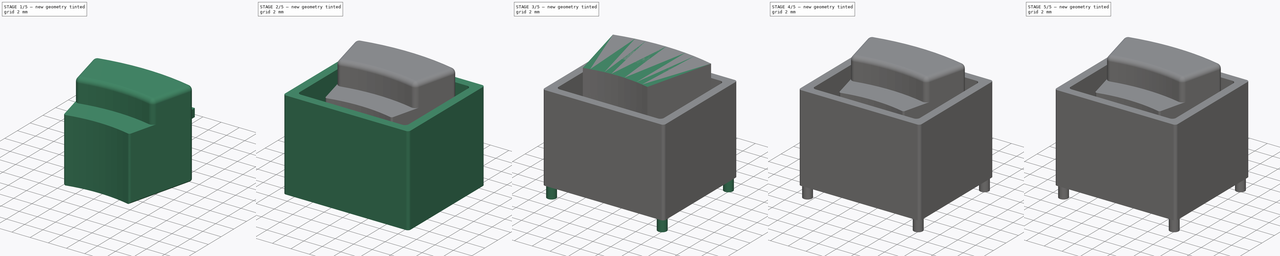
[diagram: build sequence overview — one tinted view per stage of 5, left to right]
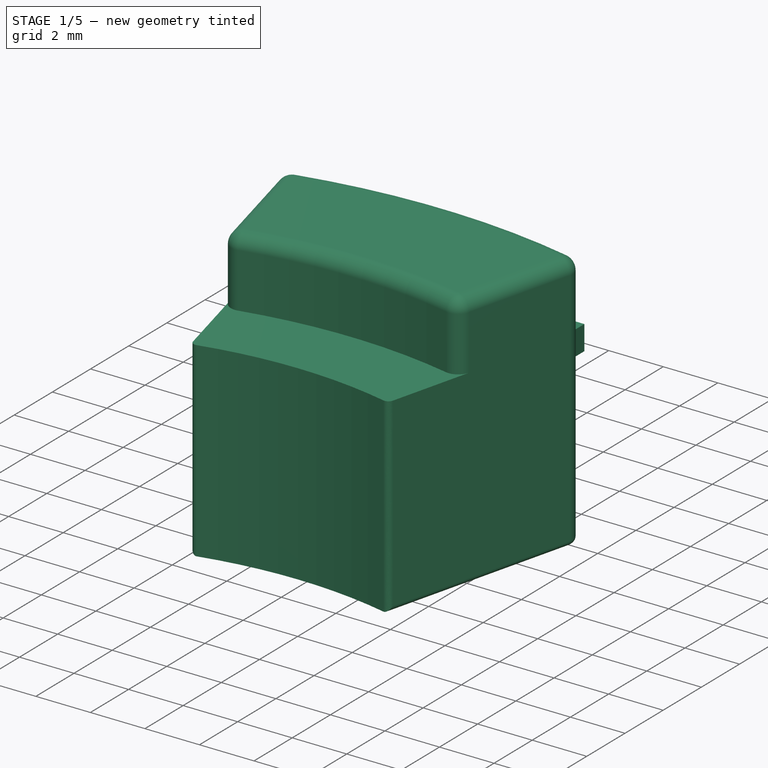
[diagram: stage 1 of 5 — iso view after this stage's code; geometry added in this stage tinted green]
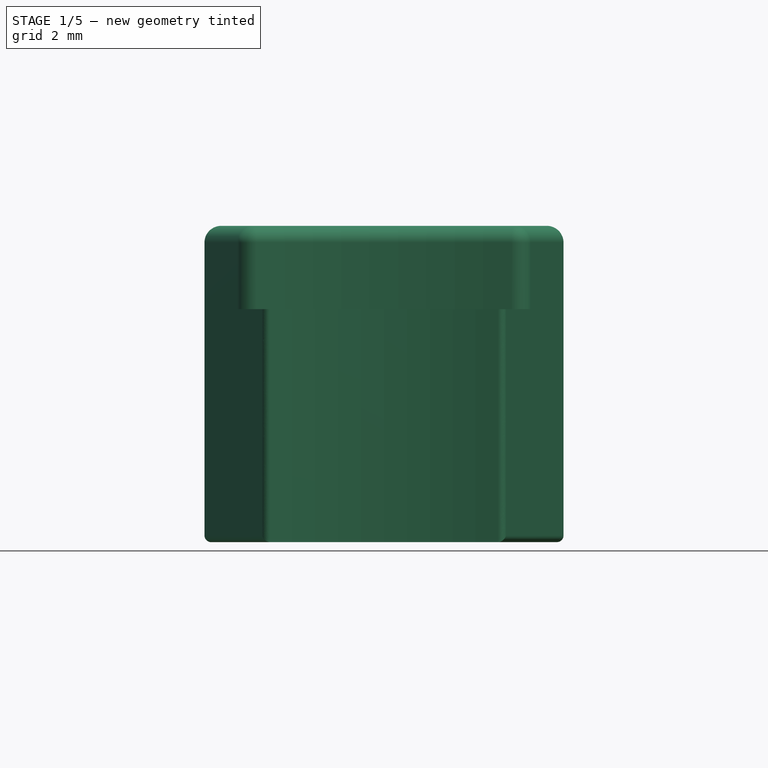
[diagram: stage 1 of 5 — front view after this stage's code; geometry added in this stage tinted green]
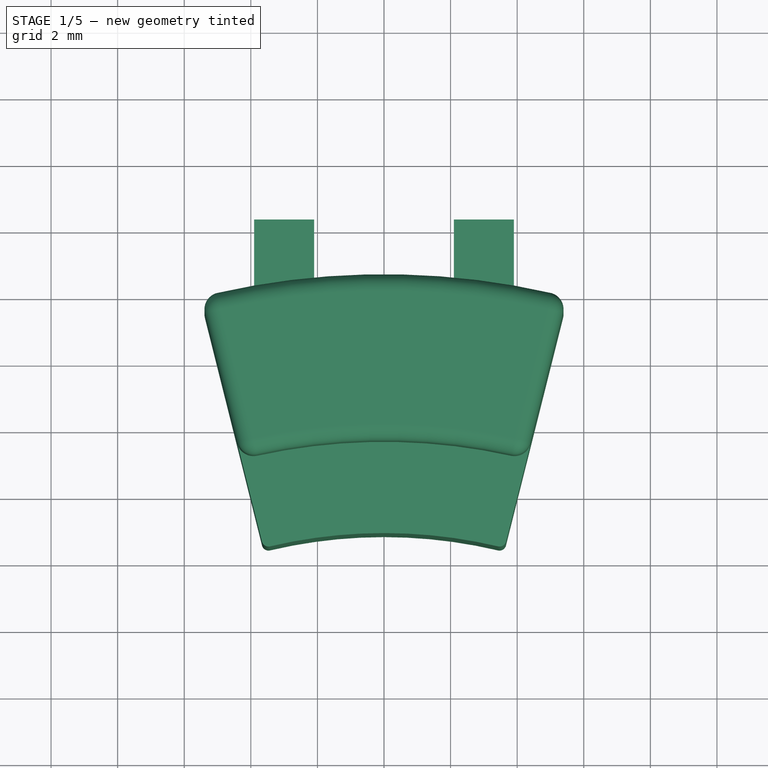
[diagram: stage 1 of 5 — top view after this stage's code; geometry added in this stage tinted green]
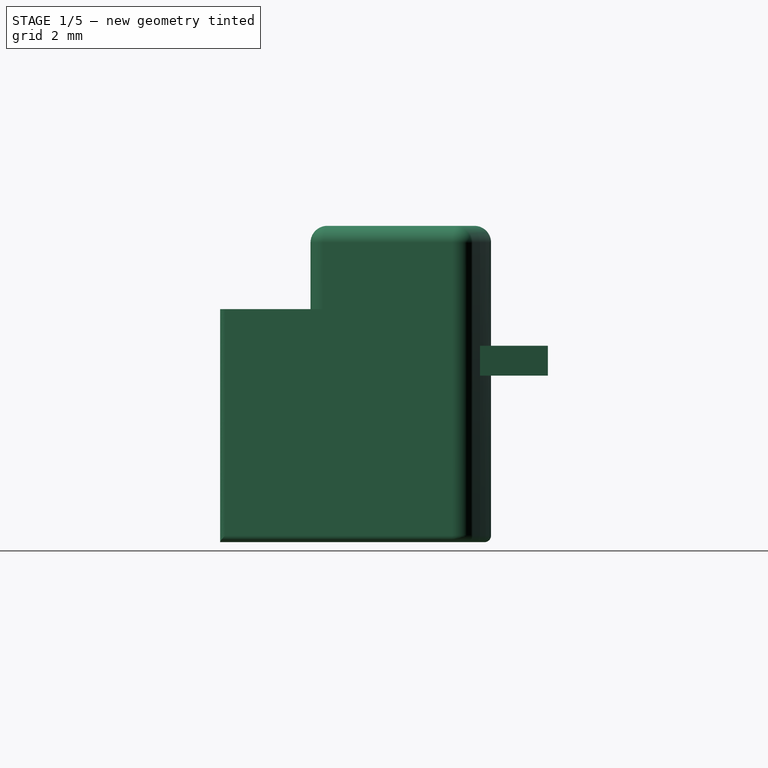
[diagram: stage 1 of 5 — right view after this stage's code; geometry added in this stage tinted green]
FCSTD DOCUMENT  (FreeCAD 0.18R16146 (Git))
Label: WS28-Switch_10x5circV1_0
License: All rights reserved
LicenseURL: http://en.wikipedia.org/wiki/All_rights_reserved
objects: Drawing::FeatureViewPython×75, Drawing::FeatureViewPart×17, PartDesign::Fillet×15, Sketcher::SketchObject×13, PartDesign::Pad×8, App::DocumentObjectGroup×5, PartDesign::Pocket×5, PartDesign::Plane×4, PartDesign::Body×3, Drawing::FeaturePage×3, Part::Feature×2, Part::Box×2, Part::Compound×2, Part::Cut×2, PartDesign::Mirrored×1
note: 70 computed .brp shape members not serialized (recipe doc carries the construction recipe); baked Part::Feature solids carry a one-line shape summary decoded from their .brp

FEATURE [Drawing::FeatureViewPart] Ortho027  label="Ortho_0_0"
  Direction = (1,0,0)
  HiddenWidth = 0.15
  LineWidth = 0.35
  Rotation = -90
  Scale = 5
  ShowHiddenLines = false
  ShowSmoothLines = false
  Source = -> Cut
  Tolerance = 0.05
  ViewResult = <blob: 2417 chars omitted>
  Visible = false
  X = 152.613
  Y = 80.25
FEATURE [Drawing::FeatureViewPython] dim010  # drawing view (typed FeaturePython)
  Rotation = 0
  ViewResult = <g> \n  <line x1="130.913000" y1="59.250000" x2="130.913000" y2="51.269821" style="stroke:rgb(57,57,57);stroke-width:0.30" />\n<line x1="161.613000" y1="66.750000" x2="161.613000" y2="51.269821" style="stroke:rgb(57,57,57);stroke-width:0.30" />\n<line x1="130.913000" y1="51.769821" x2="161.613000" y2="51.769821" style="stroke:rgb(57,57,57);stroke-width:0.30" /> \n  <polygon points="161.613000,51.769821 158.613000,50.869821 158.613000,51.769821 158.613000,52.669821" style="fill:rgb(57,57,57);stroke:rgb(57,57,57);stroke-width:0" /><polygon points="130.913000,51.769821 133.913000,52.669821 133.913000,51.769821 133.913000,50.869821" style="fill:rgb(57,57,57);stroke:rgb(57,57,57);stroke-width:0" /> \n  <text x="146.263000" y="49.769821" font-family="Verdana" font-size="2" fill="rgb(40,40,40)" text-anchor="middle" transform="rotate(0.000000 146.263000,49.769821)" >6.14</text> </g>
  Visible = false
  X = 0
  Y = 0
  arrowL1 = 3
  arrowL2 = 0
  arrowW = 1.8
  arrow_scheme = 0
  autoPlaceOffset = 2
  autoPlaceText = true
  click1_x = 150.161
  click1_y = 51.7698
  click2_x = 150.161
  click2_y = 51.7698
  comma_decimal_place = false
  dimension_line_overshoot = 0.5
  gap_datum_points = 1
  halfDimension_linear = false
  lineColor = rgb(57,57,57)
  strokeWidth = 0.3
  textFormat_linear = %(value)3.3f
  textRenderer_color = rgb(40,40,40)
  textRenderer_family = Verdana
  textRenderer_size = 2
  unit_custom_scale = 1
  unit_scheme = 0
FEATURE [Drawing::FeatureViewPython] dim011  # drawing view (typed FeaturePython)
  Rotation = 0
  ViewResult = <g> \n  <line x1="161.613000" y1="68.750000" x2="161.613000" y2="73.006352" style="stroke:rgb(57,57,57);stroke-width:0.30" />\n<line x1="165.613000" y1="67.750000" x2="165.613000" y2="73.006352" style="stroke:rgb(57,57,57);stroke-width:0.30" />\n<line x1="161.613000" y1="72.506352" x2="165.613000" y2="72.506352" style="stroke:rgb(57,57,57);stroke-width:0.30" /> \n  <polygon points="165.613000,72.506352 168.613000,73.406352 168.613000,72.506352 168.613000,71.606352" style="fill:rgb(57,57,57);stroke:rgb(57,57,57);stroke-width:0" /><polygon points="161.613000,72.506352 158.613000,71.606352 158.613000,72.506352 158.613000,73.406352" style="fill:rgb(57,57,57);stroke:rgb(57,57,57);stroke-width:0" /> \n  <text x="163.613000" y="70.506352" font-family="Verdana" font-size="2" fill="rgb(40,40,40)" text-anchor="middle" transform="rotate(0.000000 163.613000,70.506352)" >0.8</text> </g>
  Visible = false
  X = 0
  Y = 0
  arrowL1 = 3
  arrowL2 = 0
  arrowW = 1.8
  arrow_scheme = 0
  autoPlaceOffset = 2
  autoPlaceText = true
  click1_x = 164.414
  click1_y = 72.5064
  click2_x = 164.414
  click2_y = 72.5064
  comma_decimal_place = false
  dimension_line_overshoot = 0.5
  gap_datum_points = 1
  halfDimension_linear = false
  lineColor = rgb(57,57,57)
  strokeWidth = 0.3
  textFormat_linear = %(value)3.3f
  textRenderer_color = rgb(40,40,40)
  textRenderer_family = Verdana
  textRenderer_size = 2
  unit_custom_scale = 1
  unit_scheme = 0
FEATURE [Drawing::FeatureViewPython] dim031  # drawing view (typed FeaturePython)
  Rotation = 0
  ViewResult = <g> \n  <line x1="134.505950" y1="67.750000" x2="119.962558" y2="67.750000" style="stroke:rgb(57,57,57);stroke-width:0.30" />\n<line x1="134.505950" y1="67.130400" x2="119.962558" y2="67.130400" style="stroke:rgb(57,57,57);stroke-width:0.30" />\n<line x1="120.462558" y1="67.750000" x2="120.462558" y2="67.130400" style="stroke:rgb(57,57,57);stroke-width:0.30" /> \n  <polygon points="120.462558,67.130400 121.362558,64.130400 120.462558,64.130400 119.562558,64.130400" style="fill:rgb(57,57,57);stroke:rgb(57,57,57);stroke-width:0" /><polygon points="120.462558,67.750000 119.562558,70.750000 120.462558,70.750000 121.362558,70.750000" style="fill:rgb(57,57,57);stroke:rgb(57,57,57);stroke-width:0" /> \n  <text x="118.462558" y="67.440200" font-family="Verdana" font-size="2" fill="rgb(40,40,40)" text-anchor="middle" transform="rotate(-90.000000 118.462558,67.440200)" >0.124</text> </g>
  Visible = false
  X = 0
  Y = 0
  arrowL1 = 3
  arrowL2 = 0
  arrowW = 1.8
  arrow_scheme = 0
  autoPlaceOffset = 2
  autoPlaceText = true
  click1_x = 120.463
  click1_y = 66.5476
  click2_x = 120.463
  click2_y = 66.5476
  comma_decimal_place = false
  dimension_line_overshoot = 0.5
  gap_datum_points = 1
  halfDimension_linear = false
  lineColor = rgb(57,57,57)
  strokeWidth = 0.3
  textFormat_linear = %(value)3.3f
  textRenderer_color = rgb(40,40,40)
  textRenderer_family = Verdana
  textRenderer_size = 2
  unit_custom_scale = 1
  unit_scheme = 0
FEATURE [Drawing::FeatureViewPython] dim032  # drawing view (typed FeaturePython)
  Rotation = 0
  ViewResult = <g> \n  <line x1="124.912950" y1="68.749900" x2="124.912950" y2="73.912085" style="stroke:rgb(57,57,57);stroke-width:0.30" />\n<line x1="135.505950" y1="68.750000" x2="135.505950" y2="73.912085" style="stroke:rgb(57,57,57);stroke-width:0.30" />\n<line x1="124.912950" y1="73.412085" x2="135.505950" y2="73.412085" style="stroke:rgb(57,57,57);stroke-width:0.30" /> \n  <polygon points="135.505950,73.412085 132.505950,72.512085 132.505950,73.412085 132.505950,74.312085" style="fill:rgb(57,57,57);stroke:rgb(57,57,57);stroke-width:0" /><polygon points="124.912950,73.412085 127.912950,74.312085 127.912950,73.412085 127.912950,72.512085" style="fill:rgb(57,57,57);stroke:rgb(57,57,57);stroke-width:0" /> \n  <text x="130.209450" y="71.412085" font-family="Verdana" font-size="2" fill="rgb(40,40,40)" text-anchor="middle" transform="rotate(0.000000 130.209450,71.412085)" >2.119</text> </g>
  Visible = false
  X = 0
  Y = 0
  arrowL1 = 3
  arrowL2 = 0
  arrowW = 1.8
  arrow_scheme = 0
  autoPlaceOffset = 2
  autoPlaceText = true
  click1_x = 132.189
  click1_y = 73.4121
  click2_x = 132.189
  click2_y = 73.4121
  comma_decimal_place = false
  dimension_line_overshoot = 0.5
  gap_datum_points = 1
  halfDimension_linear = false
  lineColor = rgb(57,57,57)
  strokeWidth = 0.3
  textFormat_linear = %(value)3.3f
  textRenderer_color = rgb(40,40,40)
  textRenderer_family = Verdana
  textRenderer_size = 2
  unit_custom_scale = 1
  unit_scheme = 0
FEATURE [Drawing::FeatureViewPython] rad009  # drawing view (typed FeaturePython)
  Rotation = 0
  ViewResult = <g>  <circle cx ="130.550770" cy ="67.132023" r="0.500000" stroke="none" fill="rgb(57,57,57)" /> \n<line x1="140.007334" y1="62.352602" x2="130.550770" y2="67.132023" style="stroke:rgb(57,57,57);stroke-width:0.30" />\n<polygon points="134.973384,64.896800 138.056812,64.346828 137.650849,63.543589 137.244885,62.740349" style="fill:rgb(57,57,57);stroke:rgb(57,57,57);stroke-width:0" />\n<line x1="140.007334" y1="62.352602" x2="146.109118" y2="62.352602" style="stroke:rgb(57,57,57);stroke-width:0.30" />\n<text x="143.058226" y="60.352602" font-family="Verdana" font-size="2" fill="rgb(40,40,40)" text-anchor="middle" transform="rotate(0.000000 143.058226,60.352602)" >R0.991</text> </g>
  Visible = false
  X = 0
  Y = 0
  arrowL1 = 3
  arrowL2 = 0
  arrowW = 1.8
  arrow_scheme = 2
  autoPlaceOffset = 2
  autoPlaceText = true
  centerPointDia = 1
  click1_x = 140.007
  click1_y = 62.3526
  click2_x = 146.109
  click2_y = 62.1619
  click3_x = 146.109
  click3_y = 62.1619
  comma_decimal_place = false
  lineColor = rgb(57,57,57)
  strokeWidth = 0.3
  textFormat_radial = R%(value)3.3f
  textRenderer_color = rgb(40,40,40)
  textRenderer_family = Verdana
  textRenderer_size = 2
  unit_custom_scale = 1
  unit_scheme = 0
FEATURE [Drawing::FeatureViewPython] rad012  # drawing view (typed FeaturePython)
  Rotation = 0
  ViewResult = <g>  <circle cx ="133.413000" cy ="60.249998" r="0.500000" stroke="none" fill="rgb(57,57,57)" /> \n<line x1="129.519894" y1="62.304932" x2="133.413000" y2="60.249998" style="stroke:rgb(57,57,57);stroke-width:0.30" />\n<polygon points="131.202094,61.417001 134.275302,60.812523 133.855181,60.016597 133.435060,59.220671" style="fill:rgb(57,57,57);stroke:rgb(57,57,57);stroke-width:0" />\n<line x1="129.519894" y1="62.304932" x2="113.083137" y2="62.304932" style="stroke:rgb(57,57,57);stroke-width:0.30" />\n<text x="121.301516" y="60.304932" font-family="Verdana" font-size="2" fill="rgb(40,40,40)" text-anchor="middle" transform="rotate(0.000000 121.301516,60.304932)" >R0.5</text> </g>
  Visible = false
  X = 0
  Y = 0
  arrowL1 = 3
  arrowL2 = 0
  arrowW = 1.8
  arrow_scheme = 1
  autoPlaceOffset = 2
  autoPlaceText = true
  centerPointDia = 1
  click1_x = 129.52
  click1_y = 62.3049
  click2_x = 113.083
  click2_y = 59.9024
  click3_x = 113.083
  click3_y = 59.9024
  comma_decimal_place = false
  lineColor = rgb(57,57,57)
  strokeWidth = 0.3
  textFormat_radial = R%(value)3.3f
  textRenderer_color = rgb(40,40,40)
  textRenderer_family = Verdana
  textRenderer_size = 2
  unit_custom_scale = 1
  unit_scheme = 0
FEATURE [Drawing::FeatureViewPython] dim033  # drawing view (typed FeaturePython)
  Rotation = 0
  ViewResult = <g> \n  <line x1="59.765000" y1="158.892950" x2="59.765000" y2="173.122011" style="stroke:rgb(57,57,57);stroke-width:0.30" />\n<line x1="74.765000" y1="158.892950" x2="74.765000" y2="173.122011" style="stroke:rgb(57,57,57);stroke-width:0.30" />\n<line x1="59.765000" y1="172.622011" x2="74.765000" y2="172.622011" style="stroke:rgb(57,57,57);stroke-width:0.30" /> \n  <polygon points="74.765000,172.622011 71.765000,171.722011 71.765000,172.622011 71.765000,173.522011" style="fill:rgb(57,57,57);stroke:rgb(57,57,57);stroke-width:0" /><polygon points="59.765000,172.622011 62.765000,173.522011 62.765000,172.622011 62.765000,171.722011" style="fill:rgb(57,57,57);stroke:rgb(57,57,57);stroke-width:0" /> \n  <text x="67.265000" y="170.622011" font-family="Verdana" font-size="2" fill="rgb(40,40,40)" text-anchor="middle" transform="rotate(0.000000 67.265000,170.622011)" >3</text> </g>
  Visible = false
  X = 0
  Y = 0
  arrowL1 = 3
  arrowL2 = 0
  arrowW = 1.8
  arrow_scheme = 0
  autoPlaceOffset = 2
  autoPlaceText = true
  click1_x = 68.6698
  click1_y = 172.622
  click2_x = 68.6698
  click2_y = 172.622
  comma_decimal_place = false
  dimension_line_overshoot = 0.5
  gap_datum_points = 1
  halfDimension_linear = false
  lineColor = rgb(57,57,57)
  strokeWidth = 0.3
  textFormat_linear = %(value)3.3f
  textRenderer_color = rgb(40,40,40)
  textRenderer_family = Verdana
  textRenderer_size = 2
  unit_custom_scale = 1
  unit_scheme = 0
FEATURE [Drawing::FeaturePage] Page  label="Page1_Stößel"
  EditableTexts = Christopher Wüpping | 09.01.2020 | 5:1 | Stößel | WS28-Switch 10x5 circular | 2020LUM_SW_CIRC_ST_V1_0 | 1 / 3
  Group = -> [Ortho001,Ortho002,Ortho003,Ortho,centerLines001,rad001,dim001,dim002,dim003,dim004,dim005,dim006,dim007,rad002,rad003,rad004,rad005,rad006,rad007,dim008,dim009,rad008,text001,Ortho027,dim010,dim011,dim031,dim032,rad009,rad012,dim033]
  Template = /Applications/FreeCAD.app/Contents/Resources/data/Mod/Drawing/Templates/A4_Landscape.svg
FEATURE [PartDesign::Plane] DatumPlane002
  Length = 24
  MapMode = 2
  Placement = pos=(0,0,7.95) rot=(0,0,1;0rad)
  ResizeMode = 0
  Width = 24
FEATURE [PartDesign::Plane] DatumPlane003  label="UnterkanteFaceplate001"
  Length = 24
  MapMode = 2
  Placement = pos=(0,0,10) rot=(0,0,1;0rad)
  ResizeMode = 0
  Width = 24
FEATURE [Sketcher::SketchObject] Sketch019
  MapMode = 5
  Placement = pos=(0,0,10) rot=(0,0,1;0rad)
  Support = -> [DatumPlane003]
  sketch-geometry (11):
    g0: ArcOfCircle CenterX=0 CenterY=-20 CenterZ=0 NormalX=0 NormalY=0 NormalZ=1 AngleXU=0 Radius=22.6 StartAngle=1.32496 EndAngle=1.81663
    g1: LineSegment [constr] StartX=-5.5 StartY=1.92054 StartZ=0 EndX=0 EndY=-20 EndZ=0
    g2: LineSegment [constr] StartX=0 StartY=-20 StartZ=0 EndX=5.5 EndY=1.92054 EndZ=0
    g3: GeomPoint X=0 Y=2.6 Z=0
    g4: LineSegment [constr] StartX=0 StartY=0 StartZ=0 EndX=0 EndY=-20 EndZ=0
    g5: ArcOfCircle CenterX=0 CenterY=-20 CenterZ=0 NormalX=0 NormalY=0 NormalZ=1 AngleXU=0 Radius=14.86 StartAngle=1.32496 EndAngle=1.81663
    g6: LineSegment [constr] StartX=0 StartY=0 StartZ=0 EndX=5.5 EndY=1.92054 EndZ=0
    g7: LineSegment [constr] StartX=-5.5 StartY=1.92054 StartZ=0 EndX=0 EndY=0 EndZ=0
    g8: LineSegment StartX=-5.5 StartY=1.92054 StartZ=0 EndX=-3.61637 EndY=-5.58676 EndZ=0
    g9: LineSegment StartX=3.61637 StartY=-5.58676 StartZ=0 EndX=5.5 EndY=1.92054 EndZ=0
    g10: GeomPoint X=0 Y=-5.14 Z=0
  constraints (28):
    c: DistanceX(g0,g0) = 11
    c: Coincident(g1,g0)
    c: Coincident(g2,g0)
    c: Coincident(g2,g0)
    c: Coincident(g1,g0)
    c: PointOnObject(g0,g-2)
    c: PointOnObject(g3,g0)
    c: PointOnObject(g3,g-2)
    c: Equal(g1,g2)
    c: Coincident(g4,g-1)
    c: Coincident(g4,g0)
    c: DistanceY(g4,g4) = 20
    c: PointOnObject(g5,g1)
    c: PointOnObject(g5,g2)
    c: Coincident(g6,g-1)
    c: Coincident(g6,g0)
    c: Coincident(g7,g0)
    c: Coincident(g7,g-1)
    c: Equal(g7,g6)
    c: Coincident(g8,g5)
    c: Coincident(g9,g5)
    c: Coincident(g9,g0)
    c: Coincident(g8,g0)
    c: DistanceY(g-1,g3) = 2.6
    c: PointOnObject(g10,g4)
    c: PointOnObject(g10,g5)
    c: DistanceY(g10,g3) = 7.74
    c: Coincident(g5,g0)
FEATURE [PartDesign::Pad] Pad011  label="Körper001"
  Length = 2
  Length2 = 7.5
  Placement = pos=(0,0,10) rot=(0,0,1;0rad)
  Profile = -> Sketch019
  Reversed = true
  Type = 4
FEATURE [Sketcher::SketchObject] Sketch017
  ExternalGeometry = -> [Pad011]
  MapMode = 5
  Placement = pos=(0,0,2.5) rot=(1,0,0;3.14159rad)
  Support = -> [Pad011]
  sketch-geometry (13):
    g0: ArcOfCircle CenterX=2.2e-15 CenterY=18.2 CenterZ=0 NormalX=0 NormalY=0 NormalZ=1 AngleXU=0 Radius=20 StartAngle=4.48466 EndAngle=4.94012
    g1: LineSegment StartX=-4.51539 StartY=-1.28361 StartZ=0 EndX=-3.02079 EndY=4.6732 EndZ=0
    g2: LineSegment StartX=3.02079 StartY=4.6732 StartZ=0 EndX=4.51539 EndY=-1.28361 EndZ=0
    g3: LineSegment [constr] StartX=-3.61637 StartY=5.58676 StartZ=0 EndX=3.61637 EndY=5.58676 EndZ=0
    g4: GeomPoint X=0 Y=-1.8 Z=0
    g5: GeomPoint X=0 Y=-2.6 Z=0
    g6: LineSegment [constr] StartX=4.51539 StartY=-1.28361 StartZ=0 EndX=5.29134 EndY=-1.08892 EndZ=0
    g7: LineSegment [constr] StartX=-4.51539 StartY=-1.28361 StartZ=0 EndX=-5.29134 EndY=-1.08892 EndZ=0
    g8: ArcOfCircle CenterX=2.2e-15 CenterY=18.2 CenterZ=0 NormalX=0 NormalY=0 NormalZ=1 AngleXU=0 Radius=13.86 StartAngle=4.49268 EndAngle=4.9321
    g9: GeomPoint X=0 Y=5.14 Z=0
    g10: GeomPoint X=0 Y=4.34 Z=0
    g11: LineSegment [constr] StartX=-3.61637 StartY=5.58676 StartZ=0 EndX=-3.02079 EndY=4.6732 EndZ=0
    g12: LineSegment [constr] StartX=3.61637 StartY=5.58676 StartZ=0 EndX=3.02079 EndY=4.6732 EndZ=0
  constraints (33):
    c: Coincident(g1,g0)
    c: Coincident(g2,g0)
    c: Parallel(g2,g-5)
    c: Parallel(g1,g-4)
    c: Coincident(g3,g-4)
    c: Coincident(g3,g-5)
    c: PointOnObject(g4,g0)
    c: PointOnObject(g4,g-2)
    c: PointOnObject(g5,g-2)
    c: DistanceY(g5,g4) = 0.8
    c: PointOnObject(g6,g-5)
    c: Perpendicular(g2,g6)
    c: PointOnObject(g7,g-4)
    c: Perpendicular(g1,g7)
    c: Distance(g7,g7) = 0.8
    c: DistanceY(g4,g0) = 20
    c: Coincident(g8,g1)
    c: Coincident(g8,g2)
    c: Coincident(g8,g0)
    c: PointOnObject(g9,g-3)
    c: PointOnObject(g10,g8)
    c: PointOnObject(g9,g-2)
    c: PointOnObject(g10,g-2)
    c: DistanceY(g10,g9) = 0.8
    c: Coincident(g7,g0)
    c: Coincident(g6,g0)
    c: Coincident(g11,g3)
    c: Coincident(g11,g1)
    c: Coincident(g12,g3)
    c: Coincident(g12,g2)
    c: Equal(g12,g11)
    c: PointOnObject(g5,g-6)
    c: Equal(g6,g7)
FEATURE [PartDesign::Pocket] Pocket004  label="Aushöhlung001"
  BaseFeature = -> Pad011
  Length = 6.4
  Length2 = 100
  Placement = pos=(0,0,10) rot=(0,0,1;0rad)
  Profile = -> Sketch017
  Type = 0
FEATURE [Sketcher::SketchObject] Sketch018
  ExternalGeometry = -> [Pocket004]
  MapMode = 5
  Placement = pos=(0,0,12) rot=(0,0,1;0rad)
  Support = -> [Pocket004]
  sketch-geometry (7):
    g0: ArcOfCircle CenterX=-6e-15 CenterY=-20 CenterZ=0 NormalX=0 NormalY=0 NormalZ=1 AngleXU=0 Radius=17.6 StartAngle=1.32496 EndAngle=1.81663
    g1: GeomPoint X=0 Y=2.6 Z=0
    g2: GeomPoint X=0 Y=-2.4 Z=0
    g3: GeomPoint X=0 Y=-5.14 Z=0
    g4: ArcOfCircle CenterX=1.7e-15 CenterY=-20 CenterZ=0 NormalX=0 NormalY=0 NormalZ=1 AngleXU=0 Radius=14.86 StartAngle=1.32496 EndAngle=1.81663
    g5: LineSegment StartX=-4.28319 StartY=-2.92914 StartZ=0 EndX=-3.61637 EndY=-5.58676 EndZ=0
    g6: LineSegment StartX=4.28319 StartY=-2.92914 StartZ=0 EndX=3.61637 EndY=-5.58676 EndZ=0
  constraints (18):
    c: PointOnObject(g0,g-3)
    c: PointOnObject(g0,g-5)
    c: DistanceY(g0,g-1) = 20
    c: PointOnObject(g1,g-2)
    c: PointOnObject(g3,g-2)
    c: Coincident(g4,g-3)
    c: Coincident(g4,g-5)
    c: PointOnObject(g1,g-4)
    c: PointOnObject(g2,g0)
    c: PointOnObject(g2,g-2)
    c: PointOnObject(g3,g-6)
    c: PointOnObject(g3,g4)
    c: Coincident(g5,g0)
    c: Coincident(g5,g4)
    c: Coincident(g6,g0)
    c: Coincident(g6,g4)
    c: DistanceY(g2,g1) = 5
    c: Equal(g6,g5)
FEATURE [PartDesign::Pocket] Pocket005
  BaseFeature = -> Pocket004
  Length = 2.5
  Length2 = 100
  Placement = pos=(0,0,10) rot=(0,0,1;0rad)
  Profile = -> Sketch018
  Type = 0
FEATURE [Sketcher::SketchObject] Sketch020
  ExternalGeometry = -> [Pocket005]
  MapMode = 5
  Placement = pos=(0,0,7.95) rot=(0,0,1;0rad)
  Support = -> [DatumPlane002]
  sketch-geometry (13):
    g0: LineSegment StartX=-3.9 StartY=2.26095 StartZ=0 EndX=-3.9 EndY=4.3 EndZ=0
    g1: LineSegment StartX=-2.1 StartY=4.3 StartZ=0 EndX=-2.1 EndY=2.50222 EndZ=0
    g2: ArcOfCircle [constr] CenterX=-2e-16 CenterY=-20 CenterZ=0 NormalX=0 NormalY=0 NormalZ=1 AngleXU=0 Radius=22.6 StartAngle=1.32496 EndAngle=1.81663
    g3: LineSegment StartX=-3.9 StartY=4.3 StartZ=0 EndX=-3 EndY=4.3 EndZ=0
    g4: LineSegment StartX=-3 StartY=4.3 StartZ=0 EndX=-2.1 EndY=4.3 EndZ=0
    g5: LineSegment StartX=-3.9 StartY=2.26095 StartZ=0 EndX=-2.1 EndY=2.50222 EndZ=0
    g6: LineSegment StartX=2.1 StartY=2.50222 StartZ=0 EndX=2.1 EndY=4.3 EndZ=0
    g7: LineSegment StartX=3.9 StartY=4.3 StartZ=0 EndX=3.9 EndY=2.26095 EndZ=0
    g8: LineSegment StartX=3.9 StartY=2.26095 StartZ=0 EndX=2.1 EndY=2.50222 EndZ=0
    g9: LineSegment StartX=2.1 StartY=4.3 StartZ=0 EndX=3 EndY=4.3 EndZ=0
    g10: LineSegment StartX=3 StartY=4.3 StartZ=0 EndX=3.9 EndY=4.3 EndZ=0
    g11: LineSegment [constr] StartX=-3.9 StartY=2.26095 StartZ=0 EndX=0 EndY=0 EndZ=0
    g12: LineSegment [constr] StartX=0 StartY=0 StartZ=0 EndX=3.9 EndY=2.26095 EndZ=0
  constraints (37):
    c: PointOnObject(g0,g-3)
    c: Vertical(g0)
    c: PointOnObject(g1,g-3)
    c: Vertical(g1)
    c: Coincident(g2,g-3)
    c: Coincident(g2,g-3)
    c: Coincident(g2,g-3)
    c: Horizontal(g3)
    c: Coincident(g3,g4)
    c: Coincident(g4,g1)
    c: Horizontal(g4)
    c: Equal(g4,g3)
    c: Coincident(g3,g0)
    c: DistanceX(g0,g1) = 1.8
    c: DistanceY(g-1,g1) = 4.3
    c: Coincident(g5,g0)
    c: Coincident(g5,g1)
    c: PointOnObject(g6,g2)
    c: Vertical(g6)
    c: PointOnObject(g7,g2)
    c: Vertical(g7)
    c: Coincident(g7,g8)
    c: Coincident(g8,g6)
    c: Equal(g6,g1)
    c: Coincident(g6,g9)
    c: Horizontal(g9)
    c: Coincident(g9,g10)
    c: Coincident(g10,g7)
    c: Horizontal(g10)
    c: Equal(g9,g10)
    c: DistanceX(g3,g9) = 6
    c: Equal(g9,g3)
    c: Coincident(g11,g0)
    c: Coincident(g11,g-1)
    c: Coincident(g12,g-1)
    c: Coincident(g12,g7)
    c: Equal(g11,g12)
FEATURE [PartDesign::Pad] Pad013  label="Laschen003"
  BaseFeature = -> Pocket005
  Length = 0.45
  Length2 = 0.45
  Placement = pos=(0,0,10) rot=(0,0,1;0rad)
  Profile = -> Sketch020
  Type = 4
FEATURE [PartDesign::Fillet] Fillet023  label="FilletObenAußen001"
  Base = -> Pad013 [Edge24,Edge3,Edge14,Edge25,Edge4,Edge2,Edge15,Edge26]
  BaseFeature = -> Pad013
  Placement = pos=(0,0,10) rot=(0,0,1;0rad)
  Radius = 0.5
FEATURE [PartDesign::Fillet] Fillet025
  Base = -> Fillet023 [Edge19,Edge3,Edge11,Edge1]
  BaseFeature = -> Fillet023
  Placement = pos=(0,0,10) rot=(0,0,1;0rad)
  Radius = 0.2
FEATURE [PartDesign::Fillet] Fillet024
  Base = -> Fillet025 [Edge97,Edge95,Edge100,Edge99,Edge98,Edge96,Edge94,Edge93]
  BaseFeature = -> Fillet025
  Placement = pos=(0,0,10) rot=(0,0,1;0rad)
  Radius = 0.2
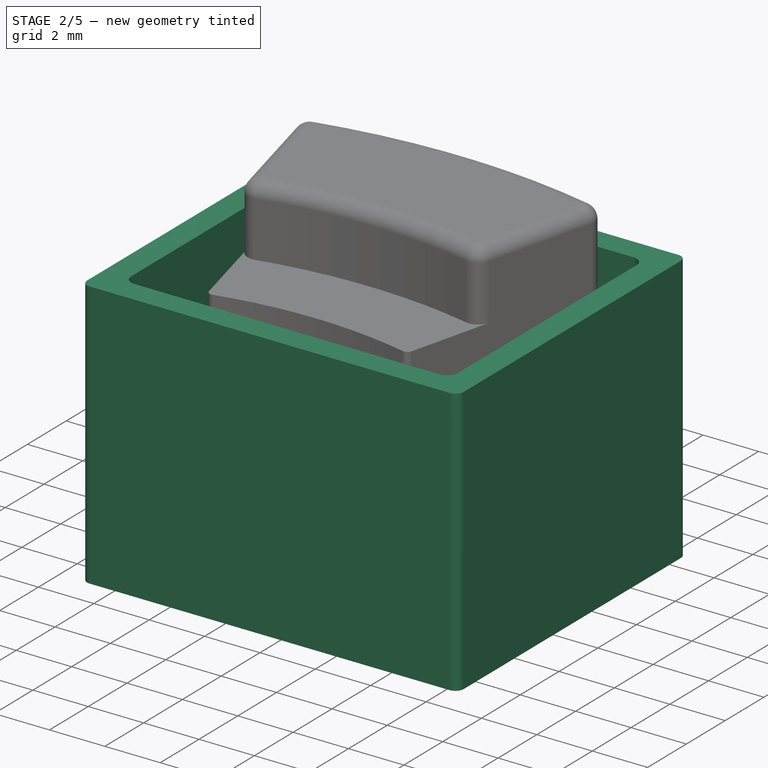
[diagram: stage 2 of 5 — iso view after this stage's code; geometry added in this stage tinted green]
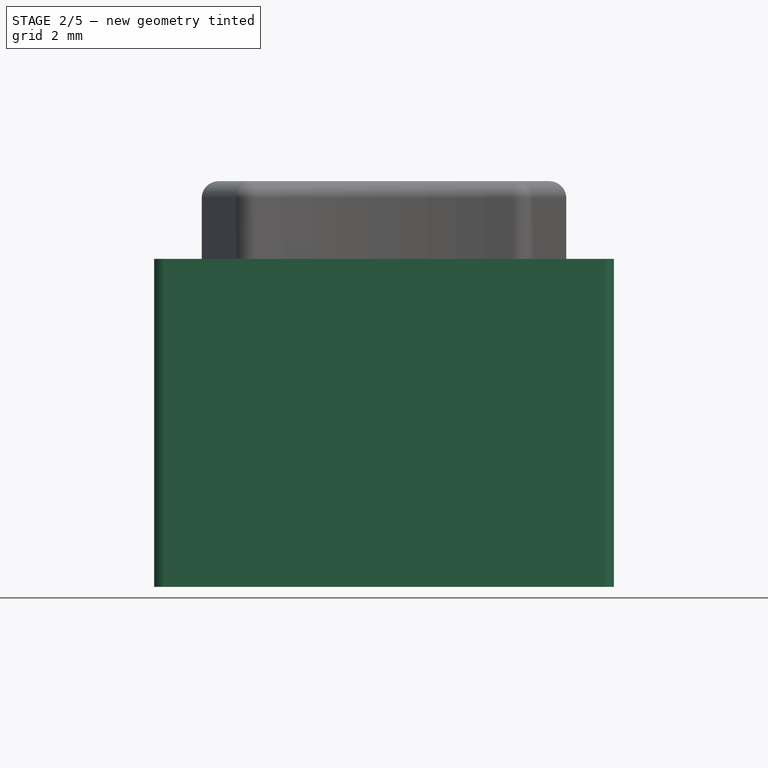
[diagram: stage 2 of 5 — front view after this stage's code; geometry added in this stage tinted green]
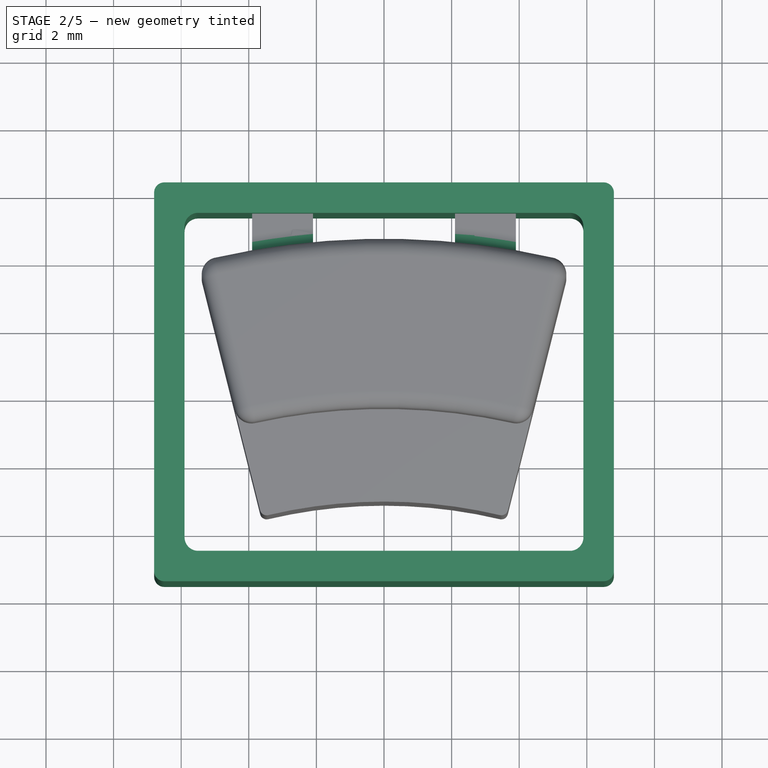
[diagram: stage 2 of 5 — top view after this stage's code; geometry added in this stage tinted green]
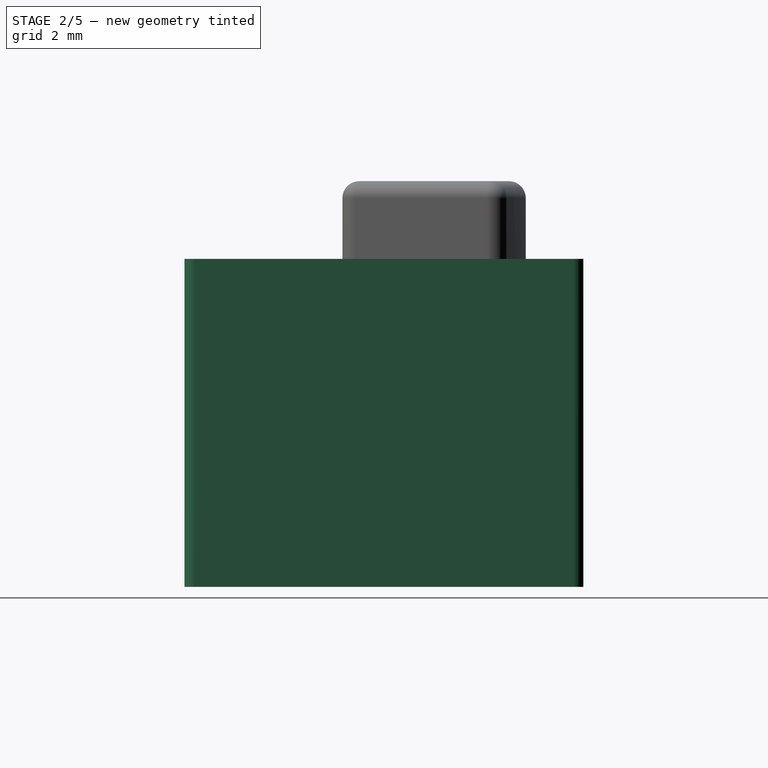
[diagram: stage 2 of 5 — right view after this stage's code; geometry added in this stage tinted green]
FEATURE [Sketcher::SketchObject] Sketch005
  MapMode = 5
  Support = -> [XY_Plane001]
  sketch-geometry (9):
    g0: LineSegment StartX=-5.9 StartY=3.4 StartZ=0 EndX=5.9 EndY=3.4 EndZ=0
    g1: LineSegment StartX=5.9 StartY=3.4 StartZ=0 EndX=5.9 EndY=-6.6 EndZ=0
    g2: LineSegment StartX=5.9 StartY=-6.6 StartZ=0 EndX=-5.9 EndY=-6.6 EndZ=0
    g3: LineSegment StartX=-5.9 StartY=-6.6 StartZ=0 EndX=-5.9 EndY=3.4 EndZ=0
    g4: GeomPoint X=0 Y=-1.6 Z=0
    g5: LineSegment StartX=-6.8 StartY=4.3 StartZ=0 EndX=6.8 EndY=4.3 EndZ=0
    g6: LineSegment StartX=6.8 StartY=4.3 StartZ=0 EndX=6.8 EndY=-7.5 EndZ=0
    g7: LineSegment StartX=6.8 StartY=-7.5 StartZ=0 EndX=-6.8 EndY=-7.5 EndZ=0
    g8: LineSegment StartX=-6.8 StartY=-7.5 StartZ=0 EndX=-6.8 EndY=4.3 EndZ=0
  constraints (24):
    c: Coincident(g0,g1)
    c: Coincident(g1,g2)
    c: Coincident(g2,g3)
    c: Coincident(g3,g0)
    c: Horizontal(g0)
    c: Horizontal(g2)
    c: Vertical(g1)
    c: Vertical(g3)
    c: DistanceX(g0,g0) = 11.8
    c: DistanceY(g1,g1) = 10
    c: PointOnObject(g4,g-2)
    c: Symmetric(g0,g1,g4)
    c: DistanceY(g4,g-1) = 1.6
    c: Coincident(g5,g6)
    c: Coincident(g6,g7)
    c: Coincident(g7,g8)
    c: Coincident(g8,g5)
    c: Horizontal(g5)
    c: Horizontal(g7)
    c: Vertical(g6)
    c: Vertical(g8)
    c: Symmetric(g5,g6,g4)
    c: DistanceY(g0,g5) = 0.9
    c: DistanceX(g0,g5) = 0.9
FEATURE [PartDesign::Pad] Pad003  label="frame001"
  Length = 9.7
  Length2 = 100
  Profile = -> Sketch005
  Type = 0
FEATURE [PartDesign::Fillet] Fillet005
  Base = -> Pad003 [Edge1,Edge8,Edge5,Edge2]
  BaseFeature = -> Pad003
  Radius = 0.3
FEATURE [PartDesign::Fillet] Fillet006
  Base = -> Fillet005 [Edge33,Edge34,Edge35,Edge36]
  BaseFeature = -> Fillet005
  Radius = 0.4
FEATURE [PartDesign::Fillet] Fillet020
  Base = -> Fillet024 [Edge91,Edge89,Edge85,Edge87]
  BaseFeature = -> Fillet024
  Placement = pos=(0,0,10) rot=(0,0,1;0rad)
  Radius = 0.5
FEATURE [Sketcher::SketchObject] Sketch021
  ExternalGeometry = -> [Fillet020]
  MapMode = 5
  Placement = pos=(0,0,2.5) rot=(1,0,0;3.14159rad)
  Support = -> [Fillet020]
  sketch-geometry (4):
    g0: LineSegment StartX=-1.5 StartY=4.42141 StartZ=0 EndX=-1.5 EndY=3.42141 EndZ=0
    g1: LineSegment StartX=-1.5 StartY=3.42141 StartZ=0 EndX=1.5 EndY=3.42141 EndZ=0
    g2: LineSegment StartX=1.5 StartY=3.42141 StartZ=0 EndX=1.5 EndY=4.42141 EndZ=0
    g3: LineSegment StartX=-1.5 StartY=4.42141 StartZ=0 EndX=1.5 EndY=4.42141 EndZ=0
  constraints (12):
    c: PointOnObject(g0,g-3)
    c: Vertical(g0)
    c: Coincident(g0,g1)
    c: Horizontal(g1)
    c: Coincident(g1,g2)
    c: PointOnObject(g2,g-3)
    c: Vertical(g2)
    c: Equal(g0,g2)
    c: DistanceY(g2,g2) = 1
    c: DistanceX(g1,g1) = 3
    c: Coincident(g3,g2)
    c: Coincident(g3,g0)
FEATURE [PartDesign::Pad] Pad012
  BaseFeature = -> Fillet020
  Length = 1
  Length2 = 100
  Placement = pos=(0,0,10) rot=(0,0,1;0rad)
  Profile = -> Sketch021
  Reversed = true
  Type = 0
FEATURE [PartDesign::Fillet] Fillet022
  Base = -> Pad012 [Edge124]
  BaseFeature = -> Pad012
  Placement = pos=(0,0,10) rot=(0,0,1;0rad)
  Radius = 0.5
FEATURE [PartDesign::Fillet] Fillet021
  Base = -> Fillet022 [Edge41]
  BaseFeature = -> Fillet022
  Placement = pos=(0,0,10) rot=(0,0,1;0rad)
  Radius = 0.99
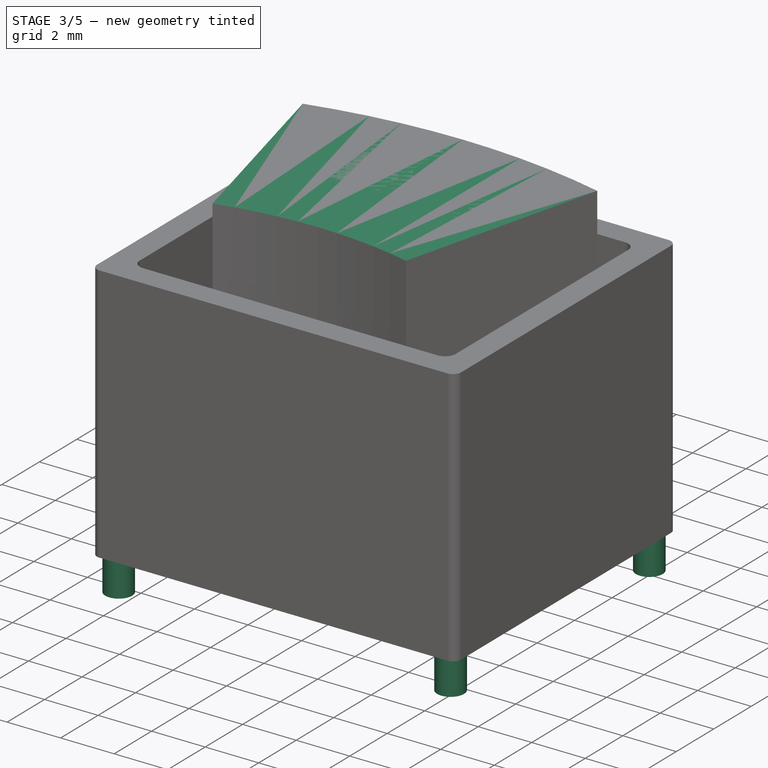
[diagram: stage 3 of 5 — iso view after this stage's code; geometry added in this stage tinted green]
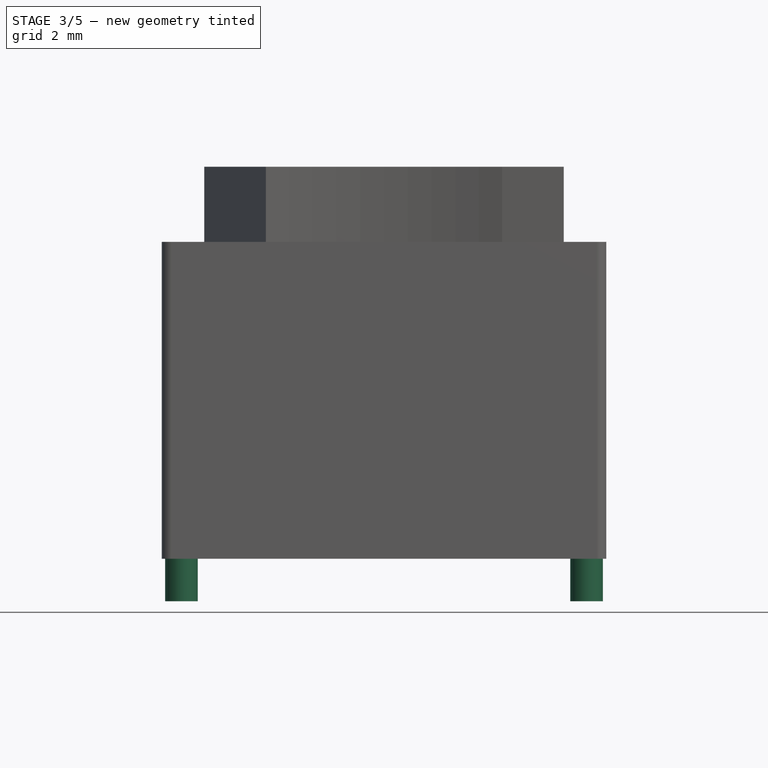
[diagram: stage 3 of 5 — front view after this stage's code; geometry added in this stage tinted green]
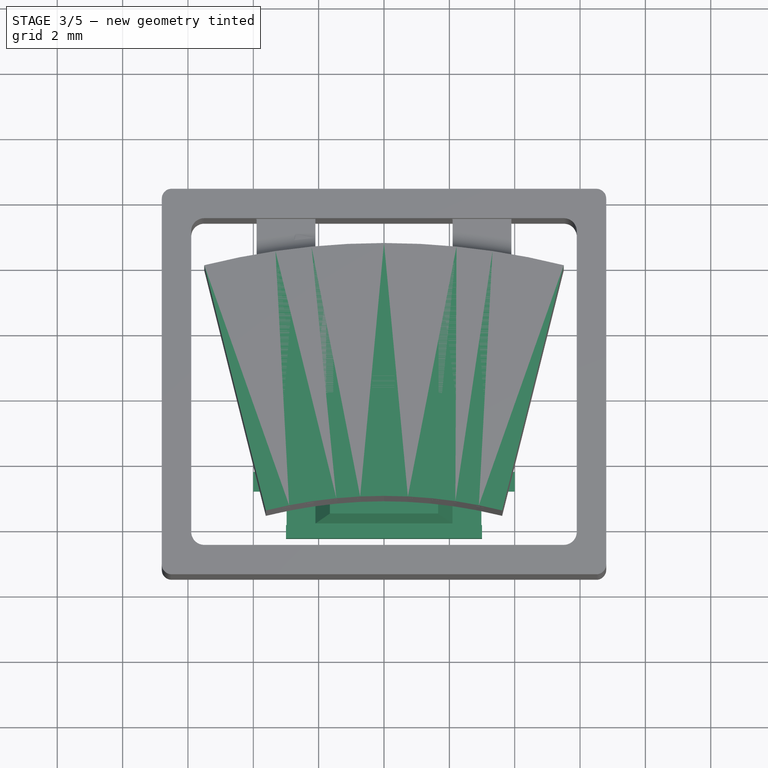
[diagram: stage 3 of 5 — top view after this stage's code; geometry added in this stage tinted green]
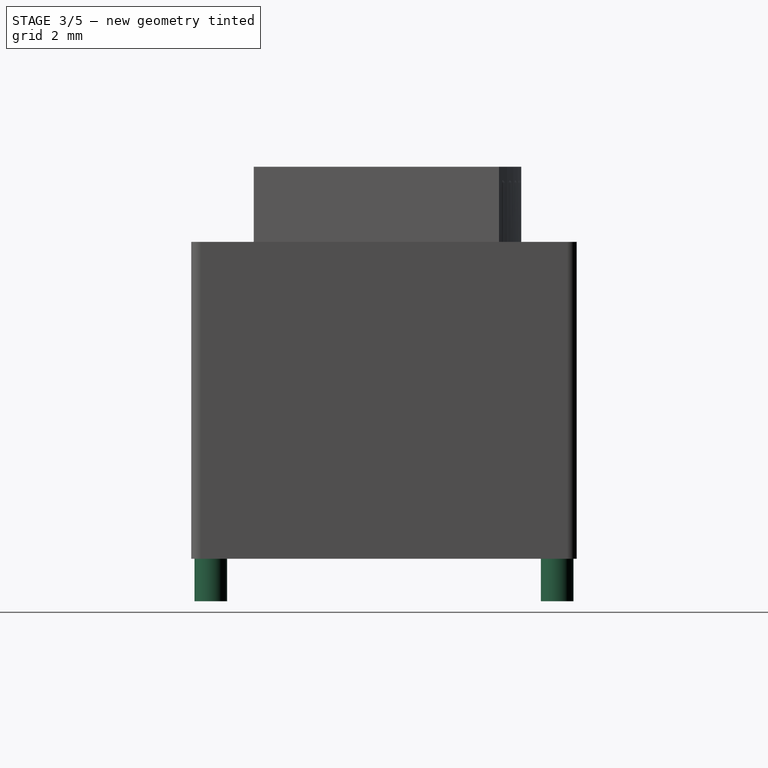
[diagram: stage 3 of 5 — right view after this stage's code; geometry added in this stage tinted green]
FEATURE [Drawing::FeatureViewPython] text001  # drawing view (typed FeaturePython)
  Rotation = 0
  ViewResult = <g> <text x="168.857474" y="21.905835" font-family="inherit" font-size="5" fill="rgb(0,0,0)" text-anchor="inherit" transform="rotate(0.000000 168.857474,21.905835)" >Schnitt A - A</text> </g>
  Visible = false
  X = 0
  Y = 0
  click1_x = 168.857
  click1_y = 21.9058
  rotation = 0
  text = Schnitt A - A
  textRenderer_addText_color = rgb(0,0,0)
  textRenderer_addText_family = inherit
  textRenderer_addText_size = 5
FEATURE [Drawing::FeatureViewPython] dim015  # drawing view (typed FeaturePython)
  Rotation = 0
  ViewResult = <g> \n  <line x1="31.250000" y1="174.833000" x2="31.250000" y2="192.161867" style="stroke:rgb(57,57,57);stroke-width:0.30" />\n<line x1="99.250000" y1="174.833000" x2="99.250000" y2="192.161867" style="stroke:rgb(57,57,57);stroke-width:0.30" />\n<line x1="31.250000" y1="191.661867" x2="99.250000" y2="191.661867" style="stroke:rgb(57,57,57);stroke-width:0.30" /> \n  <polygon points="99.250000,191.661867 96.250000,190.761867 96.250000,191.661867 96.250000,192.561867" style="fill:rgb(57,57,57);stroke:rgb(57,57,57);stroke-width:0" /><polygon points="31.250000,191.661867 34.250000,192.561867 34.250000,191.661867 34.250000,190.761867" style="fill:rgb(57,57,57);stroke:rgb(57,57,57);stroke-width:0" /> \n  <text x="65.250000" y="189.661867" font-family="Verdana" font-size="2" fill="rgb(40,40,40)" text-anchor="middle" transform="rotate(0.000000 65.250000,189.661867)" >13.6</text> </g>
  Visible = false
  X = 0
  Y = 0
  arrowL1 = 3
  arrowL2 = 0
  arrowW = 1.8
  arrow_scheme = 0
  autoPlaceOffset = 2
  autoPlaceText = true
  click1_x = 99.5306
  click1_y = 191.662
  click2_x = 99.5306
  click2_y = 191.662
  comma_decimal_place = false
  dimension_line_overshoot = 0.5
  gap_datum_points = 1
  halfDimension_linear = false
  lineColor = rgb(57,57,57)
  strokeWidth = 0.3
  textFormat_linear = %(value)3.3f
  textRenderer_color = rgb(40,40,40)
  textRenderer_family = Verdana
  textRenderer_size = 2
  unit_custom_scale = 1
  unit_scheme = 0
FEATURE [Drawing::FeatureViewPython] centerLines002  # drawing view (typed FeaturePython)
  Rotation = 0
  ViewResult = <g transform="scale(5.000000,5.000000)" stroke="rgb(40,40,40)"  stroke-width="0.060000" > <path d="M 13.050000,7.333340 L 13.050000,7.733340 M 13.050000,8.133340 L 13.050000,9.333340 M 13.050000,9.733340 L 13.050000,10.133340 M 13.050000,10.533340 L 13.050000,11.733340 M 13.050000,12.133340 L 13.050000,12.533340 M 13.050000,12.933340 L 13.050000,14.133340 M 13.050000,14.533340 L 13.050000,14.933340 M 13.050000,15.333340 L 13.050000,16.533340 M 13.050000,16.933340 L 13.050000,17.333340 M 13.050000,17.733340 L 13.050000,18.933340 "/>\n<path d="M 13.050000,7.333340 L 13.050000,6.933340 M 13.050000,6.533340 L 13.050000,5.903224 "/> </g> 
  Visible = false
  X = 0
  Y = 0
  centerLine_color = rgb(40,40,40)
  centerLine_len_dash = 6
  centerLine_len_dot = 2
  centerLine_len_gap = 2
  centerLine_width = 0.3
  click1_x = 67.6411
  click1_y = 96.4193
  click2_x = 69.8548
  click2_y = 29.5161
FEATURE [Drawing::FeatureViewPython] centerLines003  # drawing view (typed FeaturePython)
  Rotation = 0
  ViewResult = <g transform="scale(5.000000,5.000000)" stroke="rgb(40,40,40)"  stroke-width="0.060000" > <path d="M 13.050000,35.066600 L 13.050000,35.466600 M 13.050000,35.866600 L 13.050000,36.845959 "/>\n<path d="M 13.050000,35.066600 L 13.050000,34.666600 M 13.050000,34.266600 L 13.050000,33.066600 M 13.050000,32.666600 L 13.050000,32.266600 M 13.050000,31.866600 L 13.050000,30.666600 M 13.050000,30.266600 L 13.050000,29.866600 M 13.050000,29.466600 L 13.050000,28.266600 M 13.050000,27.866600 L 13.050000,27.466600 M 13.050000,27.066600 L 13.050000,25.866600 M 13.050000,25.466600 L 13.050000,25.066600 M 13.050000,24.666600 L 13.050000,23.466600 M 13.050000,23.066600 L 13.050000,22.666600 "/> </g> 
  Visible = false
  X = 0
  Y = 0
  centerLine_color = rgb(40,40,40)
  centerLine_len_dash = 6
  centerLine_len_dot = 2
  centerLine_len_gap = 2
  centerLine_width = 0.3
  click1_x = 69.1169
  click1_y = 184.23
  click2_x = 72.3145
  click2_y = 111.915
FEATURE [Drawing::FeatureViewPython] centerLines004  # drawing view (typed FeaturePython)
  Rotation = 0
  ViewResult = <g transform="scale(5.000000,5.000000)" stroke="rgb(40,40,40)"  stroke-width="0.060000" > <path d="M 46.350000,7.333340 L 46.350000,7.733340 M 46.350000,8.133340 L 46.350000,9.333340 M 46.350000,9.733340 L 46.350000,10.133340 M 46.350000,10.533340 L 46.350000,11.733340 M 46.350000,12.133340 L 46.350000,12.533340 M 46.350000,12.933340 L 46.350000,14.133340 M 46.350000,14.533340 L 46.350000,14.933340 M 46.350000,15.333340 L 46.350000,16.533340 M 46.350000,16.933340 L 46.350000,17.333340 M 46.350000,17.733340 L 46.350000,18.890318 "/>\n<path d="M 46.350000,7.333340 L 46.350000,6.933340 M 46.350000,6.533340 L 46.350000,6.149192 "/> </g> 
  Visible = false
  X = 0
  Y = 0
  centerLine_color = rgb(40,40,40)
  centerLine_len_dash = 6
  centerLine_len_dot = 2
  centerLine_len_gap = 2
  centerLine_width = 0.3
  click1_x = 236.621
  click1_y = 94.4516
  click2_x = 237.605
  click2_y = 30.746
FEATURE [Drawing::FeatureViewPython] centerLines005  # drawing view (typed FeaturePython)
  Rotation = 0
  ViewResult = <g transform="scale(5.000000,5.000000)" stroke="rgb(40,40,40)"  stroke-width="0.060000" > <path d="M 43.350000,8.608340 L 43.350000,9.008340 M 43.350000,9.408340 L 43.350000,10.057375 "/>\n<path d="M 43.350000,8.608340 L 43.350000,8.212224 "/> </g> 
  Visible = false
  X = 0
  Y = 0
  centerLine_color = rgb(40,40,40)
  centerLine_len_dash = 6
  centerLine_len_dot = 2
  centerLine_len_gap = 2
  centerLine_width = 0.3
  click1_x = 218.3
  click1_y = 50.2869
  click2_x = 218.559
  click2_y = 41.0611
FEATURE [Drawing::FeatureViewPython] centerLines006  # drawing view (typed FeaturePython)
  Rotation = 0
  ViewResult = <g transform="scale(5.000000,5.000000)" stroke="rgb(40,40,40)"  stroke-width="0.060000" > <path d="M 49.350000,8.608340 L 49.350000,9.008340 M 49.350000,9.408340 L 49.350000,10.083363 "/>\n<path d="M 49.350000,8.608340 L 49.350000,8.238212 "/> </g> 
  Visible = false
  X = 0
  Y = 0
  centerLine_color = rgb(40,40,40)
  centerLine_len_dash = 6
  centerLine_len_dot = 2
  centerLine_len_gap = 2
  centerLine_width = 0.3
  click1_x = 247.536
  click1_y = 50.4168
  click2_x = 248.576
  click2_y = 41.1911
FEATURE [Drawing::FeatureViewPython] centerLines007  # drawing view (typed FeaturePython)
  Rotation = 0
  ViewResult = <g transform="scale(5.000000,5.000000)" stroke="rgb(40,40,40)"  stroke-width="0.060000" > <path d="M 42.425000,9.083340 L 42.825000,9.083340 M 43.225000,9.083340 L 44.425000,9.083340 "/>\n<path d="M 42.425000,9.083340 L 42.126629,9.083340 "/> </g> 
  Visible = false
  X = 0
  Y = 0
  centerLine_color = rgb(40,40,40)
  centerLine_len_dash = 6
  centerLine_len_dot = 2
  centerLine_len_gap = 2
  centerLine_width = 0.3
  click1_x = 223.627
  click1_y = 45.609
  click2_x = 210.633
  click2_y = 45.609
FEATURE [Drawing::FeatureViewPython] centerLines008  # drawing view (typed FeaturePython)
  Rotation = 0
  ViewResult = <g transform="scale(5.000000,5.000000)" stroke="rgb(40,40,40)"  stroke-width="0.060000" > <path d="M 48.425000,9.083340 L 48.825000,9.083340 M 49.225000,9.083340 L 50.425000,9.083340 "/>\n<path d="M 48.425000,9.083340 L 48.155856,9.083340 "/> </g> 
  Visible = false
  X = 0
  Y = 0
  centerLine_color = rgb(40,40,40)
  centerLine_len_dash = 6
  centerLine_len_dot = 2
  centerLine_len_gap = 2
  centerLine_width = 0.3
  click1_x = 253.773
  click1_y = 45.609
  click2_x = 240.779
  click2_y = 45.739
FEATURE [App::DocumentObjectGroup] Gruppe003  label="Symmetrielinien"
  Group = -> [centerLines002,centerLines003,centerLines004,centerLines005,centerLines006,centerLines007,centerLines008]
FEATURE [Drawing::FeatureViewPython] rad010  # drawing view (typed FeaturePython)
  Rotation = 0
  ViewResult = <g>  <circle cx ="37.750000" cy ="122.833000" r="0.500000" stroke="none" fill="rgb(57,57,57)" /> \n<line x1="42.100641" y1="127.424606" x2="37.750000" y2="122.833000" style="stroke:rgb(57,57,57);stroke-width:0.30" />\n<polygon points="39.125606,124.284795 40.535706,127.081510 41.189014,126.462488 41.842322,125.843465" style="fill:rgb(57,57,57);stroke:rgb(57,57,57);stroke-width:0" />\n<line x1="42.100641" y1="127.424606" x2="54.450162" y2="127.424606" style="stroke:rgb(57,57,57);stroke-width:0.30" />\n<text x="48.275401" y="125.424606" font-family="Verdana" font-size="2" fill="rgb(40,40,40)" text-anchor="middle" transform="rotate(0.000000 48.275401,125.424606)" >R0.4</text> </g>
  Visible = false
  X = 0
  Y = 0
  arrowL1 = 3
  arrowL2 = 0
  arrowW = 1.8
  arrow_scheme = 0
  autoPlaceOffset = 2
  autoPlaceText = true
  centerPointDia = 1
  click1_x = 42.1006
  click1_y = 127.425
  click2_x = 54.4502
  click2_y = 130.044
  click3_x = 54.4502
  click3_y = 130.044
  comma_decimal_place = false
  lineColor = rgb(57,57,57)
  strokeWidth = 0.3
  textFormat_radial = R%(value)3.3f
  textRenderer_color = rgb(40,40,40)
  textRenderer_family = Verdana
  textRenderer_size = 2
  unit_custom_scale = 1
  unit_scheme = 0
FEATURE [Drawing::FeatureViewPython] rad011  # drawing view (typed FeaturePython)
  Rotation = 0
  ViewResult = <g>  <circle cx ="32.750000" cy ="117.833000" r="0.500000" stroke="none" fill="rgb(57,57,57)" /> \n<line x1="26.845294" y1="109.787479" x2="32.750000" y2="117.833000" style="stroke:rgb(57,57,57);stroke-width:0.30" />\n<polygon points="31.862499,116.623726 30.813062,113.672679 30.087498,114.205179 29.361934,114.737679" style="fill:rgb(57,57,57);stroke:rgb(57,57,57);stroke-width:0" />\n<line x1="26.845294" y1="109.787479" x2="14.945953" y2="109.787479" style="stroke:rgb(57,57,57);stroke-width:0.30" />\n<text x="20.895624" y="107.787479" font-family="Verdana" font-size="2" fill="rgb(40,40,40)" text-anchor="middle" transform="rotate(0.000000 20.895624,107.787479)" >R0.3</text> </g>
  Visible = false
  X = 0
  Y = 0
  arrowL1 = 3
  arrowL2 = 0
  arrowW = 1.8
  arrow_scheme = 0
  autoPlaceOffset = 2
  autoPlaceText = true
  centerPointDia = 1
  click1_x = 26.8453
  click1_y = 109.787
  click2_x = 14.946
  click2_y = 106.757
  click3_x = 14.946
  click3_y = 106.757
  comma_decimal_place = false
  lineColor = rgb(57,57,57)
  strokeWidth = 0.3
  textFormat_radial = R%(value)3.3f
  textRenderer_color = rgb(40,40,40)
  textRenderer_family = Verdana
  textRenderer_size = 2
  unit_custom_scale = 1
  unit_scheme = 0
FEATURE [Drawing::FeatureViewPython] dim016  # drawing view (typed FeaturePython)
  Rotation = 0
  ViewResult = <g> \n  <line x1="100.250000" y1="36.666700" x2="115.065871" y2="36.666700" style="stroke:rgb(57,57,57);stroke-width:0.30" />\n<line x1="100.250000" y1="85.166700" x2="115.065871" y2="85.166700" style="stroke:rgb(57,57,57);stroke-width:0.30" />\n<line x1="114.565871" y1="36.666700" x2="114.565871" y2="85.166700" style="stroke:rgb(57,57,57);stroke-width:0.30" /> \n  <polygon points="114.565871,85.166700 115.465871,82.166700 114.565871,82.166700 113.665871,82.166700" style="fill:rgb(57,57,57);stroke:rgb(57,57,57);stroke-width:0" /><polygon points="114.565871,36.666700 113.665871,39.666700 114.565871,39.666700 115.465871,39.666700" style="fill:rgb(57,57,57);stroke:rgb(57,57,57);stroke-width:0" /> \n  <text x="112.565871" y="60.916700" font-family="Verdana" font-size="2" fill="rgb(40,40,40)" text-anchor="middle" transform="rotate(-90.000000 112.565871,60.916700)" >9.7</text> </g>
  Visible = false
  X = 0
  Y = 0
  arrowL1 = 3
  arrowL2 = 0
  arrowW = 1.8
  arrow_scheme = 0
  autoPlaceOffset = 2
  autoPlaceText = true
  click1_x = 114.566
  click1_y = 77.9918
  click2_x = 114.566
  click2_y = 77.9918
  comma_decimal_place = false
  dimension_line_overshoot = 0.5
  gap_datum_points = 1
  halfDimension_linear = false
  lineColor = rgb(57,57,57)
  strokeWidth = 0.3
  textFormat_linear = %(value)3.3f
  textRenderer_color = rgb(40,40,40)
  textRenderer_family = Verdana
  textRenderer_size = 2
  unit_custom_scale = 1
  unit_scheme = 0
FEATURE [Drawing::FeatureViewPython] dim017  # drawing view (typed FeaturePython)
  Rotation = 0
  ViewResult = <g> \n  <line x1="99.750000" y1="91.666700" x2="115.080058" y2="91.666700" style="stroke:rgb(57,57,57);stroke-width:0.30" />\n<line x1="99.601450" y1="85.166700" x2="115.080058" y2="85.166700" style="stroke:rgb(57,57,57);stroke-width:0.30" />\n<line x1="114.580058" y1="91.666700" x2="114.580058" y2="85.166700" style="stroke:rgb(57,57,57);stroke-width:0.30" /> \n  <polygon points="114.580058,85.166700 115.480058,82.166700 114.580058,82.166700 113.680058,82.166700" style="fill:rgb(57,57,57);stroke:rgb(57,57,57);stroke-width:0" /><polygon points="114.580058,91.666700 113.680058,94.666700 114.580058,94.666700 115.480058,94.666700" style="fill:rgb(57,57,57);stroke:rgb(57,57,57);stroke-width:0" /> \n  <text x="112.580058" y="88.416700" font-family="Verdana" font-size="2" fill="rgb(40,40,40)" text-anchor="middle" transform="rotate(-90.000000 112.580058,88.416700)" >1.3</text> </g>
  Visible = false
  X = 0
  Y = 0
  arrowL1 = 3
  arrowL2 = 0
  arrowW = 1.8
  arrow_scheme = 0
  autoPlaceOffset = 2
  autoPlaceText = true
  click1_x = 114.58
  click1_y = 86.4928
  click2_x = 114.58
  click2_y = 86.4928
  comma_decimal_place = false
  dimension_line_overshoot = 0.5
  gap_datum_points = 1
  halfDimension_linear = false
  lineColor = rgb(57,57,57)
  strokeWidth = 0.3
  textFormat_linear = %(value)3.3f
  textRenderer_color = rgb(40,40,40)
  textRenderer_family = Verdana
  textRenderer_size = 2
  unit_custom_scale = 1
  unit_scheme = 0
FEATURE [Drawing::FeatureViewPython] dim018  # drawing view (typed FeaturePython)
  Rotation = 0
  ViewResult = <g> \n  <line x1="97.250000" y1="119.333000" x2="110.852097" y2="119.333000" style="stroke:rgb(57,57,57);stroke-width:0.30" />\n<line x1="97.250000" y1="172.333000" x2="110.852097" y2="172.333000" style="stroke:rgb(57,57,57);stroke-width:0.30" />\n<line x1="110.352097" y1="119.333000" x2="110.352097" y2="172.333000" style="stroke:rgb(57,57,57);stroke-width:0.30" /> \n  <polygon points="110.352097,172.333000 111.252097,169.333000 110.352097,169.333000 109.452097,169.333000" style="fill:rgb(57,57,57);stroke:rgb(57,57,57);stroke-width:0" /><polygon points="110.352097,119.333000 109.452097,122.333000 110.352097,122.333000 111.252097,122.333000" style="fill:rgb(57,57,57);stroke:rgb(57,57,57);stroke-width:0" /> \n  <text x="108.352097" y="145.833000" font-family="Verdana" font-size="2" fill="rgb(40,40,40)" text-anchor="middle" transform="rotate(-90.000000 108.352097,145.833000)" >10.6</text> </g>
  Visible = false
  X = 0
  Y = 0
  arrowL1 = 3
  arrowL2 = 0
  arrowW = 1.8
  arrow_scheme = 0
  autoPlaceOffset = 2
  autoPlaceText = true
  click1_x = 110.352
  click1_y = 164.665
  click2_x = 110.352
  click2_y = 164.665
  comma_decimal_place = false
  dimension_line_overshoot = 0.5
  gap_datum_points = 1
  halfDimension_linear = false
  lineColor = rgb(57,57,57)
  strokeWidth = 0.3
  textFormat_linear = %(value)3.3f
  textRenderer_color = rgb(40,40,40)
  textRenderer_family = Verdana
  textRenderer_size = 2
  unit_custom_scale = 1
  unit_scheme = 0
FEATURE [Drawing::FeatureViewPython] dim019  # drawing view (typed FeaturePython)
  Rotation = 0
  ViewResult = <g> \n  <line x1="98.750000" y1="116.333000" x2="115.287873" y2="116.333000" style="stroke:rgb(57,57,57);stroke-width:0.30" />\n<line x1="98.750000" y1="175.333000" x2="115.287873" y2="175.333000" style="stroke:rgb(57,57,57);stroke-width:0.30" />\n<line x1="114.787873" y1="116.333000" x2="114.787873" y2="175.333000" style="stroke:rgb(57,57,57);stroke-width:0.30" /> \n  <polygon points="114.787873,175.333000 115.687873,172.333000 114.787873,172.333000 113.887873,172.333000" style="fill:rgb(57,57,57);stroke:rgb(57,57,57);stroke-width:0" /><polygon points="114.787873,116.333000 113.887873,119.333000 114.787873,119.333000 115.687873,119.333000" style="fill:rgb(57,57,57);stroke:rgb(57,57,57);stroke-width:0" /> \n  <text x="112.787873" y="145.833000" font-family="Verdana" font-size="2" fill="rgb(40,40,40)" text-anchor="middle" transform="rotate(-90.000000 112.787873,145.833000)" >11.8</text> </g>
  Visible = false
  X = 0
  Y = 0
  arrowL1 = 3
  arrowL2 = 0
  arrowW = 1.8
  arrow_scheme = 0
  autoPlaceOffset = 2
  autoPlaceText = true
  click1_x = 114.788
  click1_y = 170.605
  click2_x = 114.788
  click2_y = 170.605
  comma_decimal_place = false
  dimension_line_overshoot = 0.5
  gap_datum_points = 1
  halfDimension_linear = false
  lineColor = rgb(57,57,57)
  strokeWidth = 0.3
  textFormat_linear = %(value)3.3f
  textRenderer_color = rgb(40,40,40)
  textRenderer_family = Verdana
  textRenderer_size = 2
  unit_custom_scale = 1
  unit_scheme = 0
FEATURE [Drawing::FeatureViewPython] dim020  # drawing view (typed FeaturePython)
  Rotation = 0
  ViewResult = <g> \n  <line x1="34.250000" y1="173.333000" x2="34.250000" y2="186.732463" style="stroke:rgb(57,57,57);stroke-width:0.30" />\n<line x1="96.250000" y1="173.333000" x2="96.250000" y2="186.732463" style="stroke:rgb(57,57,57);stroke-width:0.30" />\n<line x1="34.250000" y1="186.232463" x2="96.250000" y2="186.232463" style="stroke:rgb(57,57,57);stroke-width:0.30" /> \n  <polygon points="96.250000,186.232463 93.250000,185.332463 93.250000,186.232463 93.250000,187.132463" style="fill:rgb(57,57,57);stroke:rgb(57,57,57);stroke-width:0" /><polygon points="34.250000,186.232463 37.250000,187.132463 37.250000,186.232463 37.250000,185.332463" style="fill:rgb(57,57,57);stroke:rgb(57,57,57);stroke-width:0" /> \n  <text x="65.250000" y="184.232463" font-family="Verdana" font-size="2" fill="rgb(40,40,40)" text-anchor="middle" transform="rotate(0.000000 65.250000,184.232463)" >12.4</text> </g>
  Visible = false
  X = 0
  Y = 0
  arrowL1 = 3
  arrowL2 = 0
  arrowW = 1.8
  arrow_scheme = 0
  autoPlaceOffset = 2
  autoPlaceText = true
  click1_x = 93.6418
  click1_y = 186.232
  click2_x = 93.6418
  click2_y = 186.232
  comma_decimal_place = false
  dimension_line_overshoot = 0.5
  gap_datum_points = 1
  halfDimension_linear = false
  lineColor = rgb(57,57,57)
  strokeWidth = 0.3
  textFormat_linear = %(value)3.3f
  textRenderer_color = rgb(40,40,40)
  textRenderer_family = Verdana
  textRenderer_size = 2
  unit_custom_scale = 1
  unit_scheme = 0
FEATURE [App::DocumentObjectGroup] Gruppe004  label="Vorderansicht"
  Group = -> [dim016,dim017]
FEATURE [Drawing::FeatureViewPython] dim014  # drawing view (typed FeaturePython)
  Rotation = 0
  ViewResult = <g> \n  <line x1="35.750000" y1="169.833000" x2="35.750000" y2="181.604222" style="stroke:rgb(57,57,57);stroke-width:0.30" />\n<line x1="94.750000" y1="169.833000" x2="94.750000" y2="181.604222" style="stroke:rgb(57,57,57);stroke-width:0.30" />\n<line x1="35.750000" y1="181.104222" x2="94.750000" y2="181.104222" style="stroke:rgb(57,57,57);stroke-width:0.30" /> \n  <polygon points="94.750000,181.104222 91.750000,180.204222 91.750000,181.104222 91.750000,182.004222" style="fill:rgb(57,57,57);stroke:rgb(57,57,57);stroke-width:0" /><polygon points="35.750000,181.104222 38.750000,182.004222 38.750000,181.104222 38.750000,180.204222" style="fill:rgb(57,57,57);stroke:rgb(57,57,57);stroke-width:0" /> \n  <text x="65.250000" y="179.104222" font-family="Verdana" font-size="2" fill="rgb(40,40,40)" text-anchor="middle" transform="rotate(0.000000 65.250000,179.104222)" >11.8</text> </g>
  Visible = false
  X = 0
  Y = 0
  arrowL1 = 3
  arrowL2 = 0
  arrowW = 1.8
  arrow_scheme = 0
  autoPlaceOffset = 2
  autoPlaceText = true
  click1_x = 79.7689
  click1_y = 181.104
  click2_x = 79.7689
  click2_y = 181.104
  comma_decimal_place = false
  dimension_line_overshoot = 0.5
  gap_datum_points = 1
  halfDimension_linear = false
  lineColor = rgb(57,57,57)
  strokeWidth = 0.3
  textFormat_linear = %(value)3.3f
  textRenderer_color = rgb(40,40,40)
  textRenderer_family = Verdana
  textRenderer_size = 2
  unit_custom_scale = 1
  unit_scheme = 0
FEATURE [Drawing::FeatureViewPython] dia001  # drawing view (typed FeaturePython)
  Rotation = 0
  ViewResult = <g>  <circle cx ="96.250000" cy ="119.333000" r="0.500000" stroke="none" fill="rgb(57,57,57)" /> \n<line x1="90.064331" y1="105.958037" x2="97.299409" y2="121.602084" style="stroke:rgb(57,57,57);stroke-width:0.30" />\n<polygon points="95.200591,117.063916 94.758171,113.963228 93.941301,114.341015 93.124431,114.718803" style="fill:rgb(57,57,57);stroke:rgb(57,57,57);stroke-width:0" />\n<polygon points="97.299409,121.602084 97.741829,124.702772 98.558699,124.324985 99.375569,123.947197" style="fill:rgb(57,57,57);stroke:rgb(57,57,57);stroke-width:0" />\n<line x1="90.064331" y1="105.958037" x2="75.558172" y2="105.958037" style="stroke:rgb(57,57,57);stroke-width:0.30" />\n<text x="82.811252" y="103.958037" font-family="Verdana" font-size="2" fill="rgb(40,40,40)" text-anchor="middle" transform="rotate(0.000000 82.811252,103.958037)" >Ø1</text> </g>
  Visible = false
  X = 0
  Y = 0
  arrowL1 = 3
  arrowL2 = 0
  arrowW = 1.8
  arrow_scheme = 0
  autoPlaceOffset = 2
  autoPlaceText = true
  centerPointDia = 1
  click1_x = 90.0643
  click1_y = 105.958
  click2_x = 75.5582
  click2_y = 106.21
  click3_x = 75.5582
  click3_y = 106.21
  comma_decimal_place = false
  lineColor = rgb(57,57,57)
  strokeWidth = 0.3
  textFormat_circular = Ø%(value)3.3f
  textRenderer_color = rgb(40,40,40)
  textRenderer_family = Verdana
  textRenderer_size = 2
  unit_custom_scale = 1
  unit_scheme = 0
FEATURE [Drawing::FeatureViewPython] dim012  # drawing view (typed FeaturePython)
  Rotation = 0
  ViewResult = <g> \n  <line x1="93.750000" y1="120.833000" x2="105.631963" y2="120.833000" style="stroke:rgb(57,57,57);stroke-width:0.30" />\n<line x1="93.750000" y1="170.833000" x2="105.631963" y2="170.833000" style="stroke:rgb(57,57,57);stroke-width:0.30" />\n<line x1="105.131963" y1="120.833000" x2="105.131963" y2="170.833000" style="stroke:rgb(57,57,57);stroke-width:0.30" /> \n  <polygon points="105.131963,170.833000 106.031963,167.833000 105.131963,167.833000 104.231963,167.833000" style="fill:rgb(57,57,57);stroke:rgb(57,57,57);stroke-width:0" /><polygon points="105.131963,120.833000 104.231963,123.833000 105.131963,123.833000 106.031963,123.833000" style="fill:rgb(57,57,57);stroke:rgb(57,57,57);stroke-width:0" /> \n  <text x="103.131963" y="145.833000" font-family="Verdana" font-size="2" fill="rgb(40,40,40)" text-anchor="middle" transform="rotate(-90.000000 103.131963,145.833000)" >10</text> </g>
  Visible = false
  X = 0
  Y = 0
  arrowL1 = 3
  arrowL2 = 0
  arrowW = 1.8
  arrow_scheme = 0
  autoPlaceOffset = 2
  autoPlaceText = true
  click1_x = 105.132
  click1_y = 162.707
  click2_x = 105.132
  click2_y = 162.707
  comma_decimal_place = false
  dimension_line_overshoot = 0.5
  gap_datum_points = 1
  halfDimension_linear = false
  lineColor = rgb(57,57,57)
  strokeWidth = 0.3
  textFormat_linear = %(value)3.3f
  textRenderer_color = rgb(40,40,40)
  textRenderer_family = Verdana
  textRenderer_size = 2
  unit_custom_scale = 1
  unit_scheme = 0
FEATURE [Drawing::FeatureViewPython] dim013  # drawing view (typed FeaturePython)
  Rotation = 0
  ViewResult = <g> \n  <line x1="31.250000" y1="116.833000" x2="31.250000" y2="102.188757" style="stroke:rgb(57,57,57);stroke-width:0.30" />\n<line x1="35.750000" y1="121.833000" x2="35.750000" y2="102.188757" style="stroke:rgb(57,57,57);stroke-width:0.30" />\n<line x1="31.250000" y1="102.688757" x2="35.750000" y2="102.688757" style="stroke:rgb(57,57,57);stroke-width:0.30" /> \n  <polygon points="35.750000,102.688757 38.750000,103.588757 38.750000,102.688757 38.750000,101.788757" style="fill:rgb(57,57,57);stroke:rgb(57,57,57);stroke-width:0" /><polygon points="31.250000,102.688757 28.250000,101.788757 28.250000,102.688757 28.250000,103.588757" style="fill:rgb(57,57,57);stroke:rgb(57,57,57);stroke-width:0" /> \n  <text x="33.500000" y="100.688757" font-family="Verdana" font-size="2" fill="rgb(40,40,40)" text-anchor="middle" transform="rotate(0.000000 33.500000,100.688757)" >0.9</text> </g>
  Visible = false
  X = 0
  Y = 0
  arrowL1 = 3
  arrowL2 = 0
  arrowW = 1.8
  arrow_scheme = 0
  autoPlaceOffset = 2
  autoPlaceText = true
  click1_x = 33.1856
  click1_y = 102.689
  click2_x = 33.1856
  click2_y = 102.689
  comma_decimal_place = false
  dimension_line_overshoot = 0.5
  gap_datum_points = 1
  halfDimension_linear = false
  lineColor = rgb(57,57,57)
  strokeWidth = 0.3
  textFormat_linear = %(value)3.3f
  textRenderer_color = rgb(40,40,40)
  textRenderer_family = Verdana
  textRenderer_size = 2
  unit_custom_scale = 1
  unit_scheme = 0
FEATURE [App::DocumentObjectGroup] Gruppe002  label="Bemaßungen"
  Group = -> [dim014,dim015,rad010,rad011,dim018,dim019,dim020,dim012,dim013,dia001]
FEATURE [PartDesign::Plane] DatumPlane  label="UnterkanteFaceplate"
  Length = 24
  MapMode = 2
  Placement = pos=(0,0,10) rot=(0,0,1;0rad)
  ResizeMode = 0
  Width = 24
FEATURE [Sketcher::SketchObject] Sketch
  MapMode = 5
  Placement = pos=(0,0,10) rot=(0,0,1;0rad)
  Support = -> [DatumPlane]
  sketch-geometry (11):
    g0: ArcOfCircle CenterX=0 CenterY=-20 CenterZ=0 NormalX=0 NormalY=0 NormalZ=1 AngleXU=0 Radius=22.6 StartAngle=1.32496 EndAngle=1.81663
    g1: LineSegment [constr] StartX=-5.5 StartY=1.92054 StartZ=0 EndX=0 EndY=-20 EndZ=0
    g2: LineSegment [constr] StartX=0 StartY=-20 StartZ=0 EndX=5.5 EndY=1.92054 EndZ=0
    g3: GeomPoint X=0 Y=2.6 Z=0
    g4: LineSegment [constr] StartX=0 StartY=0 StartZ=0 EndX=0 EndY=-20 EndZ=0
    g5: ArcOfCircle CenterX=0 CenterY=-20 CenterZ=0 NormalX=0 NormalY=0 NormalZ=1 AngleXU=0 Radius=14.86 StartAngle=1.32496 EndAngle=1.81663
    g6: LineSegment [constr] StartX=0 StartY=0 StartZ=0 EndX=5.5 EndY=1.92054 EndZ=0
    g7: LineSegment [constr] StartX=-5.5 StartY=1.92054 StartZ=0 EndX=0 EndY=0 EndZ=0
    g8: LineSegment StartX=-5.5 StartY=1.92054 StartZ=0 EndX=-3.61637 EndY=-5.58676 EndZ=0
    g9: LineSegment StartX=3.61637 StartY=-5.58676 StartZ=0 EndX=5.5 EndY=1.92054 EndZ=0
    g10: GeomPoint X=0 Y=-5.14 Z=0
  constraints (28):
    c: DistanceX(g0,g0) = 11
    c: Coincident(g1,g0)
    c: Coincident(g2,g0)
    c: Coincident(g2,g0)
    c: Coincident(g1,g0)
    c: PointOnObject(g0,g-2)
    c: PointOnObject(g3,g0)
    c: PointOnObject(g3,g-2)
    c: Equal(g1,g2)
    c: Coincident(g4,g-1)
    c: Coincident(g4,g0)
    c: DistanceY(g4,g4) = 20
    c: PointOnObject(g5,g1)
    c: PointOnObject(g5,g2)
    c: Coincident(g6,g-1)
    c: Coincident(g6,g0)
    c: Coincident(g7,g0)
    c: Coincident(g7,g-1)
    c: Equal(g7,g6)
    c: Coincident(g8,g5)
    c: Coincident(g9,g5)
    c: Coincident(g9,g0)
    c: Coincident(g8,g0)
    c: DistanceY(g-1,g3) = 2.6
    c: PointOnObject(g10,g4)
    c: PointOnObject(g10,g5)
    c: DistanceY(g10,g3) = 7.74
    c: Coincident(g5,g0)
FEATURE [PartDesign::Pad] Pad  label="Körper"
  Length = 2
  Length2 = 7.5
  Placement = pos=(0,0,10) rot=(0,0,1;0rad)
  Profile = -> Sketch
  Reversed = true
  Type = 4
FEATURE [Sketcher::SketchObject] Sketch001
  ExternalGeometry = -> [Pad]
  MapMode = 5
  Placement = pos=(0,0,2.5) rot=(1,0,0;3.14159rad)
  Support = -> [Pad]
  sketch-geometry (13):
    g0: ArcOfCircle CenterX=2.2e-15 CenterY=18.2 CenterZ=0 NormalX=0 NormalY=0 NormalZ=1 AngleXU=0 Radius=20 StartAngle=4.48466 EndAngle=4.94012
    g1: LineSegment StartX=-4.51539 StartY=-1.28361 StartZ=0 EndX=-3.02079 EndY=4.6732 EndZ=0
    g2: LineSegment StartX=3.02079 StartY=4.6732 StartZ=0 EndX=4.51539 EndY=-1.28361 EndZ=0
    g3: LineSegment [constr] StartX=-3.61637 StartY=5.58676 StartZ=0 EndX=3.61637 EndY=5.58676 EndZ=0
    g4: GeomPoint X=0 Y=-1.8 Z=0
    g5: GeomPoint X=0 Y=-2.6 Z=0
    g6: LineSegment [constr] StartX=4.51539 StartY=-1.28361 StartZ=0 EndX=5.29134 EndY=-1.08892 EndZ=0
    g7: LineSegment [constr] StartX=-4.51539 StartY=-1.28361 StartZ=0 EndX=-5.29134 EndY=-1.08892 EndZ=0
    g8: ArcOfCircle CenterX=2.2e-15 CenterY=18.2 CenterZ=0 NormalX=0 NormalY=0 NormalZ=1 AngleXU=0 Radius=13.86 StartAngle=4.49268 EndAngle=4.9321
    g9: GeomPoint X=0 Y=5.14 Z=0
    g10: GeomPoint X=0 Y=4.34 Z=0
    g11: LineSegment [constr] StartX=-3.61637 StartY=5.58676 StartZ=0 EndX=-3.02079 EndY=4.6732 EndZ=0
    g12: LineSegment [constr] StartX=3.61637 StartY=5.58676 StartZ=0 EndX=3.02079 EndY=4.6732 EndZ=0
  constraints (33):
    c: Coincident(g1,g0)
    c: Coincident(g2,g0)
    c: Parallel(g2,g-5)
    c: Parallel(g1,g-4)
    c: Coincident(g3,g-4)
    c: Coincident(g3,g-5)
    c: PointOnObject(g4,g0)
    c: PointOnObject(g4,g-2)
    c: PointOnObject(g5,g-2)
    c: DistanceY(g5,g4) = 0.8
    c: PointOnObject(g6,g-5)
    c: Perpendicular(g2,g6)
    c: PointOnObject(g7,g-4)
    c: Perpendicular(g1,g7)
    c: Distance(g7,g7) = 0.8
    c: DistanceY(g4,g0) = 20
    c: Coincident(g8,g1)
    c: Coincident(g8,g2)
    c: Coincident(g8,g0)
    c: PointOnObject(g9,g-3)
    c: PointOnObject(g10,g8)
    c: PointOnObject(g9,g-2)
    c: PointOnObject(g10,g-2)
    c: DistanceY(g10,g9) = 0.8
    c: Coincident(g7,g0)
    c: Coincident(g6,g0)
    c: Coincident(g11,g3)
    c: Coincident(g11,g1)
    c: Coincident(g12,g3)
    c: Coincident(g12,g2)
    c: Equal(g12,g11)
    c: PointOnObject(g5,g-6)
    c: Equal(g6,g7)
FEATURE [PartDesign::Pocket] Pocket  label="Aushöhlung"
  BaseFeature = -> Pad
  Length = 6.4
  Length2 = 100
  Placement = pos=(0,0,10) rot=(0,0,1;0rad)
  Profile = -> Sketch001
  Type = 0
FEATURE [Sketcher::SketchObject] Sketch006
  MapMode = 5
  Placement = pos=(0,4.3,0) rot=(0,0.707107,0.707107;3.14159rad)
  Support = -> [Fillet006]
  sketch-geometry (5):
    g0: LineSegment StartX=-3.925 StartY=8.425 StartZ=0 EndX=-2.075 EndY=8.425 EndZ=0
    g1: LineSegment StartX=-2.075 StartY=8.425 StartZ=0 EndX=-2.075 EndY=7.475 EndZ=0
    g2: LineSegment StartX=-2.075 StartY=7.475 StartZ=0 EndX=-3.925 EndY=7.475 EndZ=0
    g3: LineSegment StartX=-3.925 StartY=7.475 StartZ=0 EndX=-3.925 EndY=8.425 EndZ=0
    g4: GeomPoint X=-3 Y=7.95 Z=0
  constraints (13):
    c: Coincident(g0,g1)
    c: Coincident(g1,g2)
    c: Coincident(g2,g3)
    c: Coincident(g3,g0)
    c: Horizontal(g0)
    c: Horizontal(g2)
    c: Vertical(g1)
    c: Vertical(g3)
    c: DistanceY(g1,g1) = 0.95
    c: DistanceX(g0,g0) = 1.85
    c: Symmetric(g0,g1,g4)
    c: DistanceX(g4,g-1) = 3
    c: DistanceY(g-1,g4) = 7.95
FEATURE [PartDesign::Pocket] Pocket002  label="Laschen001"
  BaseFeature = -> Fillet006
  Length = 5
  Length2 = 100
  Profile = -> Sketch006
  Type = 2
FEATURE [PartDesign::Mirrored] Mirrored001
  BaseFeature = -> Pocket002
  MirrorPlane = -> Sketch006 [V_Axis]
  Originals = -> [Pocket002]
FEATURE [PartDesign::Fillet] Fillet007
  Base = -> Mirrored001 [Edge68,Edge67,Edge70,Edge69,Edge71,Edge72,Edge66,Edge65]
  BaseFeature = -> Mirrored001
  Radius = 0.13
FEATURE [Sketcher::SketchObject] Sketch007
  ExternalGeometry = -> [Fillet007]
  MapMode = 5
  Placement = pos=(0,0,0) rot=(1,0,0;3.14159rad)
  Support = -> [Fillet007]
  sketch-geometry (13):
    g0: LineSegment [constr] StartX=-6.28787 StartY=6.98787 StartZ=0 EndX=-5.5 EndY=6.2 EndZ=0
    g1: LineSegment [constr] StartX=6.28787 StartY=6.98787 StartZ=0 EndX=5.5 EndY=6.2 EndZ=0
    g2: LineSegment [constr] StartX=-5.5 StartY=-3 StartZ=0 EndX=-6.28787 EndY=-3.78787 EndZ=0
    g3: LineSegment [constr] StartX=5.5 StartY=-3 StartZ=0 EndX=6.28787 EndY=-3.78787 EndZ=0
    g4: Circle CenterX=-6.2 CenterY=6.9 CenterZ=0 NormalX=0 NormalY=0 NormalZ=1 AngleXU=0 Radius=0.5
    g5: Circle CenterX=6.2 CenterY=6.9 CenterZ=0 NormalX=0 NormalY=0 NormalZ=1 AngleXU=0 Radius=0.5
    g6: Circle CenterX=-6.2 CenterY=-3.7 CenterZ=0 NormalX=0 NormalY=0 NormalZ=1 AngleXU=0 Radius=0.5
    g7: Circle CenterX=6.2 CenterY=-3.7 CenterZ=0 NormalX=0 NormalY=0 NormalZ=1 AngleXU=0 Radius=0.5
    g8: LineSegment [constr] StartX=6.2 StartY=6.9 StartZ=0 EndX=6.5 EndY=7.2 EndZ=0
    g9: LineSegment [constr] StartX=-6.2 StartY=7.5 StartZ=0 EndX=-6.2 EndY=6.9 EndZ=0
    g10: LineSegment [constr] StartX=6.2 StartY=-3.7 StartZ=0 EndX=6.2 EndY=-4.3 EndZ=0
    g11: LineSegment [constr] StartX=-6.2 StartY=-3.7 StartZ=0 EndX=-6.2 EndY=-4.3 EndZ=0
    g12: LineSegment [constr] StartX=6.2 StartY=6.9 StartZ=0 EndX=6.2 EndY=7.5 EndZ=0
  constraints (38):
    c: PointOnObject(g0,g-3)
    c: Coincident(g0,g-4)
    c: PointOnObject(g-3,g0)
    c: PointOnObject(g-6,g1)
    c: Coincident(g-5,g1)
    c: Coincident(g3,g-7)
    c: Coincident(g2,g-9)
    c: PointOnObject(g2,g-10)
    c: PointOnObject(g3,g-8)
    c: PointOnObject(g1,g-6)
    c: PointOnObject(g-8,g3)
    c: PointOnObject(g-10,g2)
    c: PointOnObject(g4,g0)
    c: Diameter(g4) = 1
    c: PointOnObject(g5,g1)
    c: PointOnObject(g6,g2)
    c: PointOnObject(g7,g3)
    c: Equal(g7,g6)
    c: Equal(g4,g7)
    c: Equal(g5,g4)
    c: Coincident(g8,g5)
    c: Coincident(g8,g-6)
    c: DistanceY(g-8,g7) = 0.6
    c: PointOnObject(g9,g-12)
    c: Coincident(g9,g4)
    c: Perpendicular(g9,g-12)
    c: Coincident(g10,g7)
    c: PointOnObject(g10,g-11)
    c: Vertical(g10)
    c: Equal(g10,g9)
    c: Coincident(g11,g6)
    c: PointOnObject(g11,g-11)
    c: Vertical(g11)
    c: Equal(g11,g10)
    c: Coincident(g12,g5)
    c: PointOnObject(g12,g-12)
    c: Perpendicular(g-12,g12)
    c: Equal(g12,g10)
FEATURE [PartDesign::Pad] Pad004
  BaseFeature = -> Fillet007
  Length = 1.3
  Length2 = 100
  Profile = -> Sketch007
  Type = 0
FEATURE [PartDesign::Body] Body003  label="Stößel001"
  Group = -> [DatumPlane003,Sketch019,Pad011,Sketch017,Pocket004,Sketch018,Pocket005,DatumPlane002,Sketch020,Pad013,Fillet023,Fillet025,Fillet024,Fillet020,Sketch021,Pad012,Fillet022,Fillet021]
  Origin = -> Origin003
  Tip = -> Fillet021
FEATURE [App::DocumentObjectGroup] Gruppe  label="Baugruppe"
  Group = -> [Part__Feature,Part__Feature001,Body001,Cut001,Cut,Body003]
FEATURE [Part::Compound] Compound  label="Baugruppe002"
  Links = -> [Part__Feature,Part__Feature001,Body001,Body003]
FEATURE [Drawing::FeatureViewPart] Ortho028  label="Ortho_0_001"
  Direction = (0,-1,0)
  HiddenWidth = 0.15
  LineWidth = 0.35
  Rotation = 90
  ShowHiddenLines = false
  ShowSmoothLines = false
  Source = -> Compound
  Tolerance = 0.05
  ViewResult = <blob: 2311 chars omitted>
  Visible = false
  X = 180
  Y = 120.35
FEATURE [Drawing::FeatureViewPart] Ortho029  label="Ortho_1_0"
  Direction = (-1,0,0)
  HiddenWidth = 0.15
  LineWidth = 0.35
  Rotation = 90
  ShowHiddenLines = false
  ShowSmoothLines = false
  Source = -> Compound
  Tolerance = 0.05
  ViewResult = <blob: 2261 chars omitted>
  Visible = false
  X = 203.4
  Y = 120.35
FEATURE [Drawing::FeatureViewPart] Ortho030  label="Ortho_0_-1"
  Direction = (0,0,1)
  HiddenWidth = 0.15
  LineWidth = 0.35
  Rotation = 0
  ShowHiddenLines = false
  ShowSmoothLines = false
  Source = -> Compound
  Tolerance = 0.05
  ViewResult = <blob: 4725 chars omitted>
  Visible = false
  X = 180
  Y = 136.4
FEATURE [Drawing::FeatureViewPart] Ortho032  label="Ortho_2_0"
  Direction = (0,1,0)
  HiddenWidth = 0.15
  LineWidth = 0.35
  Rotation = -90
  ShowHiddenLines = false
  ShowSmoothLines = false
  Source = -> Compound
  Tolerance = 0.05
  ViewResult = <blob: 3620 chars omitted>
  Visible = false
  X = 230
  Y = 120.35
FEATURE [Drawing::FeatureViewPart] Ortho034  label="Ortho_1_-1"
  Direction = (-0.57735,-0.57735,0.57735)
  HiddenWidth = 0.15
  LineWidth = 0.35
  Rotation = -60
  ShowHiddenLines = false
  ShowSmoothLines = true
  Source = -> Compound
  Tolerance = 0.05
  ViewResult = <blob: 6373 chars omitted>
  Visible = false
  X = 203.869
  Y = 141.715
FEATURE [Drawing::FeatureViewPython] text002  # drawing view (typed FeaturePython)
  Rotation = 0
  ViewResult = <g> <text x="246.000000" y="112.000000" font-family="inherit" font-size="5" fill="rgb(0,0,0)" text-anchor="inherit" transform="rotate(0.000000 246.000000,112.000000)" >M 1:1</text> </g>
  Visible = false
  X = 0
  Y = 0
  click1_x = 246
  click1_y = 112
  rotation = 0
  text = M 1:1
  textRenderer_addText_color = rgb(0,0,0)
  textRenderer_addText_family = inherit
  textRenderer_addText_size = 5
FEATURE [Drawing::FeaturePage] Page002  label="Page3_Zusammenbau"
  EditableTexts = Christopher Wüpping | 09.01.2020 | 5:1 | Zusammenbauzeichnung | WS28-Switch 10x5 circular | 2020LUM_SW_CIRC_MON_V1_0 | 3 / 3
  Group = -> [Ortho023,Ortho024,Ortho025,Ortho026,centerLines009,centerLines010,centerLines011,centerLines012,centerLines013,centerLines014,centerLines015,centerLines016,centerLines017,centerLines018,centerLines019,centerLines020,centerLines021,centerLines022,centerLines023,centerLines024,centerLines025,dim022,dim023,dim024,dim025,dim026,centerLines026,dim021,dim027,dim028,dim029,dim030,centerLines027,Ortho028,+5 more]
  Template = /Applications/FreeCAD.app/Contents/Resources/data/Mod/Drawing/Templates/A4_Landscape.svg
FEATURE [App::DocumentObjectGroup] Gruppe001  label="Zeichnungen"
  Group = -> [Page,Page001,Page002]
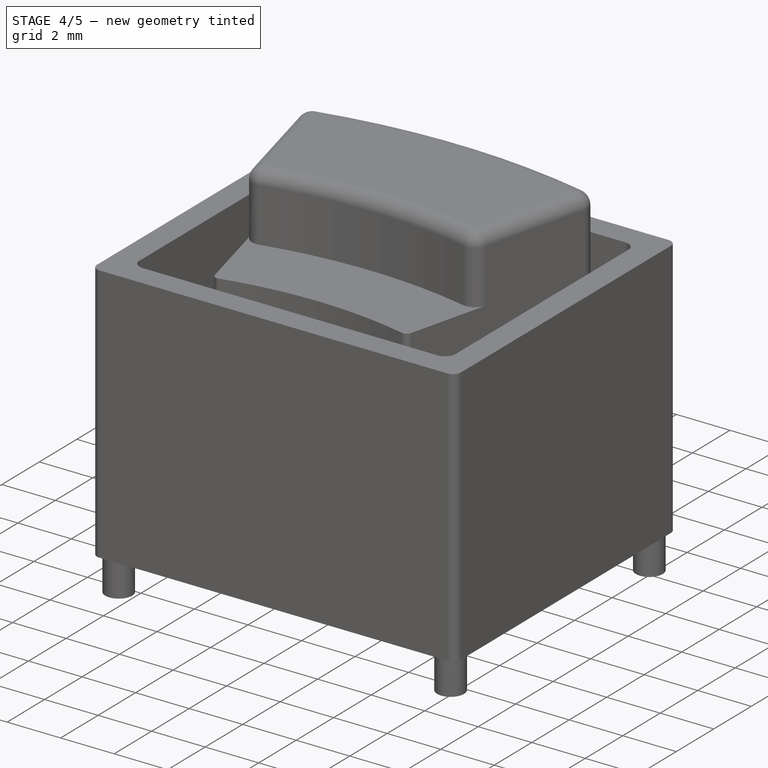
[diagram: stage 4 of 5 — iso view after this stage's code; geometry added in this stage tinted green]
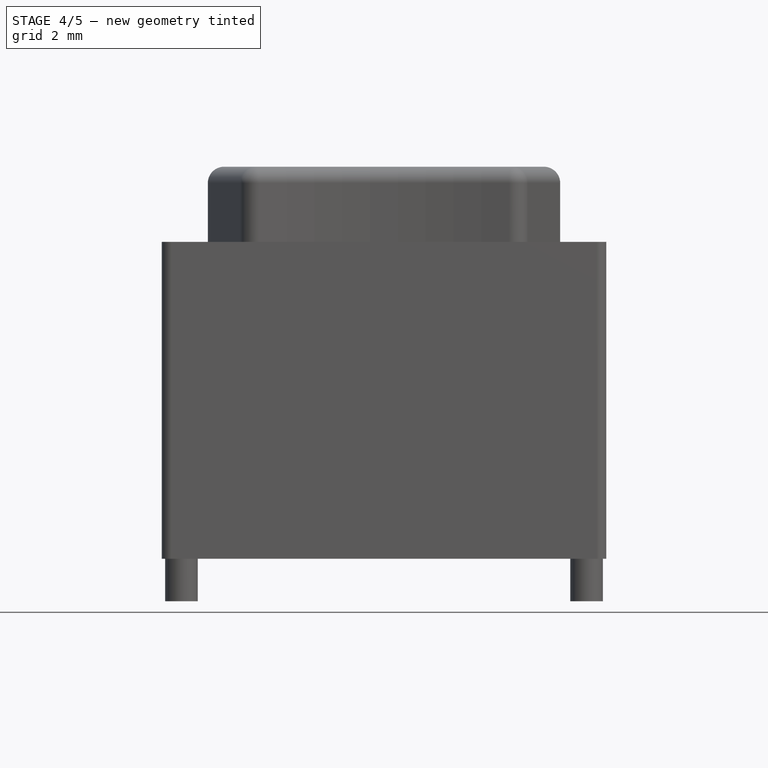
[diagram: stage 4 of 5 — front view after this stage's code; geometry added in this stage tinted green]
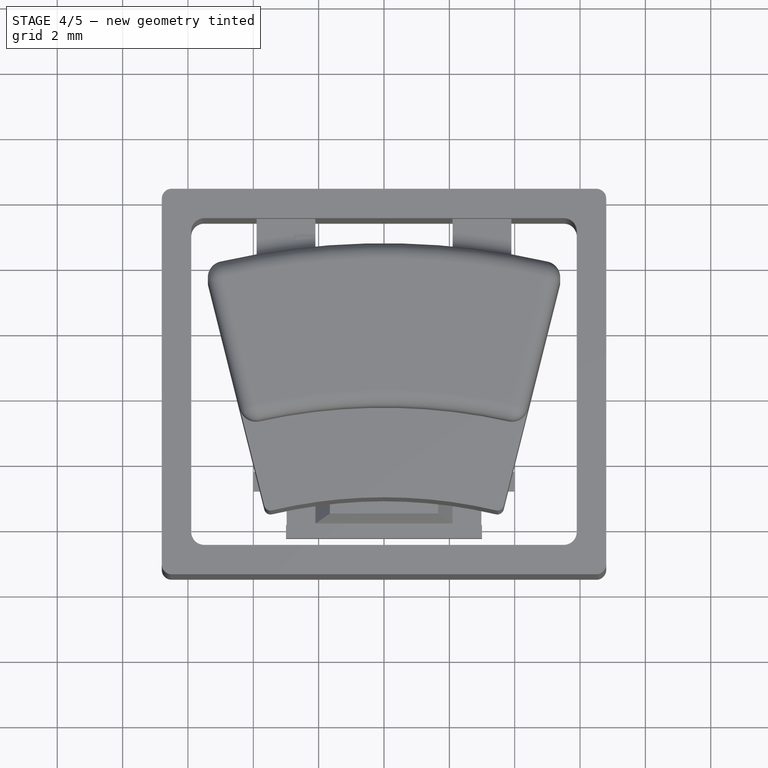
[diagram: stage 4 of 5 — top view after this stage's code; geometry added in this stage tinted green]
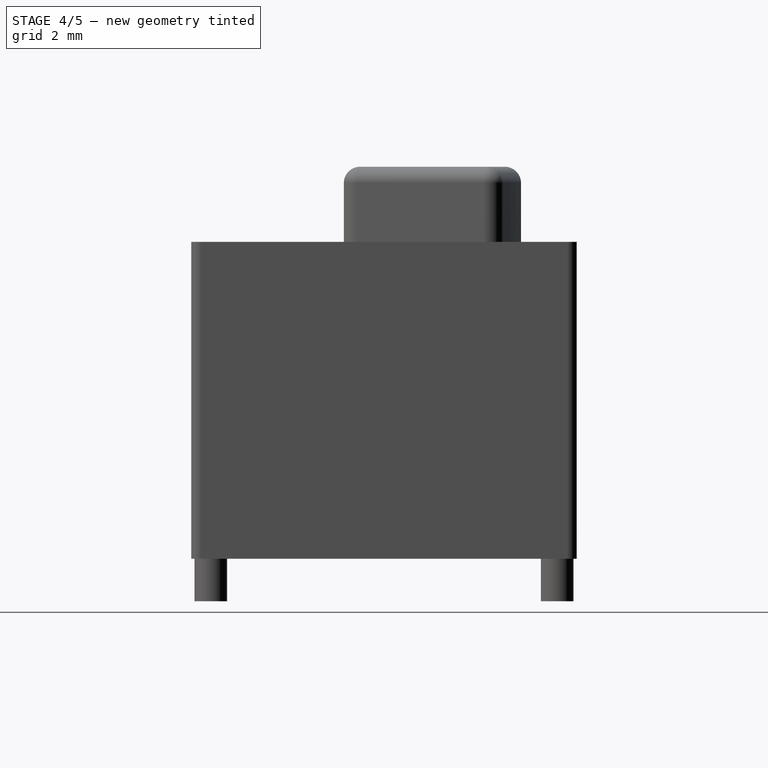
[diagram: stage 4 of 5 — right view after this stage's code; geometry added in this stage tinted green]
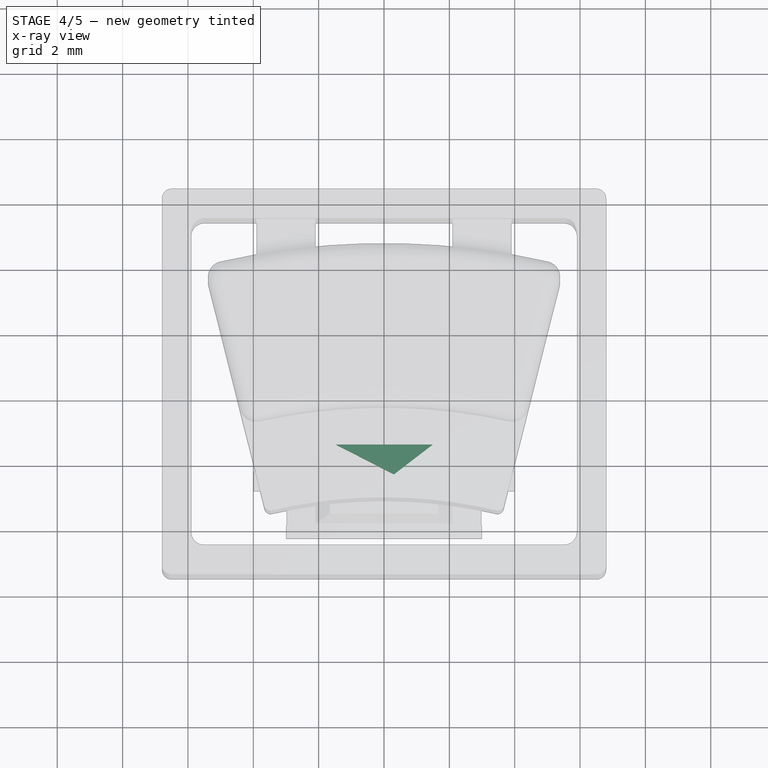
[diagram: stage 4 of 5 — x-ray composite at the top view; earlier geometry ghosted, this stage's added geometry solid]
FEATURE [Sketcher::SketchObject] Sketch002
  ExternalGeometry = -> [Pocket]
  MapMode = 5
  Placement = pos=(0,0,12) rot=(0,0,1;0rad)
  Support = -> [Pocket]
  sketch-geometry (7):
    g0: ArcOfCircle CenterX=-6e-15 CenterY=-20 CenterZ=0 NormalX=0 NormalY=0 NormalZ=1 AngleXU=0 Radius=17.6 StartAngle=1.32496 EndAngle=1.81663
    g1: GeomPoint X=0 Y=2.6 Z=0
    g2: GeomPoint X=0 Y=-2.4 Z=0
    g3: GeomPoint X=0 Y=-5.14 Z=0
    g4: ArcOfCircle CenterX=1.7e-15 CenterY=-20 CenterZ=0 NormalX=0 NormalY=0 NormalZ=1 AngleXU=0 Radius=14.86 StartAngle=1.32496 EndAngle=1.81663
    g5: LineSegment StartX=-4.28319 StartY=-2.92914 StartZ=0 EndX=-3.61637 EndY=-5.58676 EndZ=0
    g6: LineSegment StartX=4.28319 StartY=-2.92914 StartZ=0 EndX=3.61637 EndY=-5.58676 EndZ=0
  constraints (18):
    c: PointOnObject(g0,g-3)
    c: PointOnObject(g0,g-5)
    c: DistanceY(g0,g-1) = 20
    c: PointOnObject(g1,g-2)
    c: PointOnObject(g3,g-2)
    c: Coincident(g4,g-3)
    c: Coincident(g4,g-5)
    c: PointOnObject(g1,g-4)
    c: PointOnObject(g2,g0)
    c: PointOnObject(g2,g-2)
    c: PointOnObject(g3,g-6)
    c: PointOnObject(g3,g4)
    c: Coincident(g5,g0)
    c: Coincident(g5,g4)
    c: Coincident(g6,g0)
    c: Coincident(g6,g4)
    c: DistanceY(g2,g1) = 5
    c: Equal(g6,g5)
FEATURE [PartDesign::Pocket] Pocket001
  BaseFeature = -> Pocket
  Length = 2.5
  Length2 = 100
  Placement = pos=(0,0,10) rot=(0,0,1;0rad)
  Profile = -> Sketch002
  Type = 0
FEATURE [PartDesign::Plane] DatumPlane001
  Length = 24
  MapMode = 2
  Placement = pos=(0,0,7.95) rot=(0,0,1;0rad)
  ResizeMode = 0
  Width = 24
FEATURE [Sketcher::SketchObject] Sketch008
  ExternalGeometry = -> [Pocket001]
  MapMode = 5
  Placement = pos=(0,0,7.95) rot=(0,0,1;0rad)
  Support = -> [DatumPlane001]
  sketch-geometry (13):
    g0: LineSegment StartX=-3.9 StartY=2.26095 StartZ=0 EndX=-3.9 EndY=4.3 EndZ=0
    g1: LineSegment StartX=-2.1 StartY=4.3 StartZ=0 EndX=-2.1 EndY=2.50222 EndZ=0
    g2: ArcOfCircle [constr] CenterX=-2e-16 CenterY=-20 CenterZ=0 NormalX=0 NormalY=0 NormalZ=1 AngleXU=0 Radius=22.6 StartAngle=1.32496 EndAngle=1.81663
    g3: LineSegment StartX=-3.9 StartY=4.3 StartZ=0 EndX=-3 EndY=4.3 EndZ=0
    g4: LineSegment StartX=-3 StartY=4.3 StartZ=0 EndX=-2.1 EndY=4.3 EndZ=0
    g5: LineSegment StartX=-3.9 StartY=2.26095 StartZ=0 EndX=-2.1 EndY=2.50222 EndZ=0
    g6: LineSegment StartX=2.1 StartY=2.50222 StartZ=0 EndX=2.1 EndY=4.3 EndZ=0
    g7: LineSegment StartX=3.9 StartY=4.3 StartZ=0 EndX=3.9 EndY=2.26095 EndZ=0
    g8: LineSegment StartX=3.9 StartY=2.26095 StartZ=0 EndX=2.1 EndY=2.50222 EndZ=0
    g9: LineSegment StartX=2.1 StartY=4.3 StartZ=0 EndX=3 EndY=4.3 EndZ=0
    g10: LineSegment StartX=3 StartY=4.3 StartZ=0 EndX=3.9 EndY=4.3 EndZ=0
    g11: LineSegment [constr] StartX=-3.9 StartY=2.26095 StartZ=0 EndX=0 EndY=0 EndZ=0
    g12: LineSegment [constr] StartX=0 StartY=0 StartZ=0 EndX=3.9 EndY=2.26095 EndZ=0
  constraints (37):
    c: PointOnObject(g0,g-3)
    c: Vertical(g0)
    c: PointOnObject(g1,g-3)
    c: Vertical(g1)
    c: Coincident(g2,g-3)
    c: Coincident(g2,g-3)
    c: Coincident(g2,g-3)
    c: Horizontal(g3)
    c: Coincident(g3,g4)
    c: Coincident(g4,g1)
    c: Horizontal(g4)
    c: Equal(g4,g3)
    c: Coincident(g3,g0)
    c: DistanceX(g0,g1) = 1.8
    c: DistanceY(g-1,g1) = 4.3
    c: Coincident(g5,g0)
    c: Coincident(g5,g1)
    c: PointOnObject(g6,g2)
    c: Vertical(g6)
    c: PointOnObject(g7,g2)
    c: Vertical(g7)
    c: Coincident(g7,g8)
    c: Coincident(g8,g6)
    c: Equal(g6,g1)
    c: Coincident(g6,g9)
    c: Horizontal(g9)
    c: Coincident(g9,g10)
    c: Coincident(g10,g7)
    c: Horizontal(g10)
    c: Equal(g9,g10)
    c: DistanceX(g3,g9) = 6
    c: Equal(g9,g3)
    c: Coincident(g11,g0)
    c: Coincident(g11,g-1)
    c: Coincident(g12,g-1)
    c: Coincident(g12,g7)
    c: Equal(g11,g12)
FEATURE [PartDesign::Pad] Pad005  label="Laschen"
  BaseFeature = -> Pocket001
  Length = 0.45
  Length2 = 0.45
  Placement = pos=(0,0,10) rot=(0,0,1;0rad)
  Profile = -> Sketch008
  Type = 4
FEATURE [PartDesign::Fillet] Fillet  label="FilletObenAußen"
  Base = -> Pad005 [Edge24,Edge3,Edge14,Edge25,Edge4,Edge2,Edge15,Edge26]
  BaseFeature = -> Pad005
  Placement = pos=(0,0,10) rot=(0,0,1;0rad)
  Radius = 0.5
FEATURE [PartDesign::Fillet] Fillet008
  Base = -> Fillet [Edge19,Edge3,Edge11,Edge1]
  BaseFeature = -> Fillet
  Placement = pos=(0,0,10) rot=(0,0,1;0rad)
  Radius = 0.2
FEATURE [PartDesign::Fillet] Fillet009
  Base = -> Fillet008 [Edge97,Edge95,Edge100,Edge99,Edge98,Edge96,Edge94,Edge93]
  BaseFeature = -> Fillet008
  Placement = pos=(0,0,10) rot=(0,0,1;0rad)
  Radius = 0.2
FEATURE [PartDesign::Fillet] Fillet010
  Base = -> Fillet009 [Edge91,Edge89,Edge85,Edge87]
  BaseFeature = -> Fillet009
  Placement = pos=(0,0,10) rot=(0,0,1;0rad)
  Radius = 0.5
FEATURE [Sketcher::SketchObject] Sketch013
  ExternalGeometry = -> [Fillet010]
  MapMode = 5
  Placement = pos=(0,0,2.5) rot=(1,0,0;3.14159rad)
  Support = -> [Fillet010]
  sketch-geometry (4):
    g0: LineSegment StartX=-1.5 StartY=4.42141 StartZ=0 EndX=-1.5 EndY=3.42141 EndZ=0
    g1: LineSegment StartX=-1.5 StartY=3.42141 StartZ=0 EndX=1.5 EndY=3.42141 EndZ=0
    g2: LineSegment StartX=1.5 StartY=3.42141 StartZ=0 EndX=1.5 EndY=4.42141 EndZ=0
    g3: LineSegment StartX=-1.5 StartY=4.42141 StartZ=0 EndX=1.5 EndY=4.42141 EndZ=0
  constraints (12):
    c: PointOnObject(g0,g-3)
    c: Vertical(g0)
    c: Coincident(g0,g1)
    c: Horizontal(g1)
    c: Coincident(g1,g2)
    c: PointOnObject(g2,g-3)
    c: Vertical(g2)
    c: Equal(g0,g2)
    c: DistanceY(g2,g2) = 1
    c: DistanceX(g1,g1) = 3
    c: Coincident(g3,g2)
    c: Coincident(g3,g0)
FEATURE [PartDesign::Pad] Pad008
  BaseFeature = -> Fillet010
  Length = 1
  Length2 = 100
  Placement = pos=(0,0,10) rot=(0,0,1;0rad)
  Profile = -> Sketch013
  Reversed = true
  Type = 0
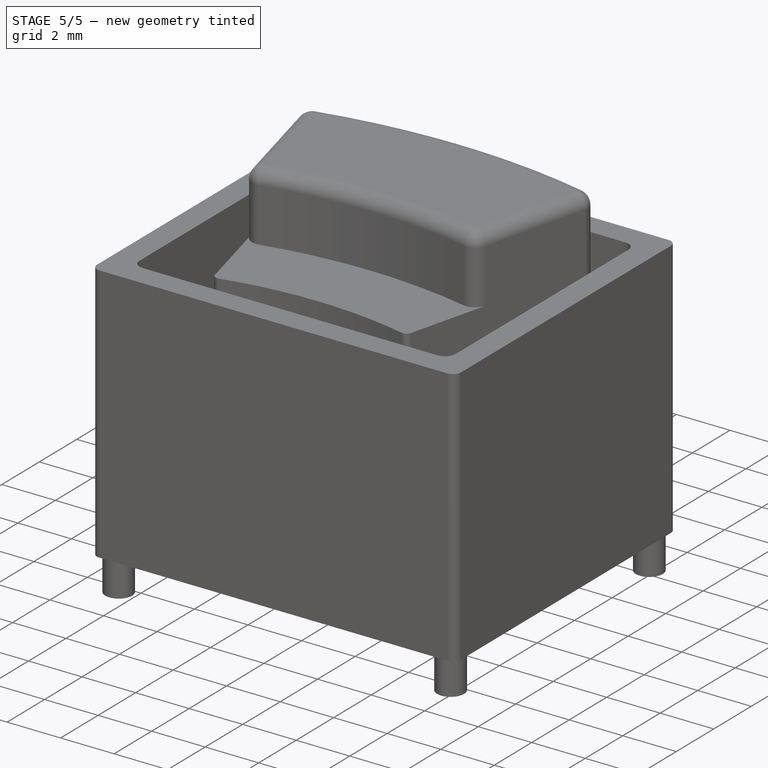
[diagram: stage 5 of 5 — iso view after this stage's code; geometry added in this stage tinted green]
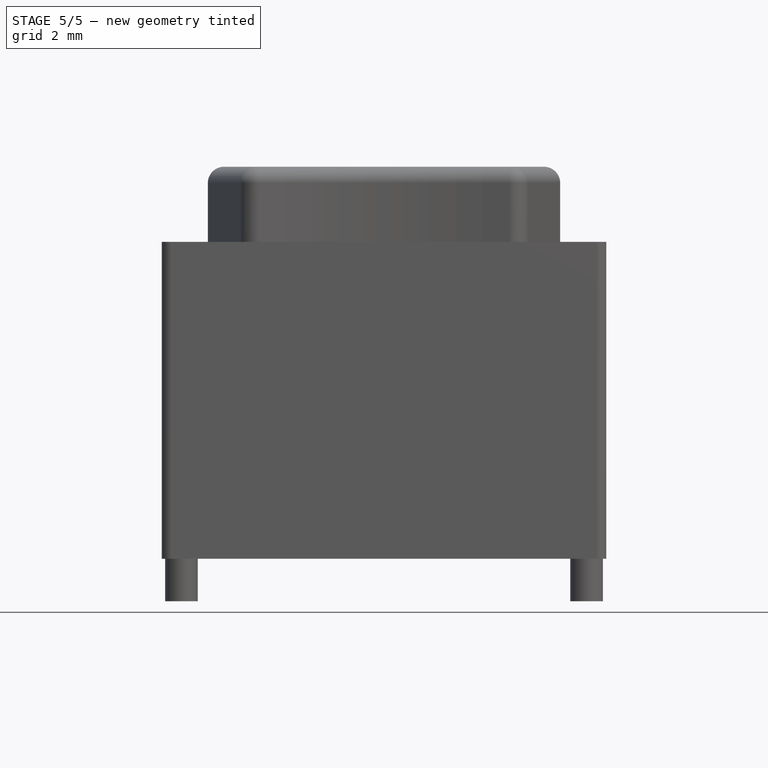
[diagram: stage 5 of 5 — front view after this stage's code; geometry added in this stage tinted green]
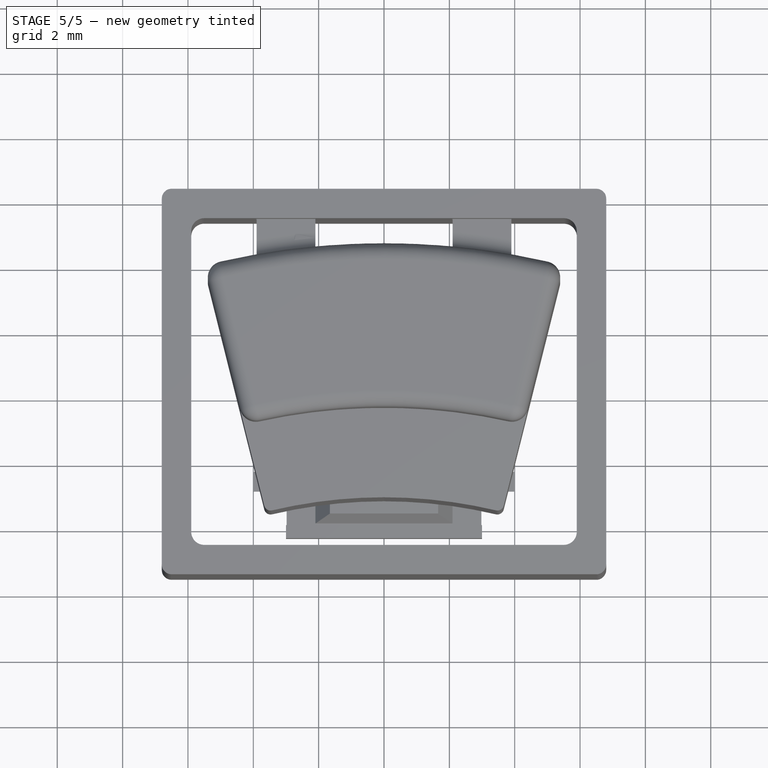
[diagram: stage 5 of 5 — top view after this stage's code; geometry added in this stage tinted green]
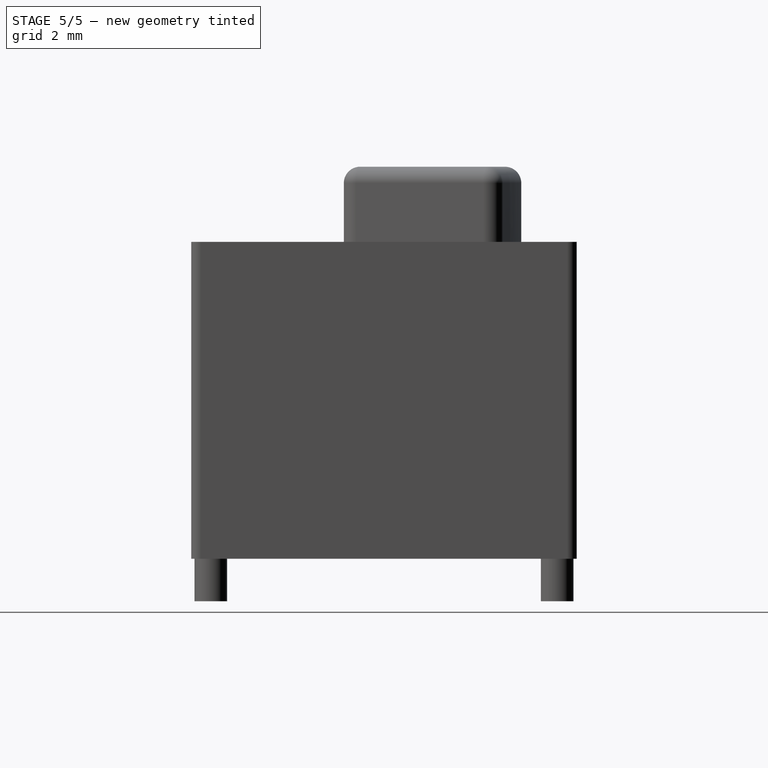
[diagram: stage 5 of 5 — right view after this stage's code; geometry added in this stage tinted green]
FEATURE [Part::Feature] Part__Feature  label="LED_WS2812_PLCC6_50x50mm_P16mm"
  shape: bbox 5.4 x 5 x 1.85 mm, 94 faces (baked)
FEATURE [Part::Feature] Part__Feature001  label="SW_SPST_CK_RS282G05A3"
  Placement = pos=(0,-4.5,0) rot=(0,0,1;0rad)
  shape: bbox 8 x 3.5 x 2.5 mm, 109 faces (baked)
FEATURE [Drawing::FeatureViewPython] centerLines001  # drawing view (typed FeaturePython)
  Rotation = 0
  ViewResult = <g transform="scale(5.000000,5.000000)" stroke="rgb(40,40,40)"  stroke-width="0.060000" > <path d="M 13.453000,16.199998 L 13.453000,15.799998 M 13.453000,15.399998 L 13.453000,14.199998 M 13.453000,13.799998 L 13.453000,13.399998 M 13.453000,12.999998 L 13.453000,11.799998 M 13.453000,11.399998 L 13.453000,10.999998 M 13.453000,10.599998 L 13.453000,9.399998 M 13.453000,8.999998 L 13.453000,8.599998 M 13.453000,8.199998 L 13.453000,6.999998 M 13.453000,6.599998 L 13.453000,6.199998 M 13.453000,5.799998 L 13.453000,5.119438 "/>\n<path d="M 13.453000,16.199998 L 13.453000,16.599998 M 13.453000,16.999998 L 13.453000,17.738403 "/> </g> 
  Visible = false
  X = 0
  Y = 0
  centerLine_color = rgb(40,40,40)
  centerLine_len_dash = 6
  centerLine_len_dot = 2
  centerLine_len_gap = 2
  centerLine_width = 0.3
  click1_x = 70.7291
  click1_y = 25.5972
  click2_x = 74.9953
  click2_y = 88.692
FEATURE [Drawing::FeatureViewPython] rad001  # drawing view (typed FeaturePython)
  Rotation = 0
  ViewResult = <g>  <circle cx ="67.265000" cy ="145.853222" r="0.500000" stroke="none" fill="rgb(57,57,57)" /> \n<line x1="79.897660" y1="80.833230" x2="67.265000" y2="145.853222" style="stroke:rgb(57,57,57);stroke-width:0.30" />\n<polygon points="81.435681,72.917074 79.980034,75.690355 80.863514,75.862006 81.746993,76.033656" style="fill:rgb(57,57,57);stroke:rgb(57,57,57);stroke-width:0" />\n<line x1="79.897660" y1="80.833230" x2="87.756446" y2="80.833230" style="stroke:rgb(57,57,57);stroke-width:0.30" />\n<text x="83.827053" y="78.833230" font-family="Verdana" font-size="2" fill="rgb(40,40,40)" text-anchor="middle" transform="rotate(0.000000 83.827053,78.833230)" >R14.86</text> </g>
  Visible = false
  X = 0
  Y = 0
  arrowL1 = 3
  arrowL2 = 0
  arrowW = 1.8
  arrow_scheme = 0
  autoPlaceOffset = 2
  autoPlaceText = true
  centerPointDia = 1
  click1_x = 79.8977
  click1_y = 80.8332
  click2_x = 87.7564
  click2_y = 81.5817
  click3_x = 87.7564
  click3_y = 81.5817
  comma_decimal_place = false
  lineColor = rgb(57,57,57)
  strokeWidth = 0.3
  textFormat_radial = R%(value)3.3f
  textRenderer_color = rgb(40,40,40)
  textRenderer_family = Verdana
  textRenderer_size = 2
  unit_custom_scale = 1
  unit_scheme = 0
FEATURE [Drawing::FeatureViewPython] dim001  # drawing view (typed FeaturePython)
  Rotation = 0
  ViewResult = <g> \n  <line x1="125.770000" y1="137.147000" x2="116.882366" y2="137.147000" style="stroke:rgb(57,57,57);stroke-width:0.30" />\n<line x1="125.770000" y1="102.147000" x2="116.882366" y2="102.147000" style="stroke:rgb(57,57,57);stroke-width:0.30" />\n<line x1="117.382366" y1="137.147000" x2="117.382366" y2="102.147000" style="stroke:rgb(57,57,57);stroke-width:0.30" /> \n  <polygon points="117.382366,102.147000 116.482366,105.147000 117.382366,105.147000 118.282366,105.147000" style="fill:rgb(57,57,57);stroke:rgb(57,57,57);stroke-width:0" /><polygon points="117.382366,137.147000 118.282366,134.147000 117.382366,134.147000 116.482366,134.147000" style="fill:rgb(57,57,57);stroke:rgb(57,57,57);stroke-width:0" /> \n  <text x="115.382366" y="119.647000" font-family="Verdana" font-size="2" fill="rgb(40,40,40)" text-anchor="middle" transform="rotate(-90.000000 115.382366,119.647000)" >7</text> </g>
  Visible = false
  X = 0
  Y = 0
  arrowL1 = 3
  arrowL2 = 0
  arrowW = 1.8
  arrow_scheme = 0
  autoPlaceOffset = 2
  autoPlaceText = true
  click1_x = 117.382
  click1_y = 112.795
  click2_x = 117.382
  click2_y = 112.795
  comma_decimal_place = false
  dimension_line_overshoot = 0.5
  gap_datum_points = 1
  halfDimension_linear = false
  lineColor = rgb(57,57,57)
  strokeWidth = 0.3
  textFormat_linear = %(value)3.3f
  textRenderer_color = rgb(40,40,40)
  textRenderer_family = Verdana
  textRenderer_size = 2
  unit_custom_scale = 1
  unit_scheme = 0
FEATURE [Drawing::FeatureViewPython] dim002  # drawing view (typed FeaturePython)
  Rotation = 0
  ViewResult = <g> \n  <line x1="123.769900" y1="137.146900" x2="108.728031" y2="137.146900" style="stroke:rgb(57,57,57);stroke-width:0.30" />\n<line x1="141.970000" y1="89.647000" x2="108.728031" y2="89.647000" style="stroke:rgb(57,57,57);stroke-width:0.30" />\n<line x1="109.228031" y1="137.146900" x2="109.228031" y2="89.647000" style="stroke:rgb(57,57,57);stroke-width:0.30" /> \n  <polygon points="109.228031,89.647000 108.328031,92.647000 109.228031,92.647000 110.128031,92.647000" style="fill:rgb(57,57,57);stroke:rgb(57,57,57);stroke-width:0" /><polygon points="109.228031,137.146900 110.128031,134.146900 109.228031,134.146900 108.328031,134.146900" style="fill:rgb(57,57,57);stroke:rgb(57,57,57);stroke-width:0" /> \n  <text x="107.228031" y="113.396950" font-family="Verdana" font-size="2" fill="rgb(40,40,40)" text-anchor="middle" transform="rotate(-90.000000 107.228031,113.396950)" >9.5</text> </g>
  Visible = false
  X = 0
  Y = 0
  arrowL1 = 3
  arrowL2 = 0
  arrowW = 1.8
  arrow_scheme = 0
  autoPlaceOffset = 2
  autoPlaceText = true
  click1_x = 109.228
  click1_y = 113.38
  click2_x = 109.228
  click2_y = 113.38
  comma_decimal_place = false
  dimension_line_overshoot = 0.5
  gap_datum_points = 1
  halfDimension_linear = false
  lineColor = rgb(57,57,57)
  strokeWidth = 0.3
  textFormat_linear = %(value)3.3f
  textRenderer_color = rgb(40,40,40)
  textRenderer_family = Verdana
  textRenderer_size = 2
  unit_custom_scale = 1
  unit_scheme = 0
FEATURE [Drawing::FeatureViewPython] dim003  # drawing view (typed FeaturePython)
  Rotation = 0
  ViewResult = <g> \n  <line x1="165.470000" y1="137.147000" x2="177.123757" y2="137.147000" style="stroke:rgb(57,57,57);stroke-width:0.30" />\n<line x1="173.470000" y1="112.147000" x2="177.123757" y2="112.147000" style="stroke:rgb(57,57,57);stroke-width:0.30" />\n<line x1="176.623757" y1="137.147000" x2="176.623757" y2="112.147000" style="stroke:rgb(57,57,57);stroke-width:0.30" /> \n  <polygon points="176.623757,112.147000 175.723757,115.147000 176.623757,115.147000 177.523757,115.147000" style="fill:rgb(57,57,57);stroke:rgb(57,57,57);stroke-width:0" /><polygon points="176.623757,137.147000 177.523757,134.147000 176.623757,134.147000 175.723757,134.147000" style="fill:rgb(57,57,57);stroke:rgb(57,57,57);stroke-width:0" /> \n  <text x="174.623757" y="124.647000" font-family="Verdana" font-size="2" fill="rgb(40,40,40)" text-anchor="middle" transform="rotate(-90.000000 174.623757,124.647000)" >5</text> </g>
  Visible = false
  X = 0
  Y = 0
  arrowL1 = 3
  arrowL2 = 0
  arrowW = 1.8
  arrow_scheme = 0
  autoPlaceOffset = 2
  autoPlaceText = true
  click1_x = 176.624
  click1_y = 121.776
  click2_x = 176.624
  click2_y = 121.776
  comma_decimal_place = false
  dimension_line_overshoot = 0.5
  gap_datum_points = 1
  halfDimension_linear = false
  lineColor = rgb(57,57,57)
  strokeWidth = 0.3
  textFormat_linear = %(value)3.3f
  textRenderer_color = rgb(40,40,40)
  textRenderer_family = Verdana
  textRenderer_size = 2
  unit_custom_scale = 1
  unit_scheme = 0
FEATURE [Drawing::FeatureViewPython] dim004  # drawing view (typed FeaturePython)
  Rotation = 0
  ViewResult = <g> \n  <line x1="165.470000" y1="137.147000" x2="183.164523" y2="137.147000" style="stroke:rgb(57,57,57);stroke-width:0.30" />\n<line x1="173.470000" y1="107.647000" x2="183.164523" y2="107.647000" style="stroke:rgb(57,57,57);stroke-width:0.30" />\n<line x1="182.664523" y1="137.147000" x2="182.664523" y2="107.647000" style="stroke:rgb(57,57,57);stroke-width:0.30" /> \n  <polygon points="182.664523,107.647000 181.764523,110.647000 182.664523,110.647000 183.564523,110.647000" style="fill:rgb(57,57,57);stroke:rgb(57,57,57);stroke-width:0" /><polygon points="182.664523,137.147000 183.564523,134.147000 182.664523,134.147000 181.764523,134.147000" style="fill:rgb(57,57,57);stroke:rgb(57,57,57);stroke-width:0" /> \n  <text x="180.664523" y="122.397000" font-family="Verdana" font-size="2" fill="rgb(40,40,40)" text-anchor="middle" transform="rotate(-90.000000 180.664523,122.397000)" >5.9</text> </g>
  Visible = false
  X = 0
  Y = 0
  arrowL1 = 3
  arrowL2 = 0
  arrowW = 1.8
  arrow_scheme = 0
  autoPlaceOffset = 2
  autoPlaceText = true
  click1_x = 182.665
  click1_y = 114.019
  click2_x = 182.665
  click2_y = 114.019
  comma_decimal_place = false
  dimension_line_overshoot = 0.5
  gap_datum_points = 1
  halfDimension_linear = false
  lineColor = rgb(57,57,57)
  strokeWidth = 0.3
  textFormat_linear = %(value)3.3f
  textRenderer_color = rgb(40,40,40)
  textRenderer_family = Verdana
  textRenderer_size = 2
  unit_custom_scale = 1
  unit_scheme = 0
FEATURE [Drawing::FeatureViewPython] dim005  # drawing view (typed FeaturePython)
  Rotation = 0
  ViewResult = <g> \n  <line x1="172.470000" y1="106.647000" x2="172.470000" y2="83.315627" style="stroke:rgb(57,57,57);stroke-width:0.30" />\n<line x1="165.470000" y1="91.147000" x2="165.470000" y2="83.315627" style="stroke:rgb(57,57,57);stroke-width:0.30" />\n<line x1="172.470000" y1="83.815627" x2="165.470000" y2="83.815627" style="stroke:rgb(57,57,57);stroke-width:0.30" /> \n  <polygon points="165.470000,83.815627 162.470000,82.915627 162.470000,83.815627 162.470000,84.715627" style="fill:rgb(57,57,57);stroke:rgb(57,57,57);stroke-width:0" /><polygon points="172.470000,83.815627 175.470000,84.715627 175.470000,83.815627 175.470000,82.915627" style="fill:rgb(57,57,57);stroke:rgb(57,57,57);stroke-width:0" /> \n  <text x="168.970000" y="81.815627" font-family="Verdana" font-size="2" fill="rgb(40,40,40)" text-anchor="middle" transform="rotate(0.000000 168.970000,81.815627)" >1.4</text> </g>
  Visible = false
  X = 0
  Y = 0
  arrowL1 = 3
  arrowL2 = 0
  arrowW = 1.8
  arrow_scheme = 0
  autoPlaceOffset = 2
  autoPlaceText = true
  click1_x = 169.141
  click1_y = 83.8156
  click2_x = 169.141
  click2_y = 83.8156
  comma_decimal_place = false
  dimension_line_overshoot = 0.5
  gap_datum_points = 1
  halfDimension_linear = false
  lineColor = rgb(57,57,57)
  strokeWidth = 0.3
  textFormat_linear = %(value)3.3f
  textRenderer_color = rgb(40,40,40)
  textRenderer_family = Verdana
  textRenderer_size = 2
  unit_custom_scale = 1
  unit_scheme = 0
FEATURE [Drawing::FeatureViewPython] dim006  # drawing view (typed FeaturePython)
  Rotation = 0
  ViewResult = <g> \n  <line x1="165.470000" y1="135.147000" x2="165.470000" y2="83.344547" style="stroke:rgb(57,57,57);stroke-width:0.30" />\n<line x1="140.470000" y1="91.147000" x2="140.470000" y2="83.344547" style="stroke:rgb(57,57,57);stroke-width:0.30" />\n<line x1="165.470000" y1="83.844547" x2="140.470000" y2="83.844547" style="stroke:rgb(57,57,57);stroke-width:0.30" /> \n  <polygon points="140.470000,83.844547 143.470000,84.744547 143.470000,83.844547 143.470000,82.944547" style="fill:rgb(57,57,57);stroke:rgb(57,57,57);stroke-width:0" /><polygon points="165.470000,83.844547 162.470000,82.944547 162.470000,83.844547 162.470000,84.744547" style="fill:rgb(57,57,57);stroke:rgb(57,57,57);stroke-width:0" /> \n  <text x="152.970000" y="81.844547" font-family="Verdana" font-size="2" fill="rgb(40,40,40)" text-anchor="middle" transform="rotate(0.000000 152.970000,81.844547)" >5</text> </g>
  Visible = false
  X = 0
  Y = 0
  arrowL1 = 3
  arrowL2 = 0
  arrowW = 1.8
  arrow_scheme = 0
  autoPlaceOffset = 2
  autoPlaceText = true
  click1_x = 148.639
  click1_y = 83.8445
  click2_x = 148.639
  click2_y = 83.8445
  comma_decimal_place = false
  dimension_line_overshoot = 0.5
  gap_datum_points = 1
  halfDimension_linear = false
  lineColor = rgb(57,57,57)
  strokeWidth = 0.3
  textFormat_linear = %(value)3.3f
  textRenderer_color = rgb(40,40,40)
  textRenderer_family = Verdana
  textRenderer_size = 2
  unit_custom_scale = 1
  unit_scheme = 0
FEATURE [Drawing::FeatureViewPython] dim007  # drawing view (typed FeaturePython)
  Rotation = 0
  ViewResult = <g> \n  <line x1="165.470000" y1="91.147000" x2="165.470000" y2="77.930370" style="stroke:rgb(57,57,57);stroke-width:0.30" />\n<line x1="126.770000" y1="101.147000" x2="126.770000" y2="77.930370" style="stroke:rgb(57,57,57);stroke-width:0.30" />\n<line x1="165.470000" y1="78.430370" x2="126.770000" y2="78.430370" style="stroke:rgb(57,57,57);stroke-width:0.30" /> \n  <polygon points="126.770000,78.430370 129.770000,79.330370 129.770000,78.430370 129.770000,77.530370" style="fill:rgb(57,57,57);stroke:rgb(57,57,57);stroke-width:0" /><polygon points="165.470000,78.430370 162.470000,77.530370 162.470000,78.430370 162.470000,79.330370" style="fill:rgb(57,57,57);stroke:rgb(57,57,57);stroke-width:0" /> \n  <text x="146.120000" y="76.430370" font-family="Verdana" font-size="2" fill="rgb(40,40,40)" text-anchor="middle" transform="rotate(0.000000 146.120000,76.430370)" >7.74</text> </g>
  Visible = false
  X = 0
  Y = 0
  arrowL1 = 3
  arrowL2 = 0
  arrowW = 1.8
  arrow_scheme = 0
  autoPlaceOffset = 2
  autoPlaceText = true
  click1_x = 139.941
  click1_y = 78.4304
  click2_x = 139.941
  click2_y = 78.4304
  comma_decimal_place = false
  dimension_line_overshoot = 0.5
  gap_datum_points = 1
  halfDimension_linear = false
  lineColor = rgb(57,57,57)
  strokeWidth = 0.3
  textFormat_linear = %(value)3.3f
  textRenderer_color = rgb(40,40,40)
  textRenderer_family = Verdana
  textRenderer_size = 2
  unit_custom_scale = 1
  unit_scheme = 0
FEATURE [Drawing::FeatureViewPython] rad002  # drawing view (typed FeaturePython)
  Rotation = 0
  ViewResult = <g>  <circle cx ="67.265000" cy ="145.853186" r="0.500000" stroke="none" fill="rgb(57,57,57)" /> \n<line x1="77.479821" y1="66.616248" x2="67.265000" y2="145.853186" style="stroke:rgb(57,57,57);stroke-width:0.30" />\n<polygon points="78.516402,58.575434 77.240218,61.435741 78.132831,61.550812 79.025445,61.665883" style="fill:rgb(57,57,57);stroke:rgb(57,57,57);stroke-width:0" />\n<line x1="77.479821" y1="66.616248" x2="85.473771" y2="66.616248" style="stroke:rgb(57,57,57);stroke-width:0.30" />\n<text x="81.476796" y="64.616248" font-family="Verdana" font-size="2" fill="rgb(40,40,40)" text-anchor="middle" transform="rotate(0.000000 81.476796,64.616248)" >R17.6</text> </g>
  Visible = false
  X = 0
  Y = 0
  arrowL1 = 3
  arrowL2 = 0
  arrowW = 1.8
  arrow_scheme = 0
  autoPlaceOffset = 2
  autoPlaceText = true
  centerPointDia = 1
  click1_x = 77.4798
  click1_y = 66.6162
  click2_x = 85.4738
  click2_y = 66.4113
  click3_x = 85.4738
  click3_y = 66.4113
  comma_decimal_place = false
  lineColor = rgb(57,57,57)
  strokeWidth = 0.3
  textFormat_radial = R%(value)3.3f
  textRenderer_color = rgb(40,40,40)
  textRenderer_family = Verdana
  textRenderer_size = 2
  unit_custom_scale = 1
  unit_scheme = 0
FEATURE [Drawing::FeatureViewPython] rad003  # drawing view (typed FeaturePython)
  Rotation = 0
  ViewResult = <g>  <circle cx ="67.265000" cy ="145.853212" r="0.500000" stroke="none" fill="rgb(57,57,57)" /> \n<line x1="72.970413" y1="41.404560" x2="67.265000" y2="145.853212" style="stroke:rgb(57,57,57);stroke-width:0.30" />\n<polygon points="73.428335,33.021420 72.366046,35.967865 73.264707,36.016954 74.163367,36.066043" style="fill:rgb(57,57,57);stroke:rgb(57,57,57);stroke-width:0" />\n<line x1="72.970413" y1="41.404560" x2="81.579282" y2="41.404560" style="stroke:rgb(57,57,57);stroke-width:0.30" />\n<text x="77.274848" y="39.404560" font-family="Verdana" font-size="2" fill="rgb(40,40,40)" text-anchor="middle" transform="rotate(0.000000 77.274848,39.404560)" >R22.6</text> </g>
  Visible = false
  X = 0
  Y = 0
  arrowL1 = 3
  arrowL2 = 0
  arrowW = 1.8
  arrow_scheme = 0
  autoPlaceOffset = 2
  autoPlaceText = true
  centerPointDia = 1
  click1_x = 72.9704
  click1_y = 41.4046
  click2_x = 81.5793
  click2_y = 42.0195
  click3_x = 81.5793
  click3_y = 42.0195
  comma_decimal_place = false
  lineColor = rgb(57,57,57)
  strokeWidth = 0.3
  textFormat_radial = R%(value)3.3f
  textRenderer_color = rgb(40,40,40)
  textRenderer_family = Verdana
  textRenderer_size = 2
  unit_custom_scale = 1
  unit_scheme = 0
FEATURE [Drawing::FeatureViewPython] rad004  # drawing view (typed FeaturePython)
  Rotation = 0
  ViewResult = <g>  <circle cx ="140.824050" cy ="92.147000" r="0.500000" stroke="none" fill="rgb(57,57,57)" /> \n<line x1="135.429623" y1="85.724470" x2="140.824050" y2="92.147000" style="stroke:rgb(57,57,57);stroke-width:0.30" />\n<polygon points="139.216157,90.232665 137.975846,87.356621 137.286685,87.935462 136.597524,88.514304" style="fill:rgb(57,57,57);stroke:rgb(57,57,57);stroke-width:0" />\n<line x1="135.429623" y1="85.724470" x2="128.661901" y2="85.724470" style="stroke:rgb(57,57,57);stroke-width:0.30" />\n<text x="132.045762" y="83.724470" font-family="Verdana" font-size="2" fill="rgb(40,40,40)" text-anchor="middle" transform="rotate(0.000000 132.045762,83.724470)" >R0.5</text> </g>
  Visible = false
  X = 0
  Y = 0
  arrowL1 = 3
  arrowL2 = 0
  arrowW = 1.8
  arrow_scheme = 0
  autoPlaceOffset = 2
  autoPlaceText = true
  centerPointDia = 1
  click1_x = 135.43
  click1_y = 85.7245
  click2_x = 128.662
  click2_y = 85.6493
  click3_x = 128.662
  click3_y = 85.6493
  comma_decimal_place = false
  lineColor = rgb(57,57,57)
  strokeWidth = 0.3
  textFormat_radial = R%(value)3.3f
  textRenderer_color = rgb(40,40,40)
  textRenderer_family = Verdana
  textRenderer_size = 2
  unit_custom_scale = 1
  unit_scheme = 0
FEATURE [Drawing::FeatureViewPython] rad005  # drawing view (typed FeaturePython)
  Rotation = 0
  ViewResult = <g>  <circle cx ="91.724864" cy ="38.094384" r="0.500000" stroke="none" fill="rgb(57,57,57)" /> \n<line x1="99.355003" y1="33.877494" x2="91.724864" y2="38.094384" style="stroke:rgb(57,57,57);stroke-width:0.30" />\n<polygon points="93.912939,36.885117 96.973966,36.221704 96.538630,35.433997 96.103294,34.646290" style="fill:rgb(57,57,57);stroke:rgb(57,57,57);stroke-width:0" />\n<line x1="99.355003" y1="33.877494" x2="107.183835" y2="33.877494" style="stroke:rgb(57,57,57);stroke-width:0.30" />\n<text x="103.269419" y="31.877494" font-family="Verdana" font-size="2" fill="rgb(40,40,40)" text-anchor="middle" transform="rotate(0.000000 103.269419,31.877494)" >R0.5</text> </g>
  Visible = false
  X = 0
  Y = 0
  arrowL1 = 3
  arrowL2 = 0
  arrowW = 1.8
  arrow_scheme = 0
  autoPlaceOffset = 2
  autoPlaceText = true
  centerPointDia = 1
  click1_x = 99.355
  click1_y = 33.8775
  click2_x = 107.184
  click2_y = 34.5892
  click3_x = 107.184
  click3_y = 34.5892
  comma_decimal_place = false
  lineColor = rgb(57,57,57)
  strokeWidth = 0.3
  textFormat_radial = R%(value)3.3f
  textRenderer_color = rgb(40,40,40)
  textRenderer_family = Verdana
  textRenderer_size = 2
  unit_custom_scale = 1
  unit_scheme = 0
FEATURE [Drawing::FeatureViewPython] rad006  # drawing view (typed FeaturePython)
  Rotation = 0
  ViewResult = <g>  <circle cx ="84.617162" cy ="72.578967" r="0.500000" stroke="none" fill="rgb(57,57,57)" /> \n<line x1="91.099143" y1="76.010847" x2="84.617162" y2="72.578967" style="stroke:rgb(57,57,57);stroke-width:0.30" />\n<polygon points="85.502591,73.047757 87.732792,75.246895 88.153914,74.451498 88.575036,73.656101" style="fill:rgb(57,57,57);stroke:rgb(57,57,57);stroke-width:0" />\n<line x1="91.099143" y1="76.010847" x2="100.066715" y2="76.010847" style="stroke:rgb(57,57,57);stroke-width:0.30" />\n<text x="95.582929" y="74.010847" font-family="Verdana" font-size="2" fill="rgb(40,40,40)" text-anchor="middle" transform="rotate(0.000000 95.582929,74.010847)" >R0.2</text> </g>
  Visible = false
  X = 0
  Y = 0
  arrowL1 = 3
  arrowL2 = 0
  arrowW = 1.8
  arrow_scheme = 0
  autoPlaceOffset = 2
  autoPlaceText = true
  centerPointDia = 1
  click1_x = 91.0991
  click1_y = 76.0108
  click2_x = 100.067
  click2_y = 76.5802
  click3_x = 100.067
  click3_y = 76.5802
  comma_decimal_place = false
  lineColor = rgb(57,57,57)
  strokeWidth = 0.3
  textFormat_radial = R%(value)3.3f
  textRenderer_color = rgb(40,40,40)
  textRenderer_family = Verdana
  textRenderer_size = 2
  unit_custom_scale = 1
  unit_scheme = 0
FEATURE [Drawing::FeatureViewPython] rad007  # drawing view (typed FeaturePython)
  Rotation = 0
  ViewResult = <g>  <circle cx ="86.856114" cy ="57.499135" r="0.500000" stroke="none" fill="rgb(57,57,57)" /> \n<line x1="94.451591" y1="62.475792" x2="86.856114" y2="57.499135" style="stroke:rgb(57,57,57);stroke-width:0.30" />\n<polygon points="88.947227,58.869261 90.963319,61.266212 91.456564,60.513411 91.949809,59.760610" style="fill:rgb(57,57,57);stroke:rgb(57,57,57);stroke-width:0" />\n<line x1="94.451591" y1="62.475792" x2="103.552396" y2="62.475792" style="stroke:rgb(57,57,57);stroke-width:0.30" />\n<text x="99.001994" y="60.475792" font-family="Verdana" font-size="2" fill="rgb(40,40,40)" text-anchor="middle" transform="rotate(0.000000 99.001994,60.475792)" >R0.5</text> </g>
  Visible = false
  X = 0
  Y = 0
  arrowL1 = 3
  arrowL2 = 0
  arrowW = 1.8
  arrow_scheme = 0
  autoPlaceOffset = 2
  autoPlaceText = true
  centerPointDia = 1
  click1_x = 94.4516
  click1_y = 62.4758
  click2_x = 103.552
  click2_y = 62.4758
  click3_x = 103.552
  click3_y = 62.4758
  comma_decimal_place = false
  lineColor = rgb(57,57,57)
  strokeWidth = 0.3
  textFormat_radial = R%(value)3.3f
  textRenderer_color = rgb(40,40,40)
  textRenderer_family = Verdana
  textRenderer_size = 2
  unit_custom_scale = 1
  unit_scheme = 0
FEATURE [Drawing::FeatureViewPython] dim008  # drawing view (typed FeaturePython)
  Rotation = 0
  ViewResult = <g> \n  <line x1="214.735000" y1="113.147000" x2="214.735000" y2="143.776370" style="stroke:rgb(57,57,57);stroke-width:0.30" />\n<line x1="244.735000" y1="113.147000" x2="244.735000" y2="143.776370" style="stroke:rgb(57,57,57);stroke-width:0.30" />\n<line x1="214.735000" y1="143.276370" x2="244.735000" y2="143.276370" style="stroke:rgb(57,57,57);stroke-width:0.30" /> \n  <polygon points="244.735000,143.276370 241.735000,142.376370 241.735000,143.276370 241.735000,144.176370" style="fill:rgb(57,57,57);stroke:rgb(57,57,57);stroke-width:0" /><polygon points="214.735000,143.276370 217.735000,144.176370 217.735000,143.276370 217.735000,142.376370" style="fill:rgb(57,57,57);stroke:rgb(57,57,57);stroke-width:0" /> \n  <text x="229.735000" y="141.276370" font-family="Verdana" font-size="2" fill="rgb(40,40,40)" text-anchor="middle" transform="rotate(0.000000 229.735000,141.276370)" >6</text> </g>
  Visible = false
  X = 0
  Y = 0
  arrowL1 = 3
  arrowL2 = 0
  arrowW = 1.8
  arrow_scheme = 0
  autoPlaceOffset = 2
  autoPlaceText = true
  click1_x = 236.043
  click1_y = 143.276
  click2_x = 236.043
  click2_y = 143.276
  comma_decimal_place = false
  dimension_line_overshoot = 0.5
  gap_datum_points = 1
  halfDimension_linear = false
  lineColor = rgb(57,57,57)
  strokeWidth = 0.3
  textFormat_linear = %(value)3.3f
  textRenderer_color = rgb(40,40,40)
  textRenderer_family = Verdana
  textRenderer_size = 2
  unit_custom_scale = 1
  unit_scheme = 0
FEATURE [Drawing::FeatureViewPython] dim009  # drawing view (typed FeaturePython)
  Rotation = 0
  ViewResult = <g> \n  <line x1="240.235000" y1="106.647000" x2="240.235000" y2="99.199225" style="stroke:rgb(57,57,57);stroke-width:0.30" />\n<line x1="249.235000" y1="106.647000" x2="249.235000" y2="99.199225" style="stroke:rgb(57,57,57);stroke-width:0.30" />\n<line x1="240.235000" y1="99.699225" x2="249.235000" y2="99.699225" style="stroke:rgb(57,57,57);stroke-width:0.30" /> \n  <polygon points="249.235000,99.699225 246.235000,98.799225 246.235000,99.699225 246.235000,100.599225" style="fill:rgb(57,57,57);stroke:rgb(57,57,57);stroke-width:0" /><polygon points="240.235000,99.699225 243.235000,100.599225 243.235000,99.699225 243.235000,98.799225" style="fill:rgb(57,57,57);stroke:rgb(57,57,57);stroke-width:0" /> \n  <text x="244.735000" y="97.699225" font-family="Verdana" font-size="2" fill="rgb(40,40,40)" text-anchor="middle" transform="rotate(0.000000 244.735000,97.699225)" >1.8</text> </g>
  Visible = false
  X = 0
  Y = 0
  arrowL1 = 3
  arrowL2 = 0
  arrowW = 1.8
  arrow_scheme = 0
  autoPlaceOffset = 2
  autoPlaceText = true
  click1_x = 247.157
  click1_y = 99.6992
  click2_x = 247.157
  click2_y = 99.6992
  comma_decimal_place = false
  dimension_line_overshoot = 0.5
  gap_datum_points = 1
  halfDimension_linear = false
  lineColor = rgb(57,57,57)
  strokeWidth = 0.3
  textFormat_linear = %(value)3.3f
  textRenderer_color = rgb(40,40,40)
  textRenderer_family = Verdana
  textRenderer_size = 2
  unit_custom_scale = 1
  unit_scheme = 0
FEATURE [Drawing::FeatureViewPython] rad008  # drawing view (typed FeaturePython)
  Rotation = 0
  ViewResult = <g>  <circle cx ="83.086089" cy ="150.386511" r="0.500000" stroke="none" fill="rgb(57,57,57)" /> \n<line x1="87.740281" y1="142.533733" x2="83.086089" y2="150.386511" style="stroke:rgb(57,57,57);stroke-width:0.30" />\n<polygon points="83.596933,149.524589 85.900742,147.402688 85.126510,146.943815 84.352277,146.484942" style="fill:rgb(57,57,57);stroke:rgb(57,57,57);stroke-width:0" />\n<line x1="87.740281" y1="142.533733" x2="99.724967" y2="142.533733" style="stroke:rgb(57,57,57);stroke-width:0.30" />\n<text x="93.732624" y="140.533733" font-family="Verdana" font-size="2" fill="rgb(40,40,40)" text-anchor="middle" transform="rotate(0.000000 93.732624,140.533733)" >R0.2</text> </g>
  Visible = false
  X = 0
  Y = 0
  arrowL1 = 3
  arrowL2 = 0
  arrowW = 1.8
  arrow_scheme = 0
  autoPlaceOffset = 2
  autoPlaceText = true
  centerPointDia = 1
  click1_x = 87.7403
  click1_y = 142.534
  click2_x = 99.725
  click2_y = 142.976
  click3_x = 99.725
  click3_y = 142.976
  comma_decimal_place = false
  lineColor = rgb(57,57,57)
  strokeWidth = 0.3
  textFormat_radial = R%(value)3.3f
  textRenderer_color = rgb(40,40,40)
  textRenderer_family = Verdana
  textRenderer_size = 2
  unit_custom_scale = 1
  unit_scheme = 0
FEATURE [Part::Box] Box  label="WürfelStößelSchnitt"
  AttacherType = Attacher::AttachEngine3D
  Height = 15
  Length = 10
  Placement = pos=(0,-9,0) rot=(0,0,1;0rad)
  Width = 15
FEATURE [PartDesign::Body] Body001  label="frame"
  Group = -> [Sketch005,Pad003,Fillet005,Fillet006,Sketch006,Pocket002,Mirrored001,Fillet007,Sketch007,Pad004]
  Origin = -> Origin001
  Tip = -> Pad004
FEATURE [Drawing::FeatureViewPart] Ortho008  label="Unten001"
  Direction = (0,0,-1)
  HiddenWidth = 0.15
  LineWidth = 0.35
  Rotation = 180
  Scale = 5
  ShowHiddenLines = true
  ShowSmoothLines = false
  Source = -> Body001
  Tolerance = 0.05
  ViewResult = <blob: 3960 chars omitted>
  Visible = false
  X = 65.25
  Y = 153.833
FEATURE [Drawing::FeatureViewPart] Ortho005  label="Vorn"
  Direction = (0,-1,0)
  HiddenWidth = 0.15
  LineWidth = 0.35
  Rotation = 90
  Scale = 5
  ShowHiddenLines = true
  ShowSmoothLines = false
  Source = -> Body001
  Tolerance = 0.05
  ViewResult = <blob: 10455 chars omitted>
  Visible = false
  X = 65.25
  Y = 85.1667
FEATURE [Drawing::FeatureViewPart] Ortho007  label="Hinten001"
  Direction = (0,1,0)
  HiddenWidth = 0.15
  LineWidth = 0.35
  Rotation = -90
  Scale = 5
  ShowHiddenLines = true
  ShowSmoothLines = false
  Source = -> Body001
  Tolerance = 0.05
  ViewResult = <blob: 10551 chars omitted>
  Visible = false
  X = 231.75
  Y = 85.1667
FEATURE [Drawing::FeaturePage] Page001  label="Page2_Rahmen"
  EditableTexts = Christopher Wüpping | 09.01.2020 | 5:1 | Rahmen | WS28-Switch 10x5 circular | 2020LUM_SW_CIRC_RA_V1_0 | 2 / 3
  Group = -> [Ortho005,Ortho007,Gruppe002,Gruppe003,Ortho008,Gruppe004]
  Template = /Applications/FreeCAD.app/Contents/Resources/data/Mod/Drawing/Templates/A4_Landscape.svg
FEATURE [Part::Box] Box001  label="Würfel"
  AttacherType = Attacher::AttachEngine3D
  Height = 15
  Length = 10
  Placement = pos=(-10,-8,-2) rot=(0,0,1;0rad)
  Width = 14
FEATURE [PartDesign::Fillet] Fillet015
  Base = -> Pad008 [Edge124]
  BaseFeature = -> Pad008
  Placement = pos=(0,0,10) rot=(0,0,1;0rad)
  Radius = 0.5
FEATURE [PartDesign::Fillet] Fillet016
  Base = -> Fillet015 [Edge41]
  BaseFeature = -> Fillet015
  Placement = pos=(0,0,10) rot=(0,0,1;0rad)
  Radius = 0.99
FEATURE [PartDesign::Body] Body  label="Stößel"
  Group = -> [DatumPlane,Sketch,Pad,Sketch001,Pocket,Sketch002,Pocket001,DatumPlane001,Sketch008,Pad005,Fillet,Fillet008,Fillet009,Fillet010,Sketch013,Pad008,Fillet015,Fillet016]
  Origin = -> Origin
  Tip = -> Fillet016
FEATURE [Drawing::FeatureViewPart] Ortho001  label="Rechts"
  Direction = (1,0,0)
  HiddenWidth = 0.15
  LineWidth = 0.35
  Rotation = -90
  Scale = 5
  ShowHiddenLines = true
  ShowSmoothLines = true
  Source = -> Body
  Tolerance = 0.05
  ViewResult = <blob: 13721 chars omitted>
  Visible = false
  X = 152.47
  Y = 149.6
FEATURE [Drawing::FeatureViewPart] Ortho002  label="Hinten"
  Direction = (0,1,0)
  HiddenWidth = 0.15
  LineWidth = 0.35
  Rotation = -90
  Scale = 5
  ShowHiddenLines = false
  ShowSmoothLines = true
  Source = -> Body
  Tolerance = 0.05
  ViewResult = <blob: 4315 chars omitted>
  Visible = false
  X = 229.65
  Y = 149.6
FEATURE [Drawing::FeatureViewPart] Ortho003  label="Draufsicht"
  Direction = (0,0,1)
  HiddenWidth = 0.15
  LineWidth = 0.35
  Rotation = 0
  Scale = 5
  ShowHiddenLines = false
  ShowSmoothLines = false
  Source = -> Body
  Tolerance = 0.05
  ViewResult = <blob: 2757 chars omitted>
  Visible = false
  X = 67.265
  Y = 45.8532
FEATURE [Drawing::FeatureViewPart] Ortho  label="Unten"
  Direction = (0,0,-1)
  HiddenWidth = 0.15
  LineWidth = 0.35
  Rotation = 180
  Scale = 5
  ShowHiddenLines = true
  ShowSmoothLines = true
  Source = -> Body
  Tolerance = 0.05
  ViewResult = <blob: 12145 chars omitted>
  Visible = false
  X = 67.265
  Y = 175
FEATURE [Part::Compound] Compound001  label="Baugruppe001"
  Links = -> [Part__Feature,Body,Part__Feature001,Body001]
FEATURE [Drawing::FeatureViewPart] Ortho023  label="Vorderansicht001"
  Direction = (0,-1,0)
  HiddenWidth = 0.15
  LineWidth = 0.35
  Rotation = 90
  Scale = 5
  ShowHiddenLines = false
  ShowSmoothLines = false
  Source = -> Compound001
  Tolerance = 0.05
  ViewResult = <blob: 2308 chars omitted>
  Visible = false
  X = 65
  Y = 90
FEATURE [Drawing::FeatureViewPart] Ortho024  label="Hinten002"
  Direction = (0,1,0)
  HiddenWidth = 0.15
  LineWidth = 0.35
  Rotation = -90
  Scale = 5
  ShowHiddenLines = true
  ShowSmoothLines = false
  Source = -> Compound001
  Tolerance = 0.05
  ViewResult = <blob: 36548 chars omitted>
  Visible = false
  X = 233
  Y = 90
FEATURE [Drawing::FeatureViewPart] Ortho025  label="Draufsicht001"
  Direction = (0,0,1)
  HiddenWidth = 0.15
  LineWidth = 0.35
  Rotation = 0
  Scale = 5
  ShowHiddenLines = true
  ShowSmoothLines = false
  Source = -> Compound001
  Tolerance = 0.05
  ViewResult = <blob: 32708 chars omitted>
  Visible = false
  X = 65
  Y = 142
FEATURE [Part::Cut] Cut001  label="Baugruppe_Schnitt"
  Base = -> Compound001
  Tool = -> Box001
FEATURE [Drawing::FeatureViewPart] Ortho026  label="Schnitt"
  Direction = (-1,0,0)
  HiddenWidth = 0.15
  LineWidth = 0.35
  Rotation = 90
  Scale = 5
  ShowHiddenLines = false
  ShowSmoothLines = false
  Source = -> Cut001
  Tolerance = 0.05
  ViewResult = <blob: 9682 chars omitted>
  Visible = false
  X = 141
  Y = 90
FEATURE [Drawing::FeatureViewPython] centerLines009  # drawing view (typed FeaturePython)
  Rotation = 0
  ViewResult = <g transform="scale(5.000000,5.000000)" stroke="rgb(40,40,40)"  stroke-width="0.060000" > <path d="M 28.200000,16.150000 L 28.200000,16.550000 M 28.200000,16.950000 L 28.200000,18.150000 M 28.200000,18.550000 L 28.200000,18.902553 "/>\n<path d="M 28.200000,16.150000 L 28.200000,15.768679 "/> </g> 
  Visible = false
  X = 0
  Y = 0
  centerLine_color = rgb(40,40,40)
  centerLine_len_dash = 6
  centerLine_len_dot = 2
  centerLine_len_gap = 2
  centerLine_width = 0.3
  click1_x = 141.19
  click1_y = 94.5128
  click2_x = 141.852
  click2_y = 78.8434
FEATURE [Drawing::FeatureViewPython] centerLines010  # drawing view (typed FeaturePython)
  Rotation = 0
  ViewResult = <g transform="scale(5.000000,5.000000)" stroke="rgb(40,40,40)"  stroke-width="0.060000" > <path d="M 32.621410,15.500000 L 32.621410,15.900000 M 32.621410,16.300000 L 32.621410,17.500000 M 32.621410,17.900000 L 32.621410,18.300000 M 32.621410,18.700000 L 32.621410,19.195195 "/>\n<path d="M 32.621410,15.500000 L 32.621410,15.111449 "/> </g> 
  Visible = false
  X = 0
  Y = 0
  centerLine_color = rgb(40,40,40)
  centerLine_len_dash = 6
  centerLine_len_dot = 2
  centerLine_len_gap = 2
  centerLine_width = 0.3
  click1_x = 163.985
  click1_y = 95.976
  click2_x = 164.144
  click2_y = 75.5572
FEATURE [Drawing::FeatureViewPython] centerLines011  # drawing view (typed FeaturePython)
  Rotation = 0
  ViewResult = <g transform="scale(5.000000,5.000000)" stroke="rgb(40,40,40)"  stroke-width="0.060000" > <path d="M 46.600000,8.300000 L 46.600000,7.900000 M 46.600000,7.500000 L 46.600000,6.300000 M 46.600000,5.900000 L 46.600000,5.500000 "/>\n<path d="M 46.600000,8.300000 L 46.600000,8.700000 M 46.600000,9.100000 L 46.600000,10.300000 M 46.600000,10.700000 L 46.600000,11.100000 M 46.600000,11.500000 L 46.600000,12.700000 M 46.600000,13.100000 L 46.600000,13.500000 M 46.600000,13.900000 L 46.600000,15.100000 M 46.600000,15.500000 L 46.600000,15.900000 M 46.600000,16.300000 L 46.600000,17.500000 M 46.600000,17.900000 L 46.600000,18.300000 M 46.600000,18.700000 L 46.600000,19.459852 "/> </g> 
  Visible = false
  X = 0
  Y = 0
  centerLine_color = rgb(40,40,40)
  centerLine_len_dash = 6
  centerLine_len_dot = 2
  centerLine_len_gap = 2
  centerLine_width = 0.3
  click1_x = 234.048
  click1_y = 26.8197
  click2_x = 237.479
  click2_y = 97.2993
FEATURE [Drawing::FeatureViewPython] centerLines012  # drawing view (typed FeaturePython)
  Rotation = 0
  ViewResult = <g transform="scale(5.000000,5.000000)" stroke="rgb(40,40,40)"  stroke-width="0.060000" > <path d="M 43.600000,9.575000 L 43.600000,9.975000 M 43.600000,10.375000 L 43.600000,10.833012 "/>\n<path d="M 43.600000,9.575000 L 43.600000,9.296832 "/> </g> 
  Visible = false
  X = 0
  Y = 0
  centerLine_color = rgb(40,40,40)
  centerLine_len_dash = 6
  centerLine_len_dot = 2
  centerLine_len_gap = 2
  centerLine_width = 0.3
  click1_x = 218.486
  click1_y = 54.1651
  click2_x = 218.78
  click2_y = 46.4842
FEATURE [Drawing::FeatureViewPython] centerLines013  # drawing view (typed FeaturePython)
  Rotation = 0
  ViewResult = <g transform="scale(5.000000,5.000000)" stroke="rgb(40,40,40)"  stroke-width="0.060000" > <path d="M 42.675000,10.050000 L 43.075000,10.050000 M 43.475000,10.050000 L 44.675000,10.050000 "/>\n<path d="M 42.675000,10.050000 L 42.275000,10.050000 "/> </g> 
  Visible = false
  X = 0
  Y = 0
  centerLine_color = rgb(40,40,40)
  centerLine_len_dash = 6
  centerLine_len_dot = 2
  centerLine_len_gap = 2
  centerLine_width = 0.3
  click1_x = 223.942
  click1_y = 50.1777
  click2_x = 210.847
  click2_y = 50.3036
FEATURE [Drawing::FeatureViewPython] centerLines014  # drawing view (typed FeaturePython)
  Rotation = 0
  ViewResult = <g transform="scale(5.000000,5.000000)" stroke="rgb(40,40,40)"  stroke-width="0.060000" > <path d="M 48.675000,10.050000 L 49.075000,10.050000 M 49.475000,10.050000 L 50.675000,10.050000 "/>\n<path d="M 48.675000,10.050000 L 48.275000,10.050000 "/> </g> 
  Visible = false
  X = 0
  Y = 0
  centerLine_color = rgb(40,40,40)
  centerLine_len_dash = 6
  centerLine_len_dot = 2
  centerLine_len_gap = 2
  centerLine_width = 0.3
  click1_x = 255.226
  click1_y = 50.2981
  click2_x = 239.741
  click2_y = 50.4069
FEATURE [Drawing::FeatureViewPython] centerLines015  # drawing view (typed FeaturePython)
  Rotation = 0
  ViewResult = <g transform="scale(5.000000,5.000000)" stroke="rgb(40,40,40)"  stroke-width="0.060000" > <path d="M 49.600000,9.575000 L 49.600000,9.975000 M 49.600000,10.375000 L 49.600000,10.879182 "/>\n<path d="M 49.600000,9.575000 L 49.600000,9.283568 "/> </g> 
  Visible = false
  X = 0
  Y = 0
  centerLine_color = rgb(40,40,40)
  centerLine_len_dash = 6
  centerLine_len_dot = 2
  centerLine_len_gap = 2
  centerLine_width = 0.3
  click1_x = 248.589
  click1_y = 54.3959
  click2_x = 248.372
  click2_y = 46.4178
FEATURE [Drawing::FeatureViewPython] centerLines023  # drawing view (typed FeaturePython)
  Rotation = 0
  ViewResult = <g transform="scale(5.000000,5.000000)" stroke="rgb(40,40,40)"  stroke-width="0.060000" > <path d="M 52.800000,19.300000 L 52.800000,19.700000 "/>\n<path d="M 52.800000,19.300000 L 52.800000,18.900000 M 52.800000,18.500000 L 52.800000,17.733066 "/> </g> 
  Visible = false
  X = 0
  Y = 0
  centerLine_color = rgb(40,40,40)
  centerLine_len_dash = 6
  centerLine_len_dot = 2
  centerLine_len_gap = 2
  centerLine_width = 0.3
  click1_x = 264.292
  click1_y = 98.783
  click2_x = 263.566
  click2_y = 88.6653
FEATURE [Drawing::FeatureViewPython] centerLines019  # drawing view (typed FeaturePython)
  Rotation = 0
  ViewResult = <g transform="scale(5.000000,5.000000)" stroke="rgb(40,40,40)"  stroke-width="0.060000" > <path d="M 6.800000,19.300000 L 6.800000,19.700000 "/>\n<path d="M 6.800000,19.300000 L 6.800000,18.900000 M 6.800000,18.500000 L 6.800000,17.763765 "/> </g> 
  Visible = false
  X = 0
  Y = 0
  centerLine_color = rgb(40,40,40)
  centerLine_len_dash = 6
  centerLine_len_dot = 2
  centerLine_len_gap = 2
  centerLine_width = 0.3
  click1_x = 34.2629
  click1_y = 99.346
  click2_x = 33.6009
  click2_y = 88.8188
FEATURE [Drawing::FeatureViewPython] centerLines018  # drawing view (typed FeaturePython)
  Rotation = 0
  ViewResult = <g transform="scale(5.000000,5.000000)" stroke="rgb(40,40,40)"  stroke-width="0.060000" > <path d="M 19.200000,19.300000 L 19.200000,18.900000 M 19.200000,18.500000 L 19.200000,17.783627 "/>\n<path d="M 19.200000,19.300000 L 19.200000,19.700000 "/> </g> 
  Visible = false
  X = 0
  Y = 0
  centerLine_color = rgb(40,40,40)
  centerLine_len_dash = 6
  centerLine_len_dot = 2
  centerLine_len_gap = 2
  centerLine_width = 0.3
  click1_x = 95.7045
  click1_y = 88.9181
  click2_x = 96.1349
  click2_y = 98.9487
FEATURE [Drawing::FeatureViewPython] centerLines017  # drawing view (typed FeaturePython)
  Rotation = 0
  ViewResult = <g transform="scale(5.000000,5.000000)" stroke="rgb(40,40,40)"  stroke-width="0.060000" > <path d="M 13.000000,24.100000 L 13.000000,24.500000 M 13.000000,24.900000 L 13.000000,26.100000 M 13.000000,26.500000 L 13.000000,26.900000 M 13.000000,27.300000 L 13.000000,28.500000 M 13.000000,28.900000 L 13.000000,29.300000 M 13.000000,29.700000 L 13.000000,30.900000 M 13.000000,31.300000 L 13.000000,31.700000 M 13.000000,32.100000 L 13.000000,33.300000 M 13.000000,33.700000 L 13.000000,34.100000 M 13.000000,34.500000 L 13.000000,35.700000 M 13.000000,36.100000 L 13.000000,36.500000 M 13.000000,36.900000 L 13.000000,36.936295 "/>\n<path d="M 13.000000,24.100000 L 13.000000,23.700000 M 13.000000,23.300000 L 13.000000,22.753057 "/> </g> 
  Visible = false
  X = 0
  Y = 0
  centerLine_color = rgb(40,40,40)
  centerLine_len_dash = 6
  centerLine_len_dot = 2
  centerLine_len_gap = 2
  centerLine_width = 0.3
  click1_x = 66.9868
  click1_y = 184.681
  click2_x = 69.7935
  click2_y = 113.765
FEATURE [Drawing::FeatureViewPython] centerLines016  # drawing view (typed FeaturePython)
  Rotation = 0
  ViewResult = <g transform="scale(5.000000,5.000000)" stroke="rgb(40,40,40)"  stroke-width="0.060000" > <path d="M 13.000000,8.300000 L 13.000000,8.700000 M 13.000000,9.100000 L 13.000000,10.300000 M 13.000000,10.700000 L 13.000000,11.100000 M 13.000000,11.500000 L 13.000000,12.700000 M 13.000000,13.100000 L 13.000000,13.500000 M 13.000000,13.900000 L 13.000000,15.100000 M 13.000000,15.500000 L 13.000000,15.900000 M 13.000000,16.300000 L 13.000000,17.500000 M 13.000000,17.900000 L 13.000000,18.300000 M 13.000000,18.700000 L 13.000000,19.900000 M 13.000000,20.300000 L 13.000000,20.700000 "/>\n<path d="M 13.000000,8.300000 L 13.000000,7.900000 M 13.000000,7.500000 L 13.000000,6.300000 M 13.000000,5.900000 L 13.000000,5.500000 M 13.000000,5.100000 L 13.000000,4.939808 "/> </g> 
  Visible = false
  X = 0
  Y = 0
  centerLine_color = rgb(40,40,40)
  centerLine_len_dash = 6
  centerLine_len_dot = 2
  centerLine_len_gap = 2
  centerLine_width = 0.3
  click1_x = 64.9285
  click1_y = 104.035
  click2_x = 67.1739
  click2_y = 24.699
FEATURE [Drawing::FeatureViewPython] centerLines022  # drawing view (typed FeaturePython)
  Rotation = 0
  ViewResult = <g transform="scale(5.000000,5.000000)" stroke="rgb(40,40,40)"  stroke-width="0.060000" > <path d="M 24.500000,19.300000 L 24.500000,18.900000 M 24.500000,18.500000 L 24.500000,17.733309 "/>\n<path d="M 24.500000,19.300000 L 24.500000,19.659184 "/> </g> 
  Visible = false
  X = 0
  Y = 0
  centerLine_color = rgb(40,40,40)
  centerLine_len_dash = 6
  centerLine_len_dot = 2
  centerLine_len_gap = 2
  centerLine_width = 0.3
  click1_x = 122.894
  click1_y = 88.6665
  click2_x = 123.466
  click2_y = 98.2959
FEATURE [Drawing::FeatureViewPython] centerLines021  # drawing view (typed FeaturePython)
  Rotation = 0
  ViewResult = <g transform="scale(5.000000,5.000000)" stroke="rgb(40,40,40)"  stroke-width="0.060000" > <path d="M 40.400000,19.300000 L 40.400000,19.700000 "/>\n<path d="M 40.400000,19.300000 L 40.400000,18.900000 M 40.400000,18.500000 L 40.400000,17.573137 "/> </g> 
  Visible = false
  X = 0
  Y = 0
  centerLine_color = rgb(40,40,40)
  centerLine_len_dash = 6
  centerLine_len_dot = 2
  centerLine_len_gap = 2
  centerLine_width = 0.3
  click1_x = 202.789
  click1_y = 99.0777
  click2_x = 203.361
  click2_y = 87.8657
FEATURE [Drawing::FeatureViewPython] centerLines020  # drawing view (typed FeaturePython)
  Rotation = 0
  ViewResult = <g transform="scale(5.000000,5.000000)" stroke="rgb(40,40,40)"  stroke-width="0.060000" > <path d="M 35.100000,19.300000 L 35.100000,18.900000 M 35.100000,18.500000 L 35.100000,17.676105 "/>\n<path d="M 35.100000,19.300000 L 35.100000,19.700000 "/> </g> 
  Visible = false
  X = 0
  Y = 0
  centerLine_color = rgb(40,40,40)
  centerLine_len_dash = 6
  centerLine_len_dot = 2
  centerLine_len_gap = 2
  centerLine_width = 0.3
  click1_x = 174.931
  click1_y = 88.3805
  click2_x = 175.503
  click2_y = 99.4209
FEATURE [Drawing::FeatureViewPython] centerLines024  # drawing view (typed FeaturePython)
  Rotation = 0
  ViewResult = <g transform="scale(5.000000,5.000000)" stroke="rgb(40,40,40)"  stroke-width="0.060000" > <path d="M 13.000000,28.400000 L 13.400000,28.400000 M 13.800000,28.400000 L 15.000000,28.400000 M 15.400000,28.400000 L 15.800000,28.400000 M 16.200000,28.400000 L 17.400000,28.400000 M 17.800000,28.400000 L 18.200000,28.400000 M 18.600000,28.400000 L 19.800000,28.400000 M 20.200000,28.400000 L 20.600000,28.400000 M 21.000000,28.400000 L 21.154273,28.400000 "/>\n<path d="M 13.000000,28.400000 L 12.600000,28.400000 M 12.200000,28.400000 L 11.000000,28.400000 M 10.600000,28.400000 L 10.200000,28.400000 M 9.800000,28.400000 L 8.600000,28.400000 M 8.200000,28.400000 L 7.800000,28.400000 M 7.400000,28.400000 L 6.200000,28.400000 M 5.800000,28.400000 L 5.400000,28.400000 M 5.000000,28.400000 L 4.547909,28.400000 "/> </g> 
  Visible = false
  X = 0
  Y = 0
  centerLine_color = rgb(40,40,40)
  centerLine_len_dash = 6
  centerLine_len_dot = 2
  centerLine_len_gap = 2
  centerLine_width = 0.3
  click1_x = 105.771
  click1_y = 141.635
  click2_x = 22.7395
  click2_y = 142.674
FEATURE [Drawing::FeatureViewPython] centerLines025  # drawing view (typed FeaturePython)
  Rotation = 0
  ViewResult = <g transform="scale(5.000000,5.000000)" stroke="rgb(40,40,40)"  stroke-width="0.060000" > <path d="M 9.300000,32.900000 L 9.700000,32.900000 M 10.100000,32.900000 L 11.300000,32.900000 M 11.700000,32.900000 L 12.100000,32.900000 M 12.500000,32.900000 L 13.700000,32.900000 M 14.100000,32.900000 L 14.500000,32.900000 M 14.900000,32.900000 L 16.100000,32.900000 M 16.500000,32.900000 L 16.900000,32.900000 M 17.300000,32.900000 L 18.039924,32.900000 "/>\n<path d="M 9.300000,32.900000 L 8.900000,32.900000 M 8.500000,32.900000 L 7.729435,32.900000 "/> </g> 
  Visible = false
  X = 0
  Y = 0
  centerLine_color = rgb(40,40,40)
  centerLine_len_dash = 6
  centerLine_len_dot = 2
  centerLine_len_gap = 2
  centerLine_width = 0.3
  click1_x = 90.1996
  click1_y = 164.748
  click2_x = 38.6472
  click2_y = 164.405
FEATURE [Drawing::FeatureViewPython] dim022  # drawing view (typed FeaturePython)
  Rotation = 0
  ViewResult = <g> \n  <line x1="128.500000" y1="90.500000" x2="128.500000" y2="102.116666" style="stroke:rgb(57,57,57);stroke-width:0.30" />\n<line x1="153.500000" y1="90.500000" x2="153.500000" y2="102.116666" style="stroke:rgb(57,57,57);stroke-width:0.30" />\n<line x1="128.500000" y1="101.616666" x2="153.500000" y2="101.616666" style="stroke:rgb(57,57,57);stroke-width:0.30" /> \n  <polygon points="153.500000,101.616666 150.500000,100.716666 150.500000,101.616666 150.500000,102.516666" style="fill:rgb(57,57,57);stroke:rgb(57,57,57);stroke-width:0" /><polygon points="128.500000,101.616666 131.500000,102.516666 131.500000,101.616666 131.500000,100.716666" style="fill:rgb(57,57,57);stroke:rgb(57,57,57);stroke-width:0" /> \n  <text x="141.000000" y="99.616666" font-family="Verdana" font-size="2" fill="rgb(40,40,40)" text-anchor="middle" transform="rotate(0.000000 141.000000,99.616666)" >5</text> </g>
  Visible = false
  X = 0
  Y = 0
  arrowL1 = 3
  arrowL2 = 0
  arrowW = 1.8
  arrow_scheme = 0
  autoPlaceOffset = 2
  autoPlaceText = true
  click1_x = 144.023
  click1_y = 101.617
  click2_x = 144.023
  click2_y = 101.617
  comma_decimal_place = false
  dimension_line_overshoot = 0.5
  gap_datum_points = 1
  halfDimension_linear = false
  lineColor = rgb(57,57,57)
  strokeWidth = 0.3
  textFormat_linear = %(value)3.3f
  textRenderer_color = rgb(40,40,40)
  textRenderer_family = Verdana
  textRenderer_size = 2
  unit_custom_scale = 1
  unit_scheme = 0
FEATURE [Drawing::FeatureViewPython] dim023  # drawing view (typed FeaturePython)
  Rotation = 0
  ViewResult = <g> \n  <line x1="258.459850" y1="30.000000" x2="277.705864" y2="30.000000" style="stroke:rgb(57,57,57);stroke-width:0.30" />\n<line x1="268.000000" y1="41.500000" x2="277.705864" y2="41.500000" style="stroke:rgb(57,57,57);stroke-width:0.30" />\n<line x1="277.205864" y1="30.000000" x2="277.205864" y2="41.500000" style="stroke:rgb(57,57,57);stroke-width:0.30" /> \n  <polygon points="277.205864,41.500000 278.105864,38.500000 277.205864,38.500000 276.305864,38.500000" style="fill:rgb(57,57,57);stroke:rgb(57,57,57);stroke-width:0" /><polygon points="277.205864,30.000000 276.305864,33.000000 277.205864,33.000000 278.105864,33.000000" style="fill:rgb(57,57,57);stroke:rgb(57,57,57);stroke-width:0" /> \n  <text x="275.205864" y="35.750000" font-family="Verdana" font-size="2" fill="rgb(40,40,40)" text-anchor="middle" transform="rotate(-90.000000 275.205864,35.750000)" >2.3</text> </g>
  Visible = false
  X = 0
  Y = 0
  arrowL1 = 3
  arrowL2 = 0
  arrowW = 1.8
  arrow_scheme = 0
  autoPlaceOffset = 2
  autoPlaceText = true
  click1_x = 277.206
  click1_y = 37.1413
  click2_x = 277.206
  click2_y = 37.1413
  comma_decimal_place = false
  dimension_line_overshoot = 0.5
  gap_datum_points = 1
  halfDimension_linear = false
  lineColor = rgb(57,57,57)
  strokeWidth = 0.3
  textFormat_linear = %(value)3.3f
  textRenderer_color = rgb(40,40,40)
  textRenderer_family = Verdana
  textRenderer_size = 2
  unit_custom_scale = 1
  unit_scheme = 0
FEATURE [Drawing::FeatureViewPython] dim024  # drawing view (typed FeaturePython)
  Rotation = 0
  ViewResult = <g> \n  <line x1="268.000000" y1="41.500000" x2="277.705864" y2="41.500000" style="stroke:rgb(57,57,57);stroke-width:0.30" />\n<line x1="268.000000" y1="90.000000" x2="277.705864" y2="90.000000" style="stroke:rgb(57,57,57);stroke-width:0.30" />\n<line x1="277.205864" y1="41.500000" x2="277.205864" y2="90.000000" style="stroke:rgb(57,57,57);stroke-width:0.30" /> \n  <polygon points="277.205864,90.000000 278.105864,87.000000 277.205864,87.000000 276.305864,87.000000" style="fill:rgb(57,57,57);stroke:rgb(57,57,57);stroke-width:0" /><polygon points="277.205864,41.500000 276.305864,44.500000 277.205864,44.500000 278.105864,44.500000" style="fill:rgb(57,57,57);stroke:rgb(57,57,57);stroke-width:0" /> \n  <text x="275.205864" y="65.750000" font-family="Verdana" font-size="2" fill="rgb(40,40,40)" text-anchor="middle" transform="rotate(-90.000000 275.205864,65.750000)" >9.7</text> </g>
  Visible = false
  X = 0
  Y = 0
  arrowL1 = 3
  arrowL2 = 0
  arrowW = 1.8
  arrow_scheme = 0
  autoPlaceOffset = 2
  autoPlaceText = true
  click1_x = 277.206
  click1_y = 85.8688
  click2_x = 277.206
  click2_y = 85.8688
  comma_decimal_place = false
  dimension_line_overshoot = 0.5
  gap_datum_points = 1
  halfDimension_linear = false
  lineColor = rgb(57,57,57)
  strokeWidth = 0.3
  textFormat_linear = %(value)3.3f
  textRenderer_color = rgb(40,40,40)
  textRenderer_family = Verdana
  textRenderer_size = 2
  unit_custom_scale = 1
  unit_scheme = 0
FEATURE [Drawing::FeatureViewPython] dim025  # drawing view (typed FeaturePython)
  Rotation = 0
  ViewResult = <g> \n  <line x1="246.165050" y1="77.500000" x2="192.174687" y2="77.500000" style="stroke:rgb(57,57,57);stroke-width:0.30" />\n<line x1="252.000000" y1="90.000000" x2="192.174687" y2="90.000000" style="stroke:rgb(57,57,57);stroke-width:0.30" />\n<line x1="192.674687" y1="77.500000" x2="192.674687" y2="90.000000" style="stroke:rgb(57,57,57);stroke-width:0.30" /> \n  <polygon points="192.674687,90.000000 193.574687,87.000000 192.674687,87.000000 191.774687,87.000000" style="fill:rgb(57,57,57);stroke:rgb(57,57,57);stroke-width:0" /><polygon points="192.674687,77.500000 191.774687,80.500000 192.674687,80.500000 193.574687,80.500000" style="fill:rgb(57,57,57);stroke:rgb(57,57,57);stroke-width:0" /> \n  <text x="190.674687" y="83.750000" font-family="Verdana" font-size="2" fill="rgb(40,40,40)" text-anchor="middle" transform="rotate(-90.000000 190.674687,83.750000)" >2.5</text> </g>
  Visible = false
  X = 0
  Y = 0
  arrowL1 = 3
  arrowL2 = 0
  arrowW = 1.8
  arrow_scheme = 0
  autoPlaceOffset = 2
  autoPlaceText = true
  click1_x = 192.675
  click1_y = 82.3992
  click2_x = 192.675
  click2_y = 82.3992
  comma_decimal_place = false
  dimension_line_overshoot = 0.5
  gap_datum_points = 1
  halfDimension_linear = false
  lineColor = rgb(57,57,57)
  strokeWidth = 0.3
  textFormat_linear = %(value)3.3f
  textRenderer_color = rgb(40,40,40)
  textRenderer_family = Verdana
  textRenderer_size = 2
  unit_custom_scale = 1
  unit_scheme = 0
FEATURE [Drawing::FeatureViewPython] dim026  # drawing view (typed FeaturePython)
  Rotation = 0
  ViewResult = <g> \n  <line x1="91.199620" y1="164.500000" x2="111.988733" y2="164.500000" style="stroke:rgb(57,57,57);stroke-width:0.30" />\n<line x1="106.771365" y1="142.000000" x2="111.988733" y2="142.000000" style="stroke:rgb(57,57,57);stroke-width:0.30" />\n<line x1="111.488733" y1="164.500000" x2="111.488733" y2="142.000000" style="stroke:rgb(57,57,57);stroke-width:0.30" /> \n  <polygon points="111.488733,142.000000 110.588733,145.000000 111.488733,145.000000 112.388733,145.000000" style="fill:rgb(57,57,57);stroke:rgb(57,57,57);stroke-width:0" /><polygon points="111.488733,164.500000 112.388733,161.500000 111.488733,161.500000 110.588733,161.500000" style="fill:rgb(57,57,57);stroke:rgb(57,57,57);stroke-width:0" /> \n  <text x="109.488733" y="153.250000" font-family="Verdana" font-size="2" fill="rgb(40,40,40)" text-anchor="middle" transform="rotate(-90.000000 109.488733,153.250000)" >4.5</text> </g>
  Visible = false
  X = 0
  Y = 0
  arrowL1 = 3
  arrowL2 = 0
  arrowW = 1.8
  arrow_scheme = 0
  autoPlaceOffset = 2
  autoPlaceText = true
  click1_x = 111.489
  click1_y = 156.24
  click2_x = 111.489
  click2_y = 156.24
  comma_decimal_place = false
  dimension_line_overshoot = 0.5
  gap_datum_points = 1
  halfDimension_linear = false
  lineColor = rgb(57,57,57)
  strokeWidth = 0.3
  textFormat_linear = %(value)3.3f
  textRenderer_color = rgb(40,40,40)
  textRenderer_family = Verdana
  textRenderer_size = 2
  unit_custom_scale = 1
  unit_scheme = 0
FEATURE [Drawing::FeatureViewPython] centerLines026  # drawing view (typed FeaturePython)
  Rotation = 0
  ViewResult = <g transform="scale(5.000000,5.000000)" stroke="rgb(40,40,40)"  stroke-width="0.060000" > <path d="M 6.200000,30.000000 L 6.600000,30.000000 M 7.000000,30.000000 L 8.200000,30.000000 M 8.600000,30.000000 L 9.000000,30.000000 M 9.400000,30.000000 L 10.600000,30.000000 M 11.000000,30.000000 L 11.400000,30.000000 M 11.800000,30.000000 L 13.000000,30.000000 M 13.400000,30.000000 L 13.800000,30.000000 M 14.200000,30.000000 L 15.400000,30.000000 M 15.800000,30.000000 L 16.200000,30.000000 M 16.600000,30.000000 L 17.800000,30.000000 M 18.200000,30.000000 L 18.600000,30.000000 M 19.000000,30.000000 L 20.200000,30.000000 "/>\n<path d="M 6.200000,30.000000 L 5.800000,30.000000 "/> </g> 
  Visible = false
  X = 0
  Y = 0
  centerLine_color = rgb(40,40,40)
  centerLine_len_dash = 6
  centerLine_len_dot = 2
  centerLine_len_gap = 2
  centerLine_width = 0.3
  click1_x = 101.913
  click1_y = 150.25
  click2_x = 28.4685
  click2_y = 151.338
FEATURE [Drawing::FeatureViewPython] dim021  # drawing view (typed FeaturePython)
  Rotation = 0
  ViewResult = <g> \n  <line x1="106.771365" y1="142.000000" x2="107.849901" y2="142.000000" style="stroke:rgb(57,57,57);stroke-width:0.30" />\n<line x1="102.000000" y1="150.000000" x2="107.849901" y2="150.000000" style="stroke:rgb(57,57,57);stroke-width:0.30" />\n<line x1="107.349901" y1="142.000000" x2="107.349901" y2="150.000000" style="stroke:rgb(57,57,57);stroke-width:0.30" /> \n  <polygon points="107.349901,150.000000 108.249901,147.000000 107.349901,147.000000 106.449901,147.000000" style="fill:rgb(57,57,57);stroke:rgb(57,57,57);stroke-width:0" /><polygon points="107.349901,142.000000 106.449901,145.000000 107.349901,145.000000 108.249901,145.000000" style="fill:rgb(57,57,57);stroke:rgb(57,57,57);stroke-width:0" /> \n  <text x="105.349901" y="146.000000" font-family="Verdana" font-size="2" fill="rgb(40,40,40)" text-anchor="middle" transform="rotate(-90.000000 105.349901,146.000000)" >1.6</text> </g>
  Visible = false
  X = 0
  Y = 0
  arrowL1 = 3
  arrowL2 = 0
  arrowW = 1.8
  arrow_scheme = 0
  autoPlaceOffset = 2
  autoPlaceText = true
  click1_x = 107.35
  click1_y = 145.703
  click2_x = 107.35
  click2_y = 145.703
  comma_decimal_place = false
  dimension_line_overshoot = 0.5
  gap_datum_points = 1
  halfDimension_linear = false
  lineColor = rgb(57,57,57)
  strokeWidth = 0.3
  textFormat_linear = %(value)3.3f
  textRenderer_color = rgb(40,40,40)
  textRenderer_family = Verdana
  textRenderer_size = 2
  unit_custom_scale = 1
  unit_scheme = 0
FEATURE [Drawing::FeatureViewPython] dim027  # drawing view (typed FeaturePython)
  Rotation = 0
  ViewResult = <g> \n  <line x1="31.000000" y1="179.000000" x2="31.000000" y2="193.092698" style="stroke:rgb(57,57,57);stroke-width:0.30" />\n<line x1="99.000000" y1="179.000000" x2="99.000000" y2="193.092698" style="stroke:rgb(57,57,57);stroke-width:0.30" />\n<line x1="31.000000" y1="192.592698" x2="99.000000" y2="192.592698" style="stroke:rgb(57,57,57);stroke-width:0.30" /> \n  <polygon points="99.000000,192.592698 96.000000,191.692698 96.000000,192.592698 96.000000,193.492698" style="fill:rgb(57,57,57);stroke:rgb(57,57,57);stroke-width:0" /><polygon points="31.000000,192.592698 34.000000,193.492698 34.000000,192.592698 34.000000,191.692698" style="fill:rgb(57,57,57);stroke:rgb(57,57,57);stroke-width:0" /> \n  <text x="65.000000" y="190.592698" font-family="Verdana" font-size="2" fill="rgb(40,40,40)" text-anchor="middle" transform="rotate(0.000000 65.000000,190.592698)" >13.6</text> </g>
  Visible = false
  X = 0
  Y = 0
  arrowL1 = 3
  arrowL2 = 0
  arrowW = 1.8
  arrow_scheme = 0
  autoPlaceOffset = 2
  autoPlaceText = true
  click1_x = 103.798
  click1_y = 192.593
  click2_x = 103.798
  click2_y = 192.593
  comma_decimal_place = false
  dimension_line_overshoot = 0.5
  gap_datum_points = 1
  halfDimension_linear = false
  lineColor = rgb(57,57,57)
  strokeWidth = 0.3
  textFormat_linear = %(value)3.3f
  textRenderer_color = rgb(40,40,40)
  textRenderer_family = Verdana
  textRenderer_size = 2
  unit_custom_scale = 1
  unit_scheme = 0
FEATURE [Drawing::FeatureViewPython] dim028  # drawing view (typed FeaturePython)
  Rotation = 0
  ViewResult = <g> \n  <line x1="98.500000" y1="120.500000" x2="120.153312" y2="120.500000" style="stroke:rgb(57,57,57);stroke-width:0.30" />\n<line x1="98.500000" y1="179.500000" x2="120.153312" y2="179.500000" style="stroke:rgb(57,57,57);stroke-width:0.30" />\n<line x1="119.653312" y1="120.500000" x2="119.653312" y2="179.500000" style="stroke:rgb(57,57,57);stroke-width:0.30" /> \n  <polygon points="119.653312,179.500000 120.553312,176.500000 119.653312,176.500000 118.753312,176.500000" style="fill:rgb(57,57,57);stroke:rgb(57,57,57);stroke-width:0" /><polygon points="119.653312,120.500000 118.753312,123.500000 119.653312,123.500000 120.553312,123.500000" style="fill:rgb(57,57,57);stroke:rgb(57,57,57);stroke-width:0" /> \n  <text x="117.653312" y="150.000000" font-family="Verdana" font-size="2" fill="rgb(40,40,40)" text-anchor="middle" transform="rotate(-90.000000 117.653312,150.000000)" >11.8</text> </g>
  Visible = false
  X = 0
  Y = 0
  arrowL1 = 3
  arrowL2 = 0
  arrowW = 1.8
  arrow_scheme = 0
  autoPlaceOffset = 2
  autoPlaceText = true
  click1_x = 119.653
  click1_y = 154.087
  click2_x = 119.653
  click2_y = 154.087
  comma_decimal_place = false
  dimension_line_overshoot = 0.5
  gap_datum_points = 1
  halfDimension_linear = false
  lineColor = rgb(57,57,57)
  strokeWidth = 0.3
  textFormat_linear = %(value)3.3f
  textRenderer_color = rgb(40,40,40)
  textRenderer_family = Verdana
  textRenderer_size = 2
  unit_custom_scale = 1
  unit_scheme = 0
FEATURE [Drawing::FeatureViewPython] dim029  # drawing view (typed FeaturePython)
  Rotation = 0
  ViewResult = <g> \n  <line x1="90.459850" y1="30.000000" x2="108.220466" y2="30.000000" style="stroke:rgb(57,57,57);stroke-width:0.30" />\n<line x1="100.000000" y1="90.000000" x2="108.220466" y2="90.000000" style="stroke:rgb(57,57,57);stroke-width:0.30" />\n<line x1="107.720466" y1="30.000000" x2="107.720466" y2="90.000000" style="stroke:rgb(57,57,57);stroke-width:0.30" /> \n  <polygon points="107.720466,90.000000 108.620466,87.000000 107.720466,87.000000 106.820466,87.000000" style="fill:rgb(57,57,57);stroke:rgb(57,57,57);stroke-width:0" /><polygon points="107.720466,30.000000 106.820466,33.000000 107.720466,33.000000 108.620466,33.000000" style="fill:rgb(57,57,57);stroke:rgb(57,57,57);stroke-width:0" /> \n  <text x="105.720466" y="60.000000" font-family="Verdana" font-size="2" fill="rgb(40,40,40)" text-anchor="middle" transform="rotate(-90.000000 105.720466,60.000000)" >12</text> </g>
  Visible = false
  X = 0
  Y = 0
  arrowL1 = 3
  arrowL2 = 0
  arrowW = 1.8
  arrow_scheme = 0
  autoPlaceOffset = 2
  autoPlaceText = true
  click1_x = 107.72
  click1_y = 74.5857
  click2_x = 107.72
  click2_y = 74.5857
  comma_decimal_place = false
  dimension_line_overshoot = 0.5
  gap_datum_points = 1
  halfDimension_linear = false
  lineColor = rgb(57,57,57)
  strokeWidth = 0.3
  textFormat_linear = %(value)3.3f
  textRenderer_color = rgb(40,40,40)
  textRenderer_family = Verdana
  textRenderer_size = 2
  unit_custom_scale = 1
  unit_scheme = 0
FEATURE [Drawing::FeatureViewPython] dim030  # drawing view (typed FeaturePython)
  Rotation = 0
  ViewResult = <g> \n  <line x1="198.747600" y1="96.500000" x2="192.163821" y2="96.500000" style="stroke:rgb(57,57,57);stroke-width:0.30" />\n<line x1="199.045400" y1="90.000000" x2="192.163821" y2="90.000000" style="stroke:rgb(57,57,57);stroke-width:0.30" />\n<line x1="192.663821" y1="96.500000" x2="192.663821" y2="90.000000" style="stroke:rgb(57,57,57);stroke-width:0.30" /> \n  <polygon points="192.663821,90.000000 193.563821,87.000000 192.663821,87.000000 191.763821,87.000000" style="fill:rgb(57,57,57);stroke:rgb(57,57,57);stroke-width:0" /><polygon points="192.663821,96.500000 191.763821,99.500000 192.663821,99.500000 193.563821,99.500000" style="fill:rgb(57,57,57);stroke:rgb(57,57,57);stroke-width:0" /> \n  <text x="190.663821" y="93.250000" font-family="Verdana" font-size="2" fill="rgb(40,40,40)" text-anchor="middle" transform="rotate(-90.000000 190.663821,93.250000)" >1.3</text> </g>
  Visible = false
  X = 0
  Y = 0
  arrowL1 = 3
  arrowL2 = 0
  arrowW = 1.8
  arrow_scheme = 0
  autoPlaceOffset = 2
  autoPlaceText = true
  click1_x = 192.664
  click1_y = 94.959
  click2_x = 192.664
  click2_y = 94.959
  comma_decimal_place = false
  dimension_line_overshoot = 0.5
  gap_datum_points = 1
  halfDimension_linear = false
  lineColor = rgb(57,57,57)
  strokeWidth = 0.3
  textFormat_linear = %(value)3.3f
  textRenderer_color = rgb(40,40,40)
  textRenderer_family = Verdana
  textRenderer_size = 2
  unit_custom_scale = 1
  unit_scheme = 0
FEATURE [Drawing::FeatureViewPython] centerLines027  # drawing view (typed FeaturePython)
  Rotation = 0
  ViewResult = <g transform="scale(5.000000,5.000000)" stroke="rgb(40,40,40)"  stroke-width="0.060000" > <path d="M 28.200000,18.000000 L 28.200000,17.600000 M 28.200000,17.200000 L 28.200000,16.000000 M 28.200000,15.600000 L 28.200000,15.200000 M 28.200000,14.800000 L 28.200000,13.600000 M 28.200000,13.200000 L 28.200000,12.800000 M 28.200000,12.400000 L 28.200000,11.200000 M 28.200000,10.800000 L 28.200000,10.400000 M 28.200000,10.000000 L 28.200000,8.800000 M 28.200000,8.400000 L 28.200000,8.000000 M 28.200000,7.600000 L 28.200000,6.400000 M 28.200000,6.000000 L 28.200000,5.600000 "/>\n<path d="M 28.200000,18.000000 L 28.200000,17.600000 M 28.200000,17.200000 L 28.200000,16.000000 M 28.200000,15.600000 L 28.200000,15.200000 M 28.200000,14.800000 L 28.200000,13.600000 M 28.200000,13.200000 L 28.200000,12.800000 M 28.200000,12.400000 L 28.200000,11.200000 "/> </g> 
  Visible = false
  X = 0
  Y = 0
  centerLine_color = rgb(40,40,40)
  centerLine_len_dash = 6
  centerLine_len_dot = 2
  centerLine_len_gap = 2
  centerLine_width = 0.3
  click1_x = 149.847
  click1_y = 26.3519
  click2_x = 150.627
  click2_y = 55.5105
FEATURE [Part::Cut] Cut  label="Stößel_Schnitt"
  Base = -> Body
  Tool = -> Box
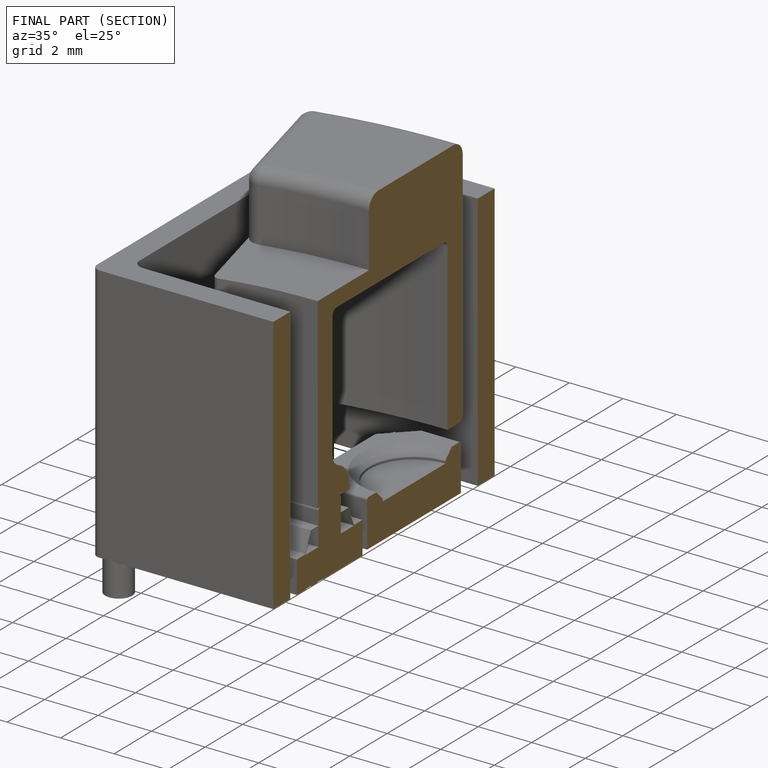
[diagram: finished part — half-section view (interior)]
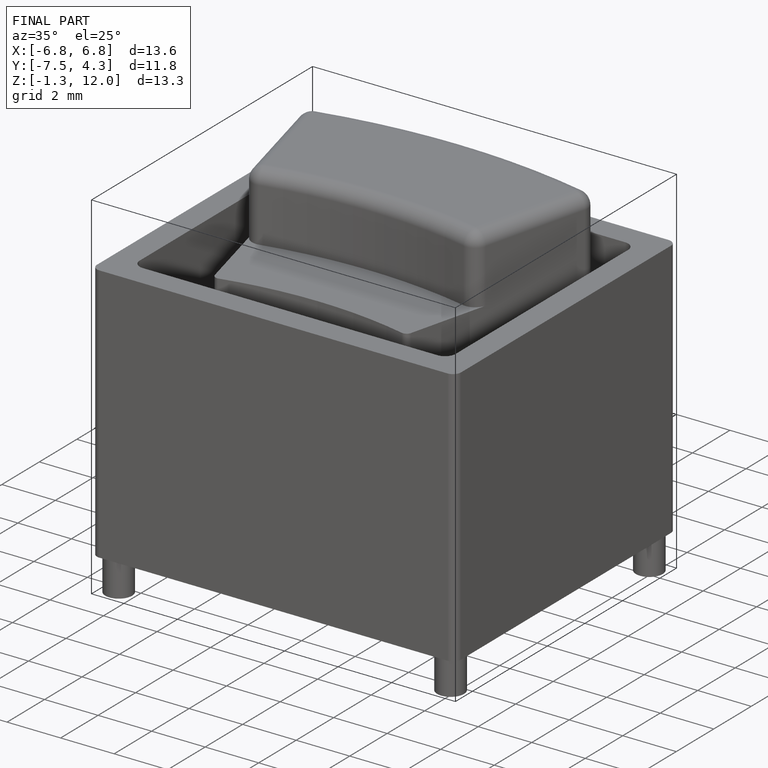
[diagram: finished part — iso view with bounding-box wireframe]
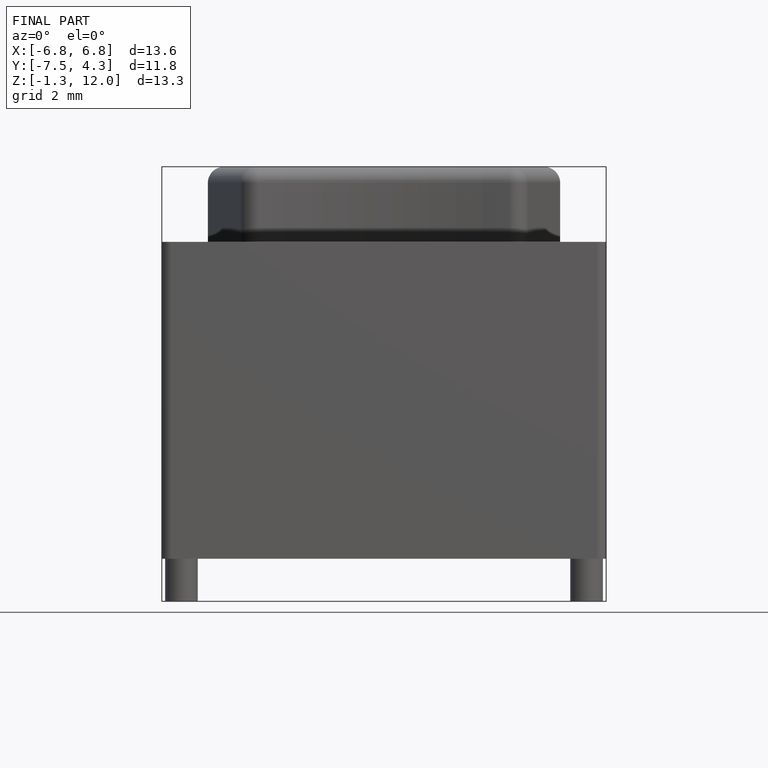
[diagram: finished part — front view with bounding-box wireframe]
